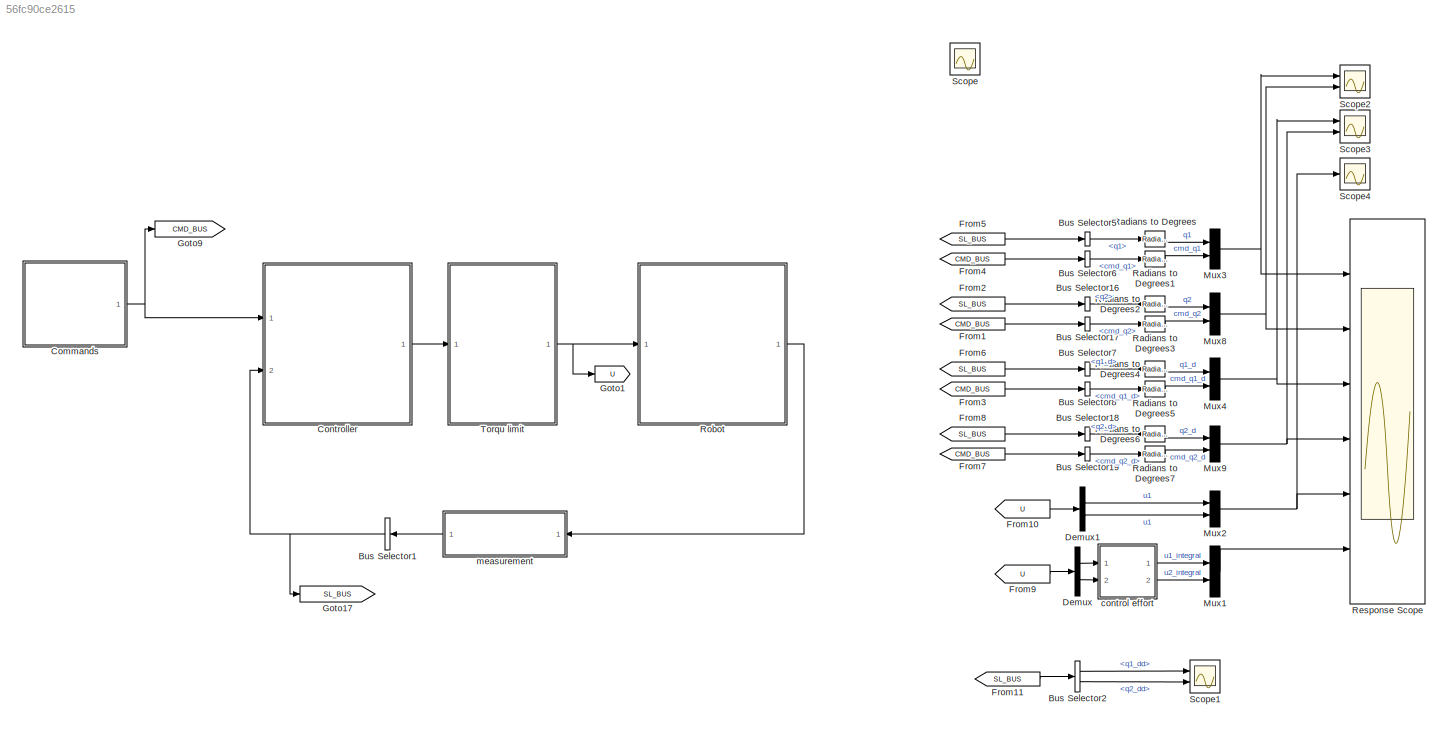
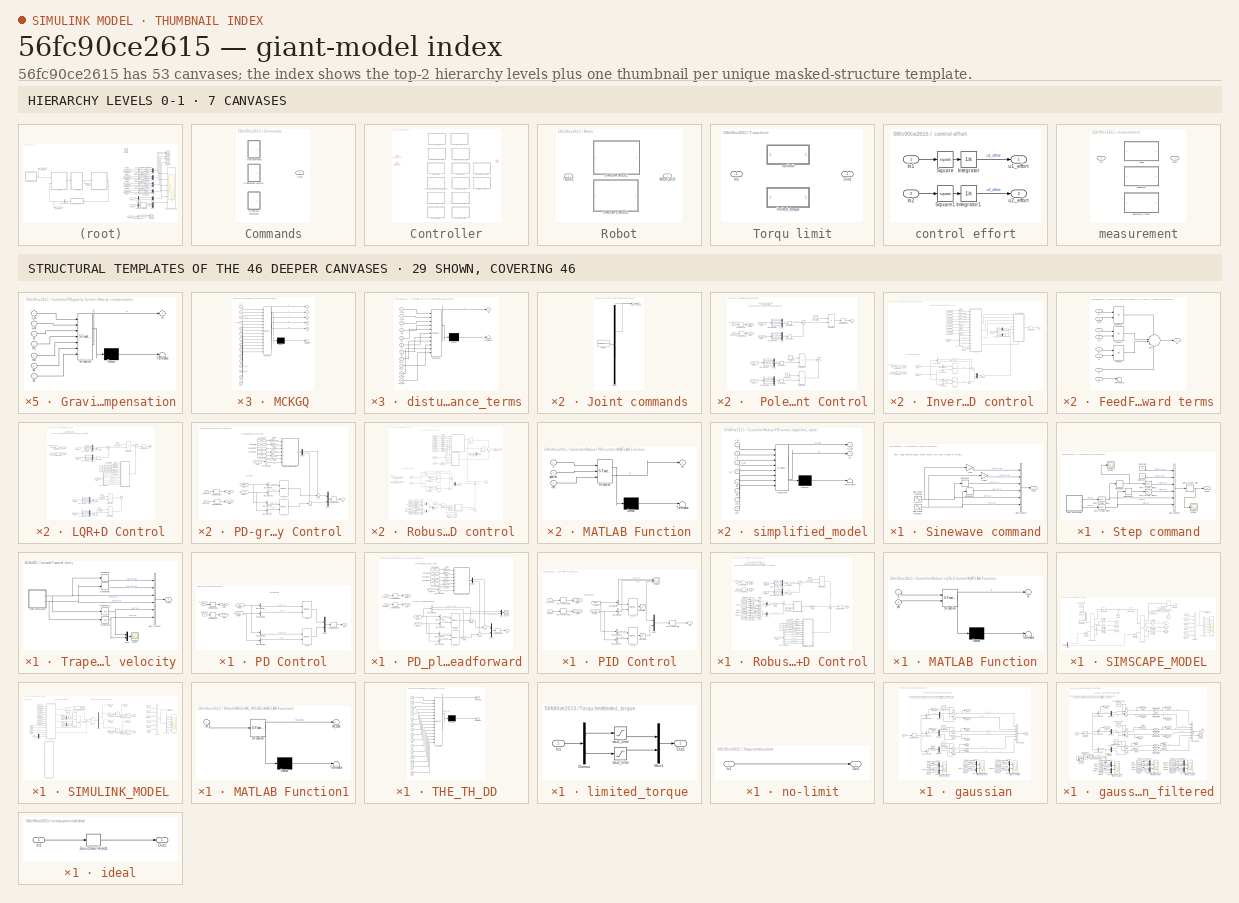
[diagram: thumbnail index - top-2 hierarchy levels (7 canvases) + 29 structural-template representatives of the remaining 46 canvases]
MODEL slx_56fc90ce2615
KIND model
CONFIG AbsTol = auto
CONFIG EnableMultiTasking = on
CONFIG FixedStep = auto
CONFIG MaxStep = 0.01
CONFIG MinStep = auto
CONFIG RelTol = 1e-5
CONFIG SampleTimeConstraint = Unconstrained
CONFIG SolverName = VariableStepAuto
CONFIG StartTime = 0.0
CONFIG StopTime = 20
BLOCK [BusSelector] Bus Selector1
  NameLocation = top
  OutputAsBus = on
  OutputSignals = q1_dd,q2_dd,q1_d,q2_d,q1,q2
  Ports = [1, 1]
BLOCK [BusSelector] Bus Selector16
  OutputSignals = q2
  Ports = [1, 1]
BLOCK [BusSelector] Bus Selector17
  OutputSignals = cmd_q2
  Ports = [1, 1]
BLOCK [BusSelector] Bus Selector18
  OutputSignals = q2_d
  Ports = [1, 1]
BLOCK [BusSelector] Bus Selector19
  OutputSignals = cmd_q2_d
  Ports = [1, 1]
BLOCK [BusSelector] Bus Selector2
  OutputSignals = q1_dd,q2_dd
  Ports = [1, 2]
BLOCK [BusSelector] Bus Selector5
  OutputSignals = q1
  Ports = [1, 1]
BLOCK [BusSelector] Bus Selector6
  OutputSignals = cmd_q1
  Ports = [1, 1]
BLOCK [BusSelector] Bus Selector7
  OutputSignals = q1_d
  Ports = [1, 1]
BLOCK [BusSelector] Bus Selector8
  OutputSignals = cmd_q1_d
  Ports = [1, 1]
BLOCK [SubSystem] Commands
  LabelModeActiveChoice = sinwave
  Ports = [0, 1]
  RequestExecContextInheritance = off
  Variant = on
  VariantControlMode = label
BLOCK [Outport] Commands/CMD
BLOCK [SubSystem] Commands/Sinewave command
  Ports = [0, 1]
  RequestExecContextInheritance = off
  VariantControl = sinwave
BLOCK [BusCreator] Commands/Sinewave command/Bus Creator
  DisplayOption = bar
  InheritFromInputs = on
  Inputs = 6
  Ports = [6, 1]
BLOCK [Outport] Commands/Sinewave command/CMD
BLOCK [Derivative] Commands/Sinewave command/Derivative
BLOCK [Derivative] Commands/Sinewave command/Derivative1
BLOCK [Gain] Commands/Sinewave command/Gain
  Gain = -1
BLOCK [Gain] Commands/Sinewave command/Gain1
  Gain = -1
BLOCK [Sin] Commands/Sinewave command/Sine Wave Function
  Ports = [0, 1]
  SampleTime = 0
BLOCK [Sin] Commands/Sinewave command/Sine Wave Function1
  Amplitude = 0.5
  Ports = [0, 1]
  SampleTime = 0
BLOCK [SubSystem] Commands/Step command
  Ports = [0, 1]
  RequestExecContextInheritance = off
  VariantControl = step
BLOCK [BusCreator] Commands/Step command/Bus Creator
  DisplayOption = bar
  InheritFromInputs = on
  Inputs = 6
  Ports = [6, 1]
BLOCK [Outport] Commands/Step command/CMD
BLOCK [Constant] Commands/Step command/Constant
  Value = 0
BLOCK [Constant] Commands/Step command/Constant1
  Value = 0
BLOCK [Derivative] Commands/Step command/Derivative
BLOCK [Derivative] Commands/Step command/Derivative1
BLOCK [Reference] Commands/Step command/First-Order Filter  REF=spsFirstOrderFilterLib/First-Order
Filter
  Ports = [1, 1]
  SourceBlock = spsFirstOrderFilterLib/First-Order\nFilter
  SourceProductBaseCode = PS
  SourceType = First-Order Filter
BLOCK [Reference] Commands/Step command/First-Order Filter1  REF=spsFirstOrderFilterLib/First-Order
Filter
  Ports = [1, 1]
  SourceBlock = spsFirstOrderFilterLib/First-Order\nFilter
  SourceProductBaseCode = PS
  SourceType = First-Order Filter
BLOCK [Reference] Commands/Step command/First-Order Filter2  REF=spsFirstOrderFilterLib/First-Order
Filter
  Ports = [1, 1]
  SourceBlock = spsFirstOrderFilterLib/First-Order\nFilter
  SourceProductBaseCode = PS
  SourceType = First-Order Filter
BLOCK [Reference] Commands/Step command/First-Order Filter3  REF=spsFirstOrderFilterLib/First-Order
Filter
  Ports = [1, 1]
  SourceBlock = spsFirstOrderFilterLib/First-Order\nFilter
  SourceProductBaseCode = PS
  SourceType = First-Order Filter
BLOCK [SubSystem] Commands/Step command/Joint commands
  ClipboardFcn = sigbuilder_block('clipboard');
  CloseFcn = sigbuilder_block('close');
  ContinueFcn = sigbuilder_block('continue');
  CopyFcn = sigbuilder_block('copy');
  DeleteFcn = sigbuilder_block('delete');
  LoadFcn = sigbuilder_block('load');
  MaskHideContents = on
  ModelCloseFcn = sigbuilder_block('modelClose');
  NameChangeFcn = sigbuilder_block('namechange');
  OpenFcn = sigbuilder_block('open',[0 36 1152 560.4 ]);
  PauseFcn = sigbuilder_block('pause');
  Ports = [0, 2]
  PreSaveFcn = sigbuilder_block('preSave');
  RequestExecContextInheritance = off
  StartFcn = sigbuilder_block('start');
  StopFcn = sigbuilder_block('stop');
  Tag = STV Subsys
BLOCK [Demux] Commands/Step command/Joint commands/Demux
  DisplayOption = none
  Outputs = 2
  Ports = [1, 2]
  Tag = STV Demux
BLOCK [FromWorkspace] Commands/Step command/Joint commands/FromWs
  Tag = STV FromWs
  VariableName = tuvar
BLOCK [Outport] Commands/Step command/Joint commands/cmd_q1
  Tag = STV Outport
BLOCK [Outport] Commands/Step command/Joint commands/cmd_q2
  Port = 2
  Tag = STV Outport
BLOCK [Scope] Commands/Step command/Scope
  Floating = off
  NumInputPorts = 1
  Ports = [1]
  ScopeSpecificationString = Simulink.scopes.TimeScopeBlockCfg('CurrentConfiguration', extmgr.ConfigurationSet(extmgr.Configuration('Core','General UI',true),extmgr.Configuration('Core','Source UI',true),extmgr.Configuration('Sources','WiredSimulink',true,'DataLoggingVariableName','ScopeData4'),extmgr.Configuration('Visuals','Time Domain',true,'SerializedDisplays',{struct('MinYLimReal','-0.19635','MaxYLimReal','1.76715','YLab...<+1367ch>
BLOCK [Scope] Commands/Step command/Scope1
  Floating = off
  NumInputPorts = 1
  Ports = [1]
  ScopeSpecificationString = Simulink.scopes.TimeScopeBlockCfg('CurrentConfiguration', extmgr.ConfigurationSet(extmgr.Configuration('Core','General UI',true),extmgr.Configuration('Core','Source UI',true),extmgr.Configuration('Sources','WiredSimulink',true,'DataLoggingVariableName','ScopeData2'),extmgr.Configuration('Visuals','Time Domain',true,'SerializedDisplays',{struct('MinYLimReal','0.02523','MaxYLimReal','0.16903','YLabe...<+1587ch>
BLOCK [ZeroOrderHold] Commands/Step command/Zero-Order Hold
  SampleTime = 0.001
BLOCK [SubSystem] Commands/Trapezoidal velocity
  Ports = [0, 1]
  RequestExecContextInheritance = off
  VariantControl = Trapezoidal velocity
BLOCK [BusCreator] Commands/Trapezoidal velocity/Bus Creator
  DisplayOption = bar
  InheritFromInputs = on
  Inputs = 6
  Ports = [6, 1]
BLOCK [Outport] Commands/Trapezoidal velocity/CMD
BLOCK [Derivative] Commands/Trapezoidal velocity/Derivative
BLOCK [Derivative] Commands/Trapezoidal velocity/Derivative2
BLOCK [Integrator] Commands/Trapezoidal velocity/Integrator
  Ports = [1, 1]
BLOCK [Integrator] Commands/Trapezoidal velocity/Integrator1
  Ports = [1, 1]
BLOCK [SubSystem] Commands/Trapezoidal velocity/Joint commands
  ClipboardFcn = sigbuilder_block('clipboard');
  CloseFcn = sigbuilder_block('close');
  ContinueFcn = sigbuilder_block('continue');
  CopyFcn = sigbuilder_block('copy');
  DeleteFcn = sigbuilder_block('delete');
  LoadFcn = sigbuilder_block('load');
  MaskHideContents = on
  ModelCloseFcn = sigbuilder_block('modelClose');
  NameChangeFcn = sigbuilder_block('namechange');
  OpenFcn = sigbuilder_block('open',[4.8 36 1142.4 525.6 ]);
  PauseFcn = sigbuilder_block('pause');
  Ports = [0, 2]
  PreSaveFcn = sigbuilder_block('preSave');
  RequestExecContextInheritance = off
  StartFcn = sigbuilder_block('start');
  StopFcn = sigbuilder_block('stop');
  Tag = STV Subsys
BLOCK [Demux] Commands/Trapezoidal velocity/Joint commands/Demux
  DisplayOption = none
  Outputs = 2
  Ports = [1, 2]
  Tag = STV Demux
BLOCK [FromWorkspace] Commands/Trapezoidal velocity/Joint commands/FromWs
  Tag = STV FromWs
  VariableName = tuvar
BLOCK [Outport] Commands/Trapezoidal velocity/Joint commands/cmd_q1_dot
  Tag = STV Outport
BLOCK [Outport] Commands/Trapezoidal velocity/Joint commands/cmd_q2_dot
  Port = 2
  Tag = STV Outport
BLOCK [Mux] Commands/Trapezoidal velocity/Mux
  DisplayOption = bar
  Inputs = 2
  Ports = [2, 1]
BLOCK [Scope] Commands/Trapezoidal velocity/Scope
  Floating = off
  NumInputPorts = 1
  Ports = [1]
  ScopeSpecificationString = Simulink.scopes.TimeScopeBlockCfg('CurrentConfiguration', extmgr.ConfigurationSet(extmgr.Configuration('Core','General UI',true),extmgr.Configuration('Core','Source UI',true),extmgr.Configuration('Sources','WiredSimulink',true,'DataLoggingVariableName','ScopeData10'),extmgr.Configuration('Visuals','Time Domain',true,'SerializedDisplays',{struct('MinYLimReal','-0.2','MaxYLimReal','1.8','YLabelReal'...<+1351ch>
BLOCK [SubSystem] Controller
  LabelModeActiveChoice = robust_PID_control
  Ports = [2, 1]
  PropagateVariantConditions = on
  RequestExecContextInheritance = off
  Variant = on
  VariantControlMode = label
BLOCK [SubSystem] Controller/ Pole Placement Control
  Ports = [2, 1]
  RequestExecContextInheritance = off
  VariantControl = PolePlacement_control
BLOCK [BusSelector] Controller/ Pole Placement Control/Bus Selector1
  Commented = on
  OutputSignals = q1,q2,q1_d,q2_d
  Ports = [1, 4]
BLOCK [BusSelector] Controller/ Pole Placement Control/Bus Selector2
  Commented = on
  OutputSignals = cmd_q1,cmd_q2,cmd_q1_d,cmd_q2_d
  Ports = [1, 4]
BLOCK [BusSelector] Controller/ Pole Placement Control/Bus Selector4
  OutputSignals = q1,q2,q1_d,q2_d
  Ports = [1, 4]
BLOCK [BusSelector] Controller/ Pole Placement Control/Bus Selector5
  OutputSignals = cmd_q1,cmd_q2,cmd_q1_d,cmd_q2_d
  Ports = [1, 4]
BLOCK [Constant] Controller/ Pole Placement Control/Constant1
  Value = Kpp
  VectorParams1D = off
BLOCK [Constant] Controller/ Pole Placement Control/Constant2
  Commented = on
  Value = Kpp
  VectorParams1D = off
BLOCK [Constant] Controller/ Pole Placement Control/Constant3
  Commented = on
  Value = Kr'
  VectorParams1D = off
BLOCK [From] Controller/ Pole Placement Control/From1
  Commented = on
  GotoTag = PLANT
BLOCK [From] Controller/ Pole Placement Control/From2
  Commented = on
  GotoTag = CMD
BLOCK [From] Controller/ Pole Placement Control/From3
  GotoTag = PLANT
BLOCK [From] Controller/ Pole Placement Control/From4
  GotoTag = CMD
BLOCK [Goto] Controller/ Pole Placement Control/Goto
  GotoTag = PLANT
BLOCK [Goto] Controller/ Pole Placement Control/Goto1
  GotoTag = CMD
BLOCK [Product] Controller/ Pole Placement Control/Matrix Multiply
  Multiplication = Matrix(*)
  Ports = [2, 1]
BLOCK [Product] Controller/ Pole Placement Control/Matrix Multiply1
  Commented = on
  Multiplication = Matrix(*)
  Ports = [2, 1]
BLOCK [Product] Controller/ Pole Placement Control/Matrix Multiply2
  Commented = on
  Multiplication = Matrix(*)
  Ports = [2, 1]
BLOCK [Mux] Controller/ Pole Placement Control/Mux
  DisplayOption = bar
  Ports = [4, 1]
BLOCK [Mux] Controller/ Pole Placement Control/Mux1
  DisplayOption = bar
  Ports = [4, 1]
BLOCK [Mux] Controller/ Pole Placement Control/Mux2
  Commented = on
  DisplayOption = bar
  Ports = [4, 1]
BLOCK [Mux] Controller/ Pole Placement Control/Mux3
  Commented = on
  DisplayOption = bar
  Ports = [4, 1]
BLOCK [Reshape] Controller/ Pole Placement Control/Reshape1
  OutputDimensionality = Column vector (2-D)
  Ports = [1, 1]
BLOCK [Reshape] Controller/ Pole Placement Control/Reshape2
  OutputDimensionality = Column vector (2-D)
  Ports = [1, 1]
BLOCK [Reshape] Controller/ Pole Placement Control/Reshape3
  Commented = on
  OutputDimensionality = Column vector (2-D)
  Ports = [1, 1]
BLOCK [Reshape] Controller/ Pole Placement Control/Reshape4
  Commented = on
  OutputDimensionality = Column vector (2-D)
  Ports = [1, 1]
BLOCK [Sum] Controller/ Pole Placement Control/Sum1
  Commented = on
  Inputs = |+-
  Ports = [2, 1]
BLOCK [Sum] Controller/ Pole Placement Control/Sum3
  Inputs = |+-
  Ports = [2, 1]
BLOCK [ZeroOrderHold] Controller/ Pole Placement Control/Zero-Order Hold1
  SampleTime = 0.001
BLOCK [ZeroOrderHold] Controller/ Pole Placement Control/Zero-Order Hold2
  SampleTime = 0.001
BLOCK [ZeroOrderHold] Controller/ Pole Placement Control/Zero-Order Hold3
  SampleTime = 0.001
BLOCK [Inport] Controller/ Pole Placement Control/plant_bus
  Port = 2
BLOCK [Inport] Controller/ Pole Placement Control/q_cmd_bus
BLOCK [Outport] Controller/ Pole Placement Control/tau
BLOCK [SubSystem] Controller/Inverse Dynamics PID control 
  Ports = [2, 1]
  RequestExecContextInheritance = off
  VariantControl = Inverse_dynamics_PID_control
BLOCK [BusSelector] Controller/Inverse Dynamics PID control /Bus Selector
  OutputSignals = cmd_q1
  Ports = [1, 1]
BLOCK [BusSelector] Controller/Inverse Dynamics PID control /Bus Selector1
  OutputSignals = q1
  Ports = [1, 1]
BLOCK [BusSelector] Controller/Inverse Dynamics PID control /Bus Selector2
  OutputSignals = q2
  Ports = [1, 1]
BLOCK [BusSelector] Controller/Inverse Dynamics PID control /Bus Selector3
  OutputSignals = cmd_q2
  Ports = [1, 1]
BLOCK [BusSelector] Controller/Inverse Dynamics PID control /Bus Selector4
  OutputSignals = q1,q2,q1_d,q2_d
  Ports = [1, 4]
BLOCK [BusSelector] Controller/Inverse Dynamics PID control /Bus Selector5
  OutputSignals = q1,q2,q1_d,q2_d
  Ports = [1, 4]
BLOCK [BusSelector] Controller/Inverse Dynamics PID control /Bus Selector7
  OutputSignals = cmd_q1_dd,cmd_q2_dd
  Ports = [1, 2]
BLOCK [Reference] Controller/Inverse Dynamics PID control /C_q1  REF=pid_lib/PID Controller (2DOF)
  Ports = [2, 1]
  SourceBlock = pid_lib/PID Controller (2DOF)
  SourceProductBaseCode = SL
  SourceType = PID 2dof
BLOCK [Reference] Controller/Inverse Dynamics PID control /C_q2  REF=pid_lib/PID Controller (2DOF)
  Ports = [2, 1]
  SourceBlock = pid_lib/PID Controller (2DOF)
  SourceProductBaseCode = SL
  SourceType = PID 2dof
BLOCK [Constant] Controller/Inverse Dynamics PID control /Constant
  Value = 0
BLOCK [Constant] Controller/Inverse Dynamics PID control /Constant15
  Value = b2
BLOCK [Constant] Controller/Inverse Dynamics PID control /Constant16
  Value = m1
BLOCK [Constant] Controller/Inverse Dynamics PID control /Constant17
  Value = g
BLOCK [Constant] Controller/Inverse Dynamics PID control /Constant18
  Value = m2
BLOCK [Constant] Controller/Inverse Dynamics PID control /Constant19
  Value = L1x
BLOCK [Constant] Controller/Inverse Dynamics PID control /Constant2
  Value = L2x
BLOCK [Constant] Controller/Inverse Dynamics PID control /Constant20
  Value = b1
BLOCK [Constant] Controller/Inverse Dynamics PID control /Constant6
  Value = L2y
BLOCK [Constant] Controller/Inverse Dynamics PID control /Constant7
  Value = L1y
BLOCK [SubSystem] Controller/Inverse Dynamics PID control /FeedForward terms
  PortSchema = {"entries":[{"content":{"sides":[{"content":{"connectorIds":["In1","In2","In3","In4","In5","In6"]},"type":"ConnectorPlacement.EquallySpacedRectSide","uuid":"236e7a2f-027c-4887-b3e9-bc0e11a59ec6"},{"content":{"connectorIds":["Out1"],"side":"RIGHT"},"type":"ConnectorPlacement.EquallySpacedRectSide","uuid":"0b727d96-7650-4ea0-95ac-5fb1bad7af10"},{"content":{"connectorIds":["In7"],"side":"TOP"},"type"...<+424ch>
  Ports = [8, 1]
  RequestExecContextInheritance = off
BLOCK [Inport] Controller/Inverse Dynamics PID control /FeedForward terms/C
  NameLocation = top
BLOCK [Inport] Controller/Inverse Dynamics PID control /FeedForward terms/F
  Port = 8
BLOCK [Inport] Controller/Inverse Dynamics PID control /FeedForward terms/G
  Port = 3
BLOCK [Inport] Controller/Inverse Dynamics PID control /FeedForward terms/K
  Port = 2
BLOCK [Inport] Controller/Inverse Dynamics PID control /FeedForward terms/M
  Port = 7
BLOCK [Product] Controller/Inverse Dynamics PID control /FeedForward terms/Product
  Multiplication = Matrix(*)
  Ports = [2, 1]
BLOCK [Product] Controller/Inverse Dynamics PID control /FeedForward terms/Product2
  Multiplication = Matrix(*)
  Ports = [2, 1]
BLOCK [Product] Controller/Inverse Dynamics PID control /FeedForward terms/Product3
  Multiplication = Matrix(*)
  Ports = [2, 1]
BLOCK [Outport] Controller/Inverse Dynamics PID control /FeedForward terms/Q
  NameLocation = top
BLOCK [Sum] Controller/Inverse Dynamics PID control /FeedForward terms/Sum
  Inputs = +|+|+|+
  Ports = [4, 1]
BLOCK [Terminator] Controller/Inverse Dynamics PID control /FeedForward terms/Terminator
BLOCK [Inport] Controller/Inverse Dynamics PID control /FeedForward terms/q
  Port = 4
BLOCK [Inport] Controller/Inverse Dynamics PID control /FeedForward terms/q_d
  Port = 5
BLOCK [Inport] Controller/Inverse Dynamics PID control /FeedForward terms/q_dd
  Port = 6
BLOCK [From] Controller/Inverse Dynamics PID control /From1
  GotoTag = PLANT
BLOCK [From] Controller/Inverse Dynamics PID control /From2
  GotoTag = CMD
BLOCK [From] Controller/Inverse Dynamics PID control /From3
  GotoTag = PLANT
BLOCK [From] Controller/Inverse Dynamics PID control /From5
  GotoTag = PLANT
BLOCK [Gain] Controller/Inverse Dynamics PID control /Gain1
  Gain = length_dev
BLOCK [Gain] Controller/Inverse Dynamics PID control /Gain10
  Gain = vis_dev
BLOCK [Gain] Controller/Inverse Dynamics PID control /Gain11
  Gain = vis_dev
BLOCK [Gain] Controller/Inverse Dynamics PID control /Gain12
  Gain = m_dev
BLOCK [Gain] Controller/Inverse Dynamics PID control /Gain14
  Gain = m_dev
BLOCK [Gain] Controller/Inverse Dynamics PID control /Gain2
  Gain = length_dev
BLOCK [Gain] Controller/Inverse Dynamics PID control /Gain3
  Gain = length_dev
BLOCK [Gain] Controller/Inverse Dynamics PID control /Gain9
  Gain = length_dev
BLOCK [Goto] Controller/Inverse Dynamics PID control /Goto
  GotoTag = PLANT
BLOCK [Goto] Controller/Inverse Dynamics PID control /Goto1
  GotoTag = CMD
BLOCK [SubSystem] Controller/Inverse Dynamics PID control /MCKGQ
  ErrorFcn = Stateflow.Translate.translate
  PermitHierarchicalResolution = ExplicitOnly
  Ports = [15, 5]
  RequestExecContextInheritance = off
  SFBlockType = MATLAB Function
  TreatAsAtomicUnit = on
BLOCK [Demux] Controller/Inverse Dynamics PID control /MCKGQ/ Demux 
  Outputs = 1
  Ports = [1, 1]
BLOCK [S-Function] Controller/Inverse Dynamics PID control /MCKGQ/ SFunction 
  EnableBusSupport = on
  FunctionName = sf_sfun
  PortCounts = [15 6]
  Ports = [15, 6]
  SFcnIsStateOwnerBlock = off
  SFunctionDeploymentMode = off
  Tag = Stateflow S-Function 9
BLOCK [Terminator] Controller/Inverse Dynamics PID control /MCKGQ/ Terminator 
BLOCK [Outport] Controller/Inverse Dynamics PID control /MCKGQ/C
  Port = 2
BLOCK [Outport] Controller/Inverse Dynamics PID control /MCKGQ/G
  Port = 4
BLOCK [Outport] Controller/Inverse Dynamics PID control /MCKGQ/K
  Port = 3
BLOCK [Inport] Controller/Inverse Dynamics PID control /MCKGQ/L_1x
BLOCK [Inport] Controller/Inverse Dynamics PID control /MCKGQ/L_1y
  Port = 2
BLOCK [Inport] Controller/Inverse Dynamics PID control /MCKGQ/L_2x
  Port = 3
BLOCK [Inport] Controller/Inverse Dynamics PID control /MCKGQ/L_2y
  Port = 4
BLOCK [Outport] Controller/Inverse Dynamics PID control /MCKGQ/M
BLOCK [Outport] Controller/Inverse Dynamics PID control /MCKGQ/Q
  Port = 5
BLOCK [Inport] Controller/Inverse Dynamics PID control /MCKGQ/b1
  Port = 5
BLOCK [Inport] Controller/Inverse Dynamics PID control /MCKGQ/b2
  Port = 6
BLOCK [Inport] Controller/Inverse Dynamics PID control /MCKGQ/g
  Port = 7
BLOCK [Inport] Controller/Inverse Dynamics PID control /MCKGQ/m1
  Port = 8
BLOCK [Inport] Controller/Inverse Dynamics PID control /MCKGQ/m2
  Port = 9
BLOCK [Inport] Controller/Inverse Dynamics PID control /MCKGQ/q1
  Port = 10
BLOCK [Inport] Controller/Inverse Dynamics PID control /MCKGQ/q1_D
  Port = 12
BLOCK [Inport] Controller/Inverse Dynamics PID control /MCKGQ/q2
  Port = 11
BLOCK [Inport] Controller/Inverse Dynamics PID control /MCKGQ/q2_D
  Port = 13
BLOCK [Inport] Controller/Inverse Dynamics PID control /MCKGQ/tau1
  Port = 14
BLOCK [Inport] Controller/Inverse Dynamics PID control /MCKGQ/tau2
  Port = 15
BLOCK [Mux] Controller/Inverse Dynamics PID control /Mux2
  DisplayOption = bar
  Inputs = 2
  Ports = [2, 1]
BLOCK [Mux] Controller/Inverse Dynamics PID control /Mux5
  DisplayOption = bar
  Inputs = 2
  Ports = [2, 1]
BLOCK [Mux] Controller/Inverse Dynamics PID control /Mux7
  DisplayOption = bar
  Inputs = 2
  Ports = [2, 1]
BLOCK [Reshape] Controller/Inverse Dynamics PID control /Reshape1
  OutputDimensionality = Column vector (2-D)
  Ports = [1, 1]
BLOCK [Reshape] Controller/Inverse Dynamics PID control /Reshape2
  OutputDimensionality = Column vector (2-D)
  Ports = [1, 1]
BLOCK [Reshape] Controller/Inverse Dynamics PID control /Reshape5
  OutputDimensionality = Column vector (2-D)
  Ports = [1, 1]
BLOCK [Sum] Controller/Inverse Dynamics PID control /Sum
  Inputs = ++|
  Ports = [2, 1]
BLOCK [Sum] Controller/Inverse Dynamics PID control /Sum1
  Inputs = ++|
  Ports = [2, 1]
BLOCK [ZeroOrderHold] Controller/Inverse Dynamics PID control /Zero-Order Hold1
  SampleTime = 0.001
BLOCK [ZeroOrderHold] Controller/Inverse Dynamics PID control /Zero-Order Hold2
  SampleTime = 0.001
BLOCK [ZeroOrderHold] Controller/Inverse Dynamics PID control /Zero-Order Hold3
  SampleTime = 0.001
BLOCK [Inport] Controller/Inverse Dynamics PID control /plant_bus
  Port = 2
BLOCK [Inport] Controller/Inverse Dynamics PID control /q_cmd_bus
BLOCK [Outport] Controller/Inverse Dynamics PID control /tau
BLOCK [SubSystem] Controller/Inverse Dynamics control 
  Ports = [2, 1]
  RequestExecContextInheritance = off
  VariantControl = Inverse_dynamics_control
BLOCK [BusSelector] Controller/Inverse Dynamics control /Bus Selector
  OutputSignals = cmd_q1
  Ports = [1, 1]
BLOCK [BusSelector] Controller/Inverse Dynamics control /Bus Selector1
  OutputSignals = q1
  Ports = [1, 1]
BLOCK [BusSelector] Controller/Inverse Dynamics control /Bus Selector2
  OutputSignals = q2
  Ports = [1, 1]
BLOCK [BusSelector] Controller/Inverse Dynamics control /Bus Selector3
  OutputSignals = cmd_q2
  Ports = [1, 1]
BLOCK [BusSelector] Controller/Inverse Dynamics control /Bus Selector4
  OutputSignals = q1,q2,q1_d,q2_d
  Ports = [1, 4]
BLOCK [BusSelector] Controller/Inverse Dynamics control /Bus Selector5
  OutputSignals = q1,q2,q1_d,q2_d
  Ports = [1, 4]
BLOCK [BusSelector] Controller/Inverse Dynamics control /Bus Selector7
  OutputSignals = cmd_q1_dd,cmd_q2_dd
  Ports = [1, 2]
BLOCK [Reference] Controller/Inverse Dynamics control /C_q1  REF=pid_lib/PID Controller (2DOF)
  Ports = [2, 1]
  SourceBlock = pid_lib/PID Controller (2DOF)
  SourceProductBaseCode = SL
  SourceType = PID 2dof
BLOCK [Reference] Controller/Inverse Dynamics control /C_q2  REF=pid_lib/PID Controller (2DOF)
  Ports = [2, 1]
  SourceBlock = pid_lib/PID Controller (2DOF)
  SourceProductBaseCode = SL
  SourceType = PID 2dof
BLOCK [Constant] Controller/Inverse Dynamics control /Constant
  Value = 0
BLOCK [Constant] Controller/Inverse Dynamics control /Constant15
  Value = b2
BLOCK [Constant] Controller/Inverse Dynamics control /Constant16
  Value = m1
BLOCK [Constant] Controller/Inverse Dynamics control /Constant17
  Value = g
BLOCK [Constant] Controller/Inverse Dynamics control /Constant18
  Value = m2
BLOCK [Constant] Controller/Inverse Dynamics control /Constant19
  Value = L1x
BLOCK [Constant] Controller/Inverse Dynamics control /Constant2
  Value = L2x
BLOCK [Constant] Controller/Inverse Dynamics control /Constant20
  Value = b1
BLOCK [Constant] Controller/Inverse Dynamics control /Constant6
  Value = L2y
BLOCK [Constant] Controller/Inverse Dynamics control /Constant7
  Value = L1y
BLOCK [SubSystem] Controller/Inverse Dynamics control /FeedForward terms
  PortSchema = {"entries":[{"content":{"sides":[{"content":{"connectorIds":["In1","In2","In3","In4","In5","In6"]},"type":"ConnectorPlacement.EquallySpacedRectSide","uuid":"236e7a2f-027c-4887-b3e9-bc0e11a59ec6"},{"content":{"connectorIds":["Out1"],"side":"RIGHT"},"type":"ConnectorPlacement.EquallySpacedRectSide","uuid":"0b727d96-7650-4ea0-95ac-5fb1bad7af10"},{"content":{"connectorIds":["In7"],"side":"TOP"},"type"...<+424ch>
  Ports = [8, 1]
  RequestExecContextInheritance = off
BLOCK [Inport] Controller/Inverse Dynamics control /FeedForward terms/C
  NameLocation = top
BLOCK [Inport] Controller/Inverse Dynamics control /FeedForward terms/F
  Port = 8
BLOCK [Inport] Controller/Inverse Dynamics control /FeedForward terms/G
  Port = 3
BLOCK [Inport] Controller/Inverse Dynamics control /FeedForward terms/K
  Port = 2
BLOCK [Inport] Controller/Inverse Dynamics control /FeedForward terms/M
  Port = 7
BLOCK [Product] Controller/Inverse Dynamics control /FeedForward terms/Product
  Multiplication = Matrix(*)
  Ports = [2, 1]
BLOCK [Product] Controller/Inverse Dynamics control /FeedForward terms/Product2
  Multiplication = Matrix(*)
  Ports = [2, 1]
BLOCK [Product] Controller/Inverse Dynamics control /FeedForward terms/Product3
  Multiplication = Matrix(*)
  Ports = [2, 1]
BLOCK [Outport] Controller/Inverse Dynamics control /FeedForward terms/Q
  NameLocation = top
BLOCK [Sum] Controller/Inverse Dynamics control /FeedForward terms/Sum
  Inputs = +|+|+|+
  Ports = [4, 1]
BLOCK [Terminator] Controller/Inverse Dynamics control /FeedForward terms/Terminator
BLOCK [Inport] Controller/Inverse Dynamics control /FeedForward terms/q
  Port = 4
BLOCK [Inport] Controller/Inverse Dynamics control /FeedForward terms/q_d
  Port = 5
BLOCK [Inport] Controller/Inverse Dynamics control /FeedForward terms/q_dd
  Port = 6
BLOCK [From] Controller/Inverse Dynamics control /From1
  GotoTag = PLANT
BLOCK [From] Controller/Inverse Dynamics control /From2
  GotoTag = CMD
BLOCK [From] Controller/Inverse Dynamics control /From3
  GotoTag = PLANT
BLOCK [From] Controller/Inverse Dynamics control /From5
  GotoTag = PLANT
BLOCK [Gain] Controller/Inverse Dynamics control /Gain1
  Gain = length_dev
BLOCK [Gain] Controller/Inverse Dynamics control /Gain10
  Gain = vis_dev
BLOCK [Gain] Controller/Inverse Dynamics control /Gain11
  Gain = vis_dev
BLOCK [Gain] Controller/Inverse Dynamics control /Gain12
  Gain = m_dev
BLOCK [Gain] Controller/Inverse Dynamics control /Gain14
  Gain = m_dev
BLOCK [Gain] Controller/Inverse Dynamics control /Gain2
  Gain = length_dev
BLOCK [Gain] Controller/Inverse Dynamics control /Gain3
  Gain = length_dev
BLOCK [Gain] Controller/Inverse Dynamics control /Gain9
  Gain = length_dev
BLOCK [Goto] Controller/Inverse Dynamics control /Goto
  GotoTag = PLANT
BLOCK [Goto] Controller/Inverse Dynamics control /Goto1
  GotoTag = CMD
BLOCK [SubSystem] Controller/Inverse Dynamics control /MCKGQ
  ErrorFcn = Stateflow.Translate.translate
  PermitHierarchicalResolution = ExplicitOnly
  Ports = [15, 5]
  RequestExecContextInheritance = off
  SFBlockType = MATLAB Function
  TreatAsAtomicUnit = on
BLOCK [Demux] Controller/Inverse Dynamics control /MCKGQ/ Demux 
  Outputs = 1
  Ports = [1, 1]
BLOCK [S-Function] Controller/Inverse Dynamics control /MCKGQ/ SFunction 
  EnableBusSupport = on
  FunctionName = sf_sfun
  PortCounts = [15 6]
  Ports = [15, 6]
  SFcnIsStateOwnerBlock = off
  SFunctionDeploymentMode = off
  Tag = Stateflow S-Function 5
BLOCK [Terminator] Controller/Inverse Dynamics control /MCKGQ/ Terminator 
BLOCK [Outport] Controller/Inverse Dynamics control /MCKGQ/C
  Port = 2
BLOCK [Outport] Controller/Inverse Dynamics control /MCKGQ/G
  Port = 4
BLOCK [Outport] Controller/Inverse Dynamics control /MCKGQ/K
  Port = 3
BLOCK [Inport] Controller/Inverse Dynamics control /MCKGQ/L_1x
BLOCK [Inport] Controller/Inverse Dynamics control /MCKGQ/L_1y
  Port = 2
BLOCK [Inport] Controller/Inverse Dynamics control /MCKGQ/L_2x
  Port = 3
BLOCK [Inport] Controller/Inverse Dynamics control /MCKGQ/L_2y
  Port = 4
BLOCK [Outport] Controller/Inverse Dynamics control /MCKGQ/M
BLOCK [Outport] Controller/Inverse Dynamics control /MCKGQ/Q
  Port = 5
BLOCK [Inport] Controller/Inverse Dynamics control /MCKGQ/b1
  Port = 5
BLOCK [Inport] Controller/Inverse Dynamics control /MCKGQ/b2
  Port = 6
BLOCK [Inport] Controller/Inverse Dynamics control /MCKGQ/g
  Port = 7
BLOCK [Inport] Controller/Inverse Dynamics control /MCKGQ/m1
  Port = 8
BLOCK [Inport] Controller/Inverse Dynamics control /MCKGQ/m2
  Port = 9
BLOCK [Inport] Controller/Inverse Dynamics control /MCKGQ/q1
  Port = 10
BLOCK [Inport] Controller/Inverse Dynamics control /MCKGQ/q1_D
  Port = 12
BLOCK [Inport] Controller/Inverse Dynamics control /MCKGQ/q2
  Port = 11
BLOCK [Inport] Controller/Inverse Dynamics control /MCKGQ/q2_D
  Port = 13
BLOCK [Inport] Controller/Inverse Dynamics control /MCKGQ/tau1
  Port = 14
BLOCK [Inport] Controller/Inverse Dynamics control /MCKGQ/tau2
  Port = 15
BLOCK [Mux] Controller/Inverse Dynamics control /Mux2
  DisplayOption = bar
  Inputs = 2
  Ports = [2, 1]
BLOCK [Mux] Controller/Inverse Dynamics control /Mux5
  DisplayOption = bar
  Inputs = 2
  Ports = [2, 1]
BLOCK [Mux] Controller/Inverse Dynamics control /Mux7
  DisplayOption = bar
  Inputs = 2
  Ports = [2, 1]
BLOCK [Reshape] Controller/Inverse Dynamics control /Reshape1
  OutputDimensionality = Column vector (2-D)
  Ports = [1, 1]
BLOCK [Reshape] Controller/Inverse Dynamics control /Reshape2
  OutputDimensionality = Column vector (2-D)
  Ports = [1, 1]
BLOCK [Reshape] Controller/Inverse Dynamics control /Reshape5
  OutputDimensionality = Column vector (2-D)
  Ports = [1, 1]
BLOCK [Sum] Controller/Inverse Dynamics control /Sum
  Inputs = ++|
  Ports = [2, 1]
BLOCK [Sum] Controller/Inverse Dynamics control /Sum1
  Inputs = ++|
  Ports = [2, 1]
BLOCK [ZeroOrderHold] Controller/Inverse Dynamics control /Zero-Order Hold1
  SampleTime = 0.001
BLOCK [ZeroOrderHold] Controller/Inverse Dynamics control /Zero-Order Hold2
  SampleTime = 0.001
BLOCK [ZeroOrderHold] Controller/Inverse Dynamics control /Zero-Order Hold3
  SampleTime = 0.001
BLOCK [Inport] Controller/Inverse Dynamics control /plant_bus
  Port = 2
BLOCK [Inport] Controller/Inverse Dynamics control /q_cmd_bus
BLOCK [Outport] Controller/Inverse Dynamics control /tau
BLOCK [SubSystem] Controller/LQR Control
  Ports = [2, 1]
  RequestExecContextInheritance = off
  VariantControl = LQR_control
BLOCK [BusSelector] Controller/LQR Control/Bus Selector1
  Commented = on
  OutputSignals = q1,q2,q1_d,q2_d
  Ports = [1, 4]
BLOCK [BusSelector] Controller/LQR Control/Bus Selector2
  Commented = on
  OutputSignals = cmd_q1,cmd_q2,cmd_q1_d,cmd_q2_d
  Ports = [1, 4]
BLOCK [BusSelector] Controller/LQR Control/Bus Selector4
  OutputSignals = q1,q2,q1_d,q2_d
  Ports = [1, 4]
BLOCK [BusSelector] Controller/LQR Control/Bus Selector5
  OutputSignals = cmd_q1,cmd_q2,cmd_q1_d,cmd_q2_d
  Ports = [1, 4]
BLOCK [Constant] Controller/LQR Control/Constant1
  Value = Klqr
  VectorParams1D = off
BLOCK [Constant] Controller/LQR Control/Constant2
  Commented = on
  Value = Klqr
  VectorParams1D = off
BLOCK [Constant] Controller/LQR Control/Constant3
  Commented = on
  Value = Kr_lqr'
  VectorParams1D = off
BLOCK [From] Controller/LQR Control/From1
  Commented = on
  GotoTag = PLANT
BLOCK [From] Controller/LQR Control/From2
  Commented = on
  GotoTag = CMD
BLOCK [From] Controller/LQR Control/From3
  GotoTag = PLANT
BLOCK [From] Controller/LQR Control/From4
  GotoTag = CMD
BLOCK [Goto] Controller/LQR Control/Goto
  GotoTag = PLANT
BLOCK [Goto] Controller/LQR Control/Goto1
  GotoTag = CMD
BLOCK [Product] Controller/LQR Control/Matrix Multiply
  Multiplication = Matrix(*)
  Ports = [2, 1]
BLOCK [Product] Controller/LQR Control/Matrix Multiply1
  Commented = on
  Multiplication = Matrix(*)
  Ports = [2, 1]
BLOCK [Product] Controller/LQR Control/Matrix Multiply2
  Commented = on
  Multiplication = Matrix(*)
  Ports = [2, 1]
BLOCK [Mux] Controller/LQR Control/Mux
  DisplayOption = bar
  Ports = [4, 1]
BLOCK [Mux] Controller/LQR Control/Mux1
  DisplayOption = bar
  Ports = [4, 1]
BLOCK [Mux] Controller/LQR Control/Mux2
  Commented = on
  DisplayOption = bar
  Ports = [4, 1]
BLOCK [Mux] Controller/LQR Control/Mux3
  Commented = on
  DisplayOption = bar
  Ports = [4, 1]
BLOCK [Reshape] Controller/LQR Control/Reshape1
  OutputDimensionality = Column vector (2-D)
  Ports = [1, 1]
BLOCK [Reshape] Controller/LQR Control/Reshape2
  OutputDimensionality = Column vector (2-D)
  Ports = [1, 1]
BLOCK [Reshape] Controller/LQR Control/Reshape3
  Commented = on
  OutputDimensionality = Column vector (2-D)
  Ports = [1, 1]
BLOCK [Reshape] Controller/LQR Control/Reshape4
  Commented = on
  OutputDimensionality = Column vector (2-D)
  Ports = [1, 1]
BLOCK [Sum] Controller/LQR Control/Sum1
  Commented = on
  Inputs = |+-
  Ports = [2, 1]
BLOCK [Sum] Controller/LQR Control/Sum3
  Inputs = |+-
  Ports = [2, 1]
BLOCK [ZeroOrderHold] Controller/LQR Control/Zero-Order Hold1
  SampleTime = 0.001
BLOCK [ZeroOrderHold] Controller/LQR Control/Zero-Order Hold2
  SampleTime = 0.001
BLOCK [ZeroOrderHold] Controller/LQR Control/Zero-Order Hold3
  SampleTime = 0.001
BLOCK [Inport] Controller/LQR Control/plant_bus
  Port = 2
BLOCK [Inport] Controller/LQR Control/q_cmd_bus
BLOCK [Outport] Controller/LQR Control/tau
BLOCK [SubSystem] Controller/LQR+D Control
  Ports = [2, 1]
  RequestExecContextInheritance = off
  VariantControl = LQR_D_control
BLOCK [BusSelector] Controller/LQR+D Control/Bus Selector1
  Commented = on
  OutputSignals = q1,q2,q1_d,q2_d
  Ports = [1, 4]
BLOCK [BusSelector] Controller/LQR+D Control/Bus Selector2
  Commented = on
  OutputSignals = cmd_q1,cmd_q2,cmd_q1_d,cmd_q2_d
  Ports = [1, 4]
BLOCK [BusSelector] Controller/LQR+D Control/Bus Selector6
  OutputSignals = q1,q2,q1_d,q2_d
  Ports = [1, 4]
BLOCK [BusSelector] Controller/LQR+D Control/Bus Selector7
  OutputSignals = cmd_q1,cmd_q2,cmd_q1_d,cmd_q2_d
  Ports = [1, 4]
BLOCK [BusSelector] Controller/LQR+D Control/Bus Selector8
  OutputSignals = q1,q2,q1_d,q2_d,q1_dd,q2_dd
  Ports = [1, 6]
BLOCK [Constant] Controller/LQR+D Control/Constant13
  Value = Klqr
  VectorParams1D = off
BLOCK [Constant] Controller/LQR+D Control/Constant2
  Commented = on
  Value = Klqr
  VectorParams1D = off
BLOCK [Constant] Controller/LQR+D Control/Constant3
  Commented = on
  Value = Kr_lqr'
  VectorParams1D = off
BLOCK [Constant] Controller/LQR+D Control/Constant4
  Value = m1
BLOCK [Constant] Controller/LQR+D Control/Constant5
  Value = g
BLOCK [Constant] Controller/LQR+D Control/Constant6
  Value = m2
BLOCK [Constant] Controller/LQR+D Control/Constant8
  Value = L1x
BLOCK [Constant] Controller/LQR+D Control/Constant9
  Value = L2x
BLOCK [From] Controller/LQR+D Control/From1
  Commented = on
  GotoTag = PLANT
BLOCK [From] Controller/LQR+D Control/From2
  Commented = on
  GotoTag = CMD
BLOCK [From] Controller/LQR+D Control/From5
  GotoTag = PLANT
BLOCK [From] Controller/LQR+D Control/From6
  GotoTag = CMD
BLOCK [From] Controller/LQR+D Control/From7
  GotoTag = PLANT
BLOCK [Gain] Controller/LQR+D Control/Gain1
  Gain = length_dev
BLOCK [Gain] Controller/LQR+D Control/Gain3
  Gain = m_dev
BLOCK [Gain] Controller/LQR+D Control/Gain4
  Gain = length_dev
BLOCK [Gain] Controller/LQR+D Control/Gain5
  Gain = m_dev
BLOCK [Goto] Controller/LQR+D Control/Goto
  GotoTag = PLANT
BLOCK [Goto] Controller/LQR+D Control/Goto1
  GotoTag = CMD
BLOCK [Product] Controller/LQR+D Control/Matrix Multiply1
  Commented = on
  Multiplication = Matrix(*)
  Ports = [2, 1]
BLOCK [Product] Controller/LQR+D Control/Matrix Multiply2
  Commented = on
  Multiplication = Matrix(*)
  Ports = [2, 1]
BLOCK [Product] Controller/LQR+D Control/Matrix Multiply3
  Multiplication = Matrix(*)
  Ports = [2, 1]
BLOCK [Mux] Controller/LQR+D Control/Mux2
  Commented = on
  DisplayOption = bar
  Ports = [4, 1]
BLOCK [Mux] Controller/LQR+D Control/Mux3
  Commented = on
  DisplayOption = bar
  Ports = [4, 1]
BLOCK [Mux] Controller/LQR+D Control/Mux4
  DisplayOption = bar
  Ports = [4, 1]
BLOCK [Mux] Controller/LQR+D Control/Mux5
  DisplayOption = bar
  Ports = [4, 1]
BLOCK [Reshape] Controller/LQR+D Control/Reshape3
  Commented = on
  OutputDimensionality = Column vector (2-D)
  Ports = [1, 1]
BLOCK [Reshape] Controller/LQR+D Control/Reshape4
  Commented = on
  OutputDimensionality = Column vector (2-D)
  Ports = [1, 1]
BLOCK [Reshape] Controller/LQR+D Control/Reshape5
  OutputDimensionality = Column vector (2-D)
  Ports = [1, 1]
BLOCK [Reshape] Controller/LQR+D Control/Reshape6
  OutputDimensionality = Column vector (2-D)
  Ports = [1, 1]
BLOCK [Sum] Controller/LQR+D Control/Sum1
  Commented = on
  Inputs = |+-
  Ports = [2, 1]
BLOCK [Sum] Controller/LQR+D Control/Sum4
  Inputs = |+-
  Ports = [2, 1]
BLOCK [Sum] Controller/LQR+D Control/Sum5
  Inputs = |++
  Ports = [2, 1]
BLOCK [ZeroOrderHold] Controller/LQR+D Control/Zero-Order Hold1
  SampleTime = 0.001
BLOCK [ZeroOrderHold] Controller/LQR+D Control/Zero-Order Hold2
  SampleTime = 0.001
BLOCK [ZeroOrderHold] Controller/LQR+D Control/Zero-Order Hold3
  SampleTime = 0.001
BLOCK [SubSystem] Controller/LQR+D Control/disturbance_terms
  ErrorFcn = Stateflow.Translate.translate
  PermitHierarchicalResolution = ExplicitOnly
  Ports = [11, 1]
  RequestExecContextInheritance = off
  SFBlockType = MATLAB Function
  TreatAsAtomicUnit = on
BLOCK [Demux] Controller/LQR+D Control/disturbance_terms/ Demux 
  Outputs = 1
  Ports = [1, 1]
BLOCK [S-Function] Controller/LQR+D Control/disturbance_terms/ SFunction 
  EnableBusSupport = on
  FunctionName = sf_sfun
  PortCounts = [11 2]
  Ports = [11, 2]
  SFcnIsStateOwnerBlock = off
  SFunctionDeploymentMode = off
  Tag = Stateflow S-Function 15
BLOCK [Terminator] Controller/LQR+D Control/disturbance_terms/ Terminator 
BLOCK [Inport] Controller/LQR+D Control/disturbance_terms/L_1x
BLOCK [Inport] Controller/LQR+D Control/disturbance_terms/L_2x
  Port = 2
BLOCK [Outport] Controller/LQR+D Control/disturbance_terms/d
BLOCK [Inport] Controller/LQR+D Control/disturbance_terms/g
  Port = 3
BLOCK [Inport] Controller/LQR+D Control/disturbance_terms/m1
  Port = 4
BLOCK [Inport] Controller/LQR+D Control/disturbance_terms/m2
  Port = 5
BLOCK [Inport] Controller/LQR+D Control/disturbance_terms/q1
  Port = 6
BLOCK [Inport] Controller/LQR+D Control/disturbance_terms/q1_D
  Port = 8
BLOCK [Inport] Controller/LQR+D Control/disturbance_terms/q1_DD
  Port = 10
BLOCK [Inport] Controller/LQR+D Control/disturbance_terms/q2
  Port = 7
BLOCK [Inport] Controller/LQR+D Control/disturbance_terms/q2_D
  Port = 9
BLOCK [Inport] Controller/LQR+D Control/disturbance_terms/q2_DD
  Port = 11
BLOCK [Inport] Controller/LQR+D Control/plant_bus
  Port = 2
BLOCK [Inport] Controller/LQR+D Control/q_cmd_bus
BLOCK [Outport] Controller/LQR+D Control/tau
BLOCK [SubSystem] Controller/PD Control
  Ports = [2, 1]
  RequestExecContextInheritance = off
  VariantControl = PD_control
BLOCK [BusSelector] Controller/PD Control/Bus Selector
  OutputSignals = cmd_q1
  Ports = [1, 1]
BLOCK [BusSelector] Controller/PD Control/Bus Selector1
  OutputSignals = q1
  Ports = [1, 1]
BLOCK [BusSelector] Controller/PD Control/Bus Selector2
  OutputSignals = q2
  Ports = [1, 1]
BLOCK [BusSelector] Controller/PD Control/Bus Selector3
  OutputSignals = cmd_q2
  Ports = [1, 1]
BLOCK [Reference] Controller/PD Control/C_q1  REF=pid_lib/PID Controller (2DOF)
  Ports = [2, 1]
  SourceBlock = pid_lib/PID Controller (2DOF)
  SourceProductBaseCode = SL
  SourceType = PID 2dof
BLOCK [Reference] Controller/PD Control/C_q2  REF=pid_lib/PID Controller (2DOF)
  Ports = [2, 1]
  SourceBlock = pid_lib/PID Controller (2DOF)
  SourceProductBaseCode = SL
  SourceType = PID 2dof
BLOCK [From] Controller/PD Control/From1
  GotoTag = PLANT
BLOCK [From] Controller/PD Control/From2
  GotoTag = CMD
BLOCK [Goto] Controller/PD Control/Goto
  GotoTag = PLANT
BLOCK [Goto] Controller/PD Control/Goto1
  GotoTag = CMD
BLOCK [Mux] Controller/PD Control/Mux2
  DisplayOption = bar
  Inputs = 2
  Ports = [2, 1]
BLOCK [ZeroOrderHold] Controller/PD Control/Zero-Order Hold1
  SampleTime = 0.001
BLOCK [ZeroOrderHold] Controller/PD Control/Zero-Order Hold2
  SampleTime = 0.001
BLOCK [ZeroOrderHold] Controller/PD Control/Zero-Order Hold3
  SampleTime = 0.001
BLOCK [Inport] Controller/PD Control/plant_bus
  Port = 2
BLOCK [Inport] Controller/PD Control/q_cmd_bus
BLOCK [Outport] Controller/PD Control/tau
BLOCK [SubSystem] Controller/PD-gravity Control 
  Ports = [2, 1]
  RequestExecContextInheritance = off
  VariantControl = PD_plus_gravity
BLOCK [BusSelector] Controller/PD-gravity Control /Bus Selector
  OutputSignals = cmd_q1
  Ports = [1, 1]
BLOCK [BusSelector] Controller/PD-gravity Control /Bus Selector1
  OutputSignals = q1
  Ports = [1, 1]
BLOCK [BusSelector] Controller/PD-gravity Control /Bus Selector2
  OutputSignals = q2
  Ports = [1, 1]
BLOCK [BusSelector] Controller/PD-gravity Control /Bus Selector3
  OutputSignals = cmd_q2
  Ports = [1, 1]
BLOCK [BusSelector] Controller/PD-gravity Control /Bus Selector5
  OutputSignals = q1,q2
  Ports = [1, 2]
BLOCK [Reference] Controller/PD-gravity Control /C_q1  REF=pid_lib/PID Controller (2DOF)
  Ports = [2, 1]
  SourceBlock = pid_lib/PID Controller (2DOF)
  SourceProductBaseCode = SL
  SourceType = PID 2dof
BLOCK [Reference] Controller/PD-gravity Control /C_q2  REF=pid_lib/PID Controller (2DOF)
  Ports = [2, 1]
  SourceBlock = pid_lib/PID Controller (2DOF)
  SourceProductBaseCode = SL
  SourceType = PID 2dof
BLOCK [Constant] Controller/PD-gravity Control /Constant16
  Value = m1
BLOCK [Constant] Controller/PD-gravity Control /Constant17
  Value = g
BLOCK [Constant] Controller/PD-gravity Control /Constant18
  Value = m2
BLOCK [Constant] Controller/PD-gravity Control /Constant19
  Value = L1x
BLOCK [Constant] Controller/PD-gravity Control /Constant2
  Value = L2x
BLOCK [Demux] Controller/PD-gravity Control /Demux
  Outputs = 2
  Ports = [1, 2]
BLOCK [From] Controller/PD-gravity Control /From1
  GotoTag = PLANT
BLOCK [From] Controller/PD-gravity Control /From2
  GotoTag = CMD
BLOCK [From] Controller/PD-gravity Control /From4
  GotoTag = PLANT
BLOCK [Gain] Controller/PD-gravity Control /Gain1
  Gain = length_dev
BLOCK [Gain] Controller/PD-gravity Control /Gain3
  Gain = length_dev
BLOCK [Gain] Controller/PD-gravity Control /Gain4
  Gain = m_dev
BLOCK [Gain] Controller/PD-gravity Control /Gain5
  Gain = m_dev
BLOCK [Goto] Controller/PD-gravity Control /Goto
  GotoTag = PLANT
BLOCK [Goto] Controller/PD-gravity Control /Goto1
  GotoTag = CMD
BLOCK [SubSystem] Controller/PD-gravity Control /Gravity compensation
  ErrorFcn = Stateflow.Translate.translate
  PermitHierarchicalResolution = ExplicitOnly
  Ports = [7, 1]
  RequestExecContextInheritance = off
  SFBlockType = MATLAB Function
  TreatAsAtomicUnit = on
BLOCK [Demux] Controller/PD-gravity Control /Gravity compensation/ Demux 
  Outputs = 1
  Ports = [1, 1]
BLOCK [S-Function] Controller/PD-gravity Control /Gravity compensation/ SFunction 
  EnableBusSupport = on
  FunctionName = sf_sfun
  PortCounts = [7 2]
  Ports = [7, 2]
  SFcnIsStateOwnerBlock = off
  SFunctionDeploymentMode = off
  Tag = Stateflow S-Function 7
BLOCK [Terminator] Controller/PD-gravity Control /Gravity compensation/ Terminator 
BLOCK [Outport] Controller/PD-gravity Control /Gravity compensation/G
BLOCK [Inport] Controller/PD-gravity Control /Gravity compensation/L_1x
BLOCK [Inport] Controller/PD-gravity Control /Gravity compensation/L_2x
  Port = 2
BLOCK [Inport] Controller/PD-gravity Control /Gravity compensation/g
  Port = 3
BLOCK [Inport] Controller/PD-gravity Control /Gravity compensation/m1
  Port = 4
BLOCK [Inport] Controller/PD-gravity Control /Gravity compensation/m2
  Port = 5
BLOCK [Inport] Controller/PD-gravity Control /Gravity compensation/q1
  Port = 6
BLOCK [Inport] Controller/PD-gravity Control /Gravity compensation/q2
  Port = 7
BLOCK [Mux] Controller/PD-gravity Control /Mux2
  DisplayOption = bar
  Inputs = 2
  Ports = [2, 1]
BLOCK [Sum] Controller/PD-gravity Control /Sum
  Inputs = ++|
  Ports = [2, 1]
BLOCK [Sum] Controller/PD-gravity Control /Sum1
  Inputs = ++|
  Ports = [2, 1]
BLOCK [ZeroOrderHold] Controller/PD-gravity Control /Zero-Order Hold1
  SampleTime = 0.001
BLOCK [ZeroOrderHold] Controller/PD-gravity Control /Zero-Order Hold2
  SampleTime = 0.001
BLOCK [ZeroOrderHold] Controller/PD-gravity Control /Zero-Order Hold3
  SampleTime = 0.001
BLOCK [Inport] Controller/PD-gravity Control /plant_bus
  Port = 2
BLOCK [Inport] Controller/PD-gravity Control /q_cmd_bus
BLOCK [Outport] Controller/PD-gravity Control /tau
BLOCK [SubSystem] Controller/PD_plus_gravity_plus_feadforward
  Ports = [2, 1]
  RequestExecContextInheritance = off
  VariantControl = PD_plus_gravity_plus_feadforward
BLOCK [BusSelector] Controller/PD_plus_gravity_plus_feadforward/Bus Selector
  OutputSignals = cmd_q1
  Ports = [1, 1]
BLOCK [BusSelector] Controller/PD_plus_gravity_plus_feadforward/Bus Selector1
  OutputSignals = q1
  Ports = [1, 1]
BLOCK [BusSelector] Controller/PD_plus_gravity_plus_feadforward/Bus Selector2
  OutputSignals = q2
  Ports = [1, 1]
BLOCK [BusSelector] Controller/PD_plus_gravity_plus_feadforward/Bus Selector3
  OutputSignals = cmd_q2
  Ports = [1, 1]
BLOCK [BusSelector] Controller/PD_plus_gravity_plus_feadforward/Bus Selector5
  OutputSignals = q1,q2
  Ports = [1, 2]
BLOCK [BusSelector] Controller/PD_plus_gravity_plus_feadforward/Bus Selector7
  OutputSignals = cmd_q1_dd,cmd_q2_dd
  Ports = [1, 2]
BLOCK [Reference] Controller/PD_plus_gravity_plus_feadforward/C_q1  REF=pid_lib/PID Controller (2DOF)
  Ports = [2, 1]
  SourceBlock = pid_lib/PID Controller (2DOF)
  SourceProductBaseCode = SL
  SourceType = PID 2dof
BLOCK [Reference] Controller/PD_plus_gravity_plus_feadforward/C_q2  REF=pid_lib/PID Controller (2DOF)
  Ports = [2, 1]
  SourceBlock = pid_lib/PID Controller (2DOF)
  SourceProductBaseCode = SL
  SourceType = PID 2dof
BLOCK [Constant] Controller/PD_plus_gravity_plus_feadforward/Constant16
  Value = m1
BLOCK [Constant] Controller/PD_plus_gravity_plus_feadforward/Constant17
  Value = g
BLOCK [Constant] Controller/PD_plus_gravity_plus_feadforward/Constant18
  Value = m2
BLOCK [Constant] Controller/PD_plus_gravity_plus_feadforward/Constant19
  Value = L1x
BLOCK [Constant] Controller/PD_plus_gravity_plus_feadforward/Constant2
  Value = L2x
BLOCK [Demux] Controller/PD_plus_gravity_plus_feadforward/Demux
  Outputs = 2
  Ports = [1, 2]
BLOCK [From] Controller/PD_plus_gravity_plus_feadforward/From1
  GotoTag = PLANT
BLOCK [From] Controller/PD_plus_gravity_plus_feadforward/From2
  GotoTag = CMD
BLOCK [From] Controller/PD_plus_gravity_plus_feadforward/From4
  GotoTag = PLANT
BLOCK [Gain] Controller/PD_plus_gravity_plus_feadforward/Gain1
  Gain = length_dev
BLOCK [Gain] Controller/PD_plus_gravity_plus_feadforward/Gain3
  Gain = length_dev
BLOCK [Gain] Controller/PD_plus_gravity_plus_feadforward/Gain4
  Gain = m_dev
BLOCK [Gain] Controller/PD_plus_gravity_plus_feadforward/Gain5
  Gain = m_dev
BLOCK [Goto] Controller/PD_plus_gravity_plus_feadforward/Goto
  GotoTag = PLANT
BLOCK [Goto] Controller/PD_plus_gravity_plus_feadforward/Goto1
  GotoTag = CMD
BLOCK [SubSystem] Controller/PD_plus_gravity_plus_feadforward/Gravity compensation
  ErrorFcn = Stateflow.Translate.translate
  PermitHierarchicalResolution = ExplicitOnly
  Ports = [7, 1]
  RequestExecContextInheritance = off
  SFBlockType = MATLAB Function
  TreatAsAtomicUnit = on
BLOCK [Demux] Controller/PD_plus_gravity_plus_feadforward/Gravity compensation/ Demux 
  Outputs = 1
  Ports = [1, 1]
BLOCK [S-Function] Controller/PD_plus_gravity_plus_feadforward/Gravity compensation/ SFunction 
  EnableBusSupport = on
  FunctionName = sf_sfun
  PortCounts = [7 2]
  Ports = [7, 2]
  SFcnIsStateOwnerBlock = off
  SFunctionDeploymentMode = off
  Tag = Stateflow S-Function 4
BLOCK [Terminator] Controller/PD_plus_gravity_plus_feadforward/Gravity compensation/ Terminator 
BLOCK [Outport] Controller/PD_plus_gravity_plus_feadforward/Gravity compensation/G
BLOCK [Inport] Controller/PD_plus_gravity_plus_feadforward/Gravity compensation/L_1x
BLOCK [Inport] Controller/PD_plus_gravity_plus_feadforward/Gravity compensation/L_2x
  Port = 2
BLOCK [Inport] Controller/PD_plus_gravity_plus_feadforward/Gravity compensation/g
  Port = 3
BLOCK [Inport] Controller/PD_plus_gravity_plus_feadforward/Gravity compensation/m1
  Port = 4
BLOCK [Inport] Controller/PD_plus_gravity_plus_feadforward/Gravity compensation/m2
  Port = 5
BLOCK [Inport] Controller/PD_plus_gravity_plus_feadforward/Gravity compensation/q1
  Port = 6
BLOCK [Inport] Controller/PD_plus_gravity_plus_feadforward/Gravity compensation/q2
  Port = 7
BLOCK [Mux] Controller/PD_plus_gravity_plus_feadforward/Mux
  DisplayOption = bar
  Inputs = 2
  Ports = [2, 1]
BLOCK [Mux] Controller/PD_plus_gravity_plus_feadforward/Mux2
  DisplayOption = bar
  Inputs = 2
  Ports = [2, 1]
BLOCK [Scope] Controller/PD_plus_gravity_plus_feadforward/Scope
  Floating = off
  NumInputPorts = 1
  Ports = [1]
  ScopeSpecificationString = Simulink.scopes.TimeScopeBlockCfg('CurrentConfiguration', extmgr.ConfigurationSet(extmgr.Configuration('Core','General UI',true),extmgr.Configuration('Core','Source UI',true),extmgr.Configuration('Sources','WiredSimulink',true,'DataLoggingVariableName','ScopeData11'),extmgr.Configuration('Visuals','Time Domain',true,'SerializedDisplays',{struct('MinYLimReal','-1.00000','MaxYLimReal','1.00000','YLa...<+1414ch>
BLOCK [Sum] Controller/PD_plus_gravity_plus_feadforward/Sum
  Inputs = ++|
  Ports = [2, 1]
BLOCK [Sum] Controller/PD_plus_gravity_plus_feadforward/Sum1
  Inputs = ++|
  Ports = [2, 1]
BLOCK [Sum] Controller/PD_plus_gravity_plus_feadforward/Sum2
  Inputs = ++|
  Ports = [2, 1]
BLOCK [Sum] Controller/PD_plus_gravity_plus_feadforward/Sum3
  Inputs = ++|
  Ports = [2, 1]
BLOCK [ZeroOrderHold] Controller/PD_plus_gravity_plus_feadforward/Zero-Order Hold1
  SampleTime = 0.001
BLOCK [ZeroOrderHold] Controller/PD_plus_gravity_plus_feadforward/Zero-Order Hold2
  SampleTime = 0.001
BLOCK [ZeroOrderHold] Controller/PD_plus_gravity_plus_feadforward/Zero-Order Hold3
  SampleTime = 0.001
BLOCK [Inport] Controller/PD_plus_gravity_plus_feadforward/plant_bus
  Port = 2
BLOCK [Inport] Controller/PD_plus_gravity_plus_feadforward/q_cmd_bus
BLOCK [Outport] Controller/PD_plus_gravity_plus_feadforward/tau
BLOCK [SubSystem] Controller/PID Control
  Ports = [2, 1]
  RequestExecContextInheritance = off
  VariantControl = PID_control
BLOCK [BusSelector] Controller/PID Control/Bus Selector
  OutputSignals = cmd_q1
  Ports = [1, 1]
BLOCK [BusSelector] Controller/PID Control/Bus Selector1
  OutputSignals = q1
  Ports = [1, 1]
BLOCK [BusSelector] Controller/PID Control/Bus Selector2
  OutputSignals = q2
  Ports = [1, 1]
BLOCK [BusSelector] Controller/PID Control/Bus Selector3
  OutputSignals = cmd_q2
  Ports = [1, 1]
BLOCK [Reference] Controller/PID Control/C_q1  REF=pid_lib/PID Controller (2DOF)
  Ports = [2, 1]
  SourceBlock = pid_lib/PID Controller (2DOF)
  SourceProductBaseCode = SL
  SourceType = PID 2dof
BLOCK [Reference] Controller/PID Control/C_q2  REF=pid_lib/PID Controller (2DOF)
  Ports = [2, 1]
  SourceBlock = pid_lib/PID Controller (2DOF)
  SourceProductBaseCode = SL
  SourceType = PID 2dof
BLOCK [From] Controller/PID Control/From1
  GotoTag = PLANT
BLOCK [From] Controller/PID Control/From2
  GotoTag = CMD
BLOCK [Goto] Controller/PID Control/Goto
  GotoTag = PLANT
BLOCK [Goto] Controller/PID Control/Goto1
  GotoTag = CMD
BLOCK [Mux] Controller/PID Control/Mux1
  DisplayOption = bar
  Inputs = 2
  Ports = [2, 1]
BLOCK [Saturate] Controller/PID Control/Saturation
  LowerLimit = -max_joint_torque1
  UpperLimit = max_joint_torque1
BLOCK [Saturate] Controller/PID Control/Saturation1
  LowerLimit = -max_joint_torque2
  UpperLimit = max_joint_torque2
BLOCK [Scope] Controller/PID Control/Scope
  Floating = off
  NumInputPorts = 3
  Ports = [3]
  ScopeSpecificationString = Simulink.scopes.TimeScopeBlockCfg('CurrentConfiguration', extmgr.ConfigurationSet(extmgr.Configuration('Core','General UI',true),extmgr.Configuration('Core','Source UI',true),extmgr.Configuration('Sources','WiredSimulink',true,'DataLoggingVariableName','ScopeData1'),extmgr.Configuration('Visuals','Time Domain',true,'SerializedDisplays',{struct('MinYLimReal','-0.19635','MaxYLimReal','1.76715','YLab...<+2795ch>
BLOCK [ZeroOrderHold] Controller/PID Control/Zero-Order Hold
  SampleTime = 0.001
BLOCK [ZeroOrderHold] Controller/PID Control/Zero-Order Hold1
  SampleTime = 0.001
BLOCK [ZeroOrderHold] Controller/PID Control/Zero-Order Hold2
  SampleTime = 0.001
BLOCK [Inport] Controller/PID Control/plant_bus
  Port = 2
BLOCK [Inport] Controller/PID Control/q_cmd_bus
BLOCK [Outport] Controller/PID Control/tau
BLOCK [SubSystem] Controller/PID-gravity Control
  Ports = [2, 1]
  RequestExecContextInheritance = off
  VariantControl = PID_plus_gravity
BLOCK [BusSelector] Controller/PID-gravity Control/Bus Selector
  OutputSignals = cmd_q1
  Ports = [1, 1]
BLOCK [BusSelector] Controller/PID-gravity Control/Bus Selector1
  OutputSignals = q1
  Ports = [1, 1]
BLOCK [BusSelector] Controller/PID-gravity Control/Bus Selector2
  OutputSignals = q2
  Ports = [1, 1]
BLOCK [BusSelector] Controller/PID-gravity Control/Bus Selector3
  OutputSignals = cmd_q2
  Ports = [1, 1]
BLOCK [BusSelector] Controller/PID-gravity Control/Bus Selector5
  OutputSignals = q1,q2
  Ports = [1, 2]
BLOCK [Reference] Controller/PID-gravity Control/C_q1  REF=pid_lib/PID Controller (2DOF)
  Ports = [2, 1]
  SourceBlock = pid_lib/PID Controller (2DOF)
  SourceProductBaseCode = SL
  SourceType = PID 2dof
BLOCK [Reference] Controller/PID-gravity Control/C_q2  REF=pid_lib/PID Controller (2DOF)
  Ports = [2, 1]
  SourceBlock = pid_lib/PID Controller (2DOF)
  SourceProductBaseCode = SL
  SourceType = PID 2dof
BLOCK [Constant] Controller/PID-gravity Control/Constant16
  Value = m1
BLOCK [Constant] Controller/PID-gravity Control/Constant17
  Value = g
BLOCK [Constant] Controller/PID-gravity Control/Constant18
  Value = m2
BLOCK [Constant] Controller/PID-gravity Control/Constant19
  Value = L1x
BLOCK [Constant] Controller/PID-gravity Control/Constant2
  Value = L2x
BLOCK [Demux] Controller/PID-gravity Control/Demux
  Outputs = 2
  Ports = [1, 2]
BLOCK [From] Controller/PID-gravity Control/From1
  GotoTag = PLANT
BLOCK [From] Controller/PID-gravity Control/From2
  GotoTag = CMD
BLOCK [From] Controller/PID-gravity Control/From4
  GotoTag = PLANT
BLOCK [Gain] Controller/PID-gravity Control/Gain1
  Gain = length_dev
BLOCK [Gain] Controller/PID-gravity Control/Gain3
  Gain = length_dev
BLOCK [Gain] Controller/PID-gravity Control/Gain4
  Gain = m_dev
BLOCK [Gain] Controller/PID-gravity Control/Gain5
  Gain = m_dev
BLOCK [Goto] Controller/PID-gravity Control/Goto
  GotoTag = PLANT
BLOCK [Goto] Controller/PID-gravity Control/Goto1
  GotoTag = CMD
BLOCK [SubSystem] Controller/PID-gravity Control/Gravity compensation
  ErrorFcn = Stateflow.Translate.translate
  PermitHierarchicalResolution = ExplicitOnly
  Ports = [7, 1]
  RequestExecContextInheritance = off
  SFBlockType = MATLAB Function
  TreatAsAtomicUnit = on
BLOCK [Demux] Controller/PID-gravity Control/Gravity compensation/ Demux 
  Outputs = 1
  Ports = [1, 1]
BLOCK [S-Function] Controller/PID-gravity Control/Gravity compensation/ SFunction 
  EnableBusSupport = on
  FunctionName = sf_sfun
  PortCounts = [7 2]
  Ports = [7, 2]
  SFcnIsStateOwnerBlock = off
  SFunctionDeploymentMode = off
  Tag = Stateflow S-Function 14
BLOCK [Terminator] Controller/PID-gravity Control/Gravity compensation/ Terminator 
BLOCK [Outport] Controller/PID-gravity Control/Gravity compensation/G
BLOCK [Inport] Controller/PID-gravity Control/Gravity compensation/L_1x
BLOCK [Inport] Controller/PID-gravity Control/Gravity compensation/L_2x
  Port = 2
BLOCK [Inport] Controller/PID-gravity Control/Gravity compensation/g
  Port = 3
BLOCK [Inport] Controller/PID-gravity Control/Gravity compensation/m1
  Port = 4
BLOCK [Inport] Controller/PID-gravity Control/Gravity compensation/m2
  Port = 5
BLOCK [Inport] Controller/PID-gravity Control/Gravity compensation/q1
  Port = 6
BLOCK [Inport] Controller/PID-gravity Control/Gravity compensation/q2
  Port = 7
BLOCK [Mux] Controller/PID-gravity Control/Mux2
  DisplayOption = bar
  Inputs = 2
  Ports = [2, 1]
BLOCK [Sum] Controller/PID-gravity Control/Sum
  Inputs = ++|
  Ports = [2, 1]
BLOCK [Sum] Controller/PID-gravity Control/Sum1
  Inputs = ++|
  Ports = [2, 1]
BLOCK [ZeroOrderHold] Controller/PID-gravity Control/Zero-Order Hold1
  SampleTime = 0.001
BLOCK [ZeroOrderHold] Controller/PID-gravity Control/Zero-Order Hold2
  SampleTime = 0.001
BLOCK [ZeroOrderHold] Controller/PID-gravity Control/Zero-Order Hold3
  SampleTime = 0.001
BLOCK [Inport] Controller/PID-gravity Control/plant_bus
  Port = 2
BLOCK [Inport] Controller/PID-gravity Control/q_cmd_bus
BLOCK [Outport] Controller/PID-gravity Control/tau
BLOCK [SubSystem] Controller/Pole Placement+D Control
  Ports = [2, 1]
  RequestExecContextInheritance = off
  VariantControl = PolePlacement_D_control
BLOCK [BusSelector] Controller/Pole Placement+D Control/Bus Selector1
  Commented = on
  OutputSignals = q1,q2,q1_d,q2_d
  Ports = [1, 4]
BLOCK [BusSelector] Controller/Pole Placement+D Control/Bus Selector2
  Commented = on
  OutputSignals = cmd_q1,cmd_q2,cmd_q1_d,cmd_q2_d
  Ports = [1, 4]
BLOCK [BusSelector] Controller/Pole Placement+D Control/Bus Selector6
  OutputSignals = q1,q2,q1_d,q2_d
  Ports = [1, 4]
BLOCK [BusSelector] Controller/Pole Placement+D Control/Bus Selector7
  OutputSignals = cmd_q1,cmd_q2,cmd_q1_d,cmd_q2_d
  Ports = [1, 4]
BLOCK [BusSelector] Controller/Pole Placement+D Control/Bus Selector8
  OutputSignals = q1,q2,q1_d,q2_d,q1_dd,q2_dd
  Ports = [1, 6]
BLOCK [Constant] Controller/Pole Placement+D Control/Constant1
  Commented = on
  Value = Kr'
  VectorParams1D = off
BLOCK [Constant] Controller/Pole Placement+D Control/Constant13
  Value = Kpp
  VectorParams1D = off
BLOCK [Constant] Controller/Pole Placement+D Control/Constant2
  Commented = on
  Value = Kpp
  VectorParams1D = off
BLOCK [Constant] Controller/Pole Placement+D Control/Constant3
  Value = m1
BLOCK [Constant] Controller/Pole Placement+D Control/Constant4
  Value = g
BLOCK [Constant] Controller/Pole Placement+D Control/Constant5
  Value = m2
BLOCK [Constant] Controller/Pole Placement+D Control/Constant8
  Value = L1x
BLOCK [Constant] Controller/Pole Placement+D Control/Constant9
  Value = L2x
BLOCK [From] Controller/Pole Placement+D Control/From1
  Commented = on
  GotoTag = PLANT
BLOCK [From] Controller/Pole Placement+D Control/From2
  Commented = on
  GotoTag = CMD
BLOCK [From] Controller/Pole Placement+D Control/From5
  GotoTag = PLANT
BLOCK [From] Controller/Pole Placement+D Control/From6
  GotoTag = CMD
BLOCK [From] Controller/Pole Placement+D Control/From7
  GotoTag = PLANT
BLOCK [Gain] Controller/Pole Placement+D Control/Gain1
  Gain = length_dev
BLOCK [Gain] Controller/Pole Placement+D Control/Gain3
  Gain = m_dev
BLOCK [Gain] Controller/Pole Placement+D Control/Gain4
  Gain = length_dev
BLOCK [Gain] Controller/Pole Placement+D Control/Gain5
  Gain = m_dev
BLOCK [Goto] Controller/Pole Placement+D Control/Goto2
  GotoTag = PLANT
BLOCK [Goto] Controller/Pole Placement+D Control/Goto3
  GotoTag = CMD
BLOCK [Product] Controller/Pole Placement+D Control/Matrix Multiply1
  Multiplication = Matrix(*)
  Ports = [2, 1]
BLOCK [Product] Controller/Pole Placement+D Control/Matrix Multiply2
  Commented = on
  Multiplication = Matrix(*)
  Ports = [2, 1]
BLOCK [Product] Controller/Pole Placement+D Control/Matrix Multiply3
  Commented = on
  Multiplication = Matrix(*)
  Ports = [2, 1]
BLOCK [Mux] Controller/Pole Placement+D Control/Mux2
  Commented = on
  DisplayOption = bar
  Ports = [4, 1]
BLOCK [Mux] Controller/Pole Placement+D Control/Mux3
  Commented = on
  DisplayOption = bar
  Ports = [4, 1]
BLOCK [Mux] Controller/Pole Placement+D Control/Mux4
  DisplayOption = bar
  Ports = [4, 1]
BLOCK [Mux] Controller/Pole Placement+D Control/Mux5
  DisplayOption = bar
  Ports = [4, 1]
BLOCK [Reshape] Controller/Pole Placement+D Control/Reshape1
  Commented = on
  OutputDimensionality = Column vector (2-D)
  Ports = [1, 1]
BLOCK [Reshape] Controller/Pole Placement+D Control/Reshape2
  Commented = on
  OutputDimensionality = Column vector (2-D)
  Ports = [1, 1]
BLOCK [Reshape] Controller/Pole Placement+D Control/Reshape3
  OutputDimensionality = Column vector (2-D)
  Ports = [1, 1]
BLOCK [Reshape] Controller/Pole Placement+D Control/Reshape4
  OutputDimensionality = Column vector (2-D)
  Ports = [1, 1]
BLOCK [Sum] Controller/Pole Placement+D Control/Sum1
  Commented = on
  Inputs = |+-
  Ports = [2, 1]
BLOCK [Sum] Controller/Pole Placement+D Control/Sum4
  Inputs = |+-
  Ports = [2, 1]
BLOCK [Sum] Controller/Pole Placement+D Control/Sum5
  Inputs = |++
  Ports = [2, 1]
BLOCK [ZeroOrderHold] Controller/Pole Placement+D Control/Zero-Order Hold1
  SampleTime = 0.001
BLOCK [ZeroOrderHold] Controller/Pole Placement+D Control/Zero-Order Hold2
  SampleTime = 0.001
BLOCK [ZeroOrderHold] Controller/Pole Placement+D Control/Zero-Order Hold3
  SampleTime = 0.001
BLOCK [SubSystem] Controller/Pole Placement+D Control/disturbance_terms
  ErrorFcn = Stateflow.Translate.translate
  PermitHierarchicalResolution = ExplicitOnly
  Ports = [11, 1]
  RequestExecContextInheritance = off
  SFBlockType = MATLAB Function
  TreatAsAtomicUnit = on
BLOCK [Demux] Controller/Pole Placement+D Control/disturbance_terms/ Demux 
  Outputs = 1
  Ports = [1, 1]
BLOCK [S-Function] Controller/Pole Placement+D Control/disturbance_terms/ SFunction 
  EnableBusSupport = on
  FunctionName = sf_sfun
  PortCounts = [11 2]
  Ports = [11, 2]
  SFcnIsStateOwnerBlock = off
  SFunctionDeploymentMode = off
  Tag = Stateflow S-Function 19
BLOCK [Terminator] Controller/Pole Placement+D Control/disturbance_terms/ Terminator 
BLOCK [Inport] Controller/Pole Placement+D Control/disturbance_terms/L_1x
BLOCK [Inport] Controller/Pole Placement+D Control/disturbance_terms/L_2x
  Port = 2
BLOCK [Outport] Controller/Pole Placement+D Control/disturbance_terms/d
BLOCK [Inport] Controller/Pole Placement+D Control/disturbance_terms/g
  Port = 3
BLOCK [Inport] Controller/Pole Placement+D Control/disturbance_terms/m1
  Port = 4
BLOCK [Inport] Controller/Pole Placement+D Control/disturbance_terms/m2
  Port = 5
BLOCK [Inport] Controller/Pole Placement+D Control/disturbance_terms/q1
  Port = 6
BLOCK [Inport] Controller/Pole Placement+D Control/disturbance_terms/q1_D
  Port = 8
BLOCK [Inport] Controller/Pole Placement+D Control/disturbance_terms/q1_DD
  Port = 10
BLOCK [Inport] Controller/Pole Placement+D Control/disturbance_terms/q2
  Port = 7
BLOCK [Inport] Controller/Pole Placement+D Control/disturbance_terms/q2_D
  Port = 9
BLOCK [Inport] Controller/Pole Placement+D Control/disturbance_terms/q2_DD
  Port = 11
BLOCK [Inport] Controller/Pole Placement+D Control/plant_bus
  Port = 2
BLOCK [Inport] Controller/Pole Placement+D Control/q_cmd_bus
BLOCK [Outport] Controller/Pole Placement+D Control/tau
BLOCK [SubSystem] Controller/Robust LQR+D Control
  Ports = [2, 1]
  RequestExecContextInheritance = off
  VariantControl = Robust_LQR_D_control
BLOCK [BusSelector] Controller/Robust LQR+D Control/Bus Selector1
  OutputSignals = cmd_q1
  Ports = [1, 1]
BLOCK [BusSelector] Controller/Robust LQR+D Control/Bus Selector10
  OutputSignals = q2
  Ports = [1, 1]
BLOCK [BusSelector] Controller/Robust LQR+D Control/Bus Selector11
  OutputSignals = q2_d
  Ports = [1, 1]
BLOCK [BusSelector] Controller/Robust LQR+D Control/Bus Selector12
  OutputSignals = cmd_q1_d
  Ports = [1, 1]
BLOCK [BusSelector] Controller/Robust LQR+D Control/Bus Selector13
  OutputSignals = q1_d
  Ports = [1, 1]
BLOCK [BusSelector] Controller/Robust LQR+D Control/Bus Selector14
  OutputSignals = cmd_q2_d
  Ports = [1, 1]
BLOCK [BusSelector] Controller/Robust LQR+D Control/Bus Selector2
  OutputSignals = q1
  Ports = [1, 1]
BLOCK [BusSelector] Controller/Robust LQR+D Control/Bus Selector6
  OutputSignals = q1,q2,q1_d,q2_d
  Ports = [1, 4]
BLOCK [BusSelector] Controller/Robust LQR+D Control/Bus Selector7
  OutputSignals = cmd_q1,cmd_q2,cmd_q1_d,cmd_q2_d
  Ports = [1, 4]
BLOCK [BusSelector] Controller/Robust LQR+D Control/Bus Selector8
  OutputSignals = q1,q2,q1_d,q2_d,q1_dd,q2_dd
  Ports = [1, 6]
BLOCK [BusSelector] Controller/Robust LQR+D Control/Bus Selector9
  OutputSignals = cmd_q2
  Ports = [1, 1]
BLOCK [Constant] Controller/Robust LQR+D Control/Constant13
  Value = Klqr
  VectorParams1D = off
BLOCK [Constant] Controller/Robust LQR+D Control/Constant2
  Value = phi_sm
BLOCK [Constant] Controller/Robust LQR+D Control/Constant4
  Value = m1
BLOCK [Constant] Controller/Robust LQR+D Control/Constant5
  Value = g
BLOCK [Constant] Controller/Robust LQR+D Control/Constant6
  Value = m2
BLOCK [Constant] Controller/Robust LQR+D Control/Constant8
  Value = L1x
BLOCK [Constant] Controller/Robust LQR+D Control/Constant9
  Value = L2x
BLOCK [From] Controller/Robust LQR+D Control/From1
  GotoTag = PLANT
BLOCK [From] Controller/Robust LQR+D Control/From10
  GotoTag = PLANT
BLOCK [From] Controller/Robust LQR+D Control/From11
  GotoTag = CMD
BLOCK [From] Controller/Robust LQR+D Control/From12
  GotoTag = PLANT
BLOCK [From] Controller/Robust LQR+D Control/From2
  GotoTag = CMD
BLOCK [From] Controller/Robust LQR+D Control/From4
  GotoTag = CMD
BLOCK [From] Controller/Robust LQR+D Control/From5
  GotoTag = PLANT
BLOCK [From] Controller/Robust LQR+D Control/From6
  GotoTag = CMD
BLOCK [From] Controller/Robust LQR+D Control/From7
  GotoTag = PLANT
BLOCK [From] Controller/Robust LQR+D Control/From8
  GotoTag = PLANT
BLOCK [From] Controller/Robust LQR+D Control/From9
  GotoTag = CMD
BLOCK [Gain] Controller/Robust LQR+D Control/Gain
  Gain = Ksm
BLOCK [Gain] Controller/Robust LQR+D Control/Gain1
  Gain = length_dev
BLOCK [Gain] Controller/Robust LQR+D Control/Gain3
  Gain = m_dev
BLOCK [Gain] Controller/Robust LQR+D Control/Gain4
  Gain = length_dev
BLOCK [Gain] Controller/Robust LQR+D Control/Gain5
  Gain = m_dev
BLOCK [Gain] Controller/Robust LQR+D Control/Gain6
  Gain = gs
BLOCK [Goto] Controller/Robust LQR+D Control/Goto
  GotoTag = PLANT
BLOCK [Goto] Controller/Robust LQR+D Control/Goto1
  GotoTag = CMD
BLOCK [SubSystem] Controller/Robust LQR+D Control/MATLAB Function
  ErrorFcn = Stateflow.Translate.translate
  PermitHierarchicalResolution = ExplicitOnly
  Ports = [2, 1]
  RequestExecContextInheritance = off
  SFBlockType = MATLAB Function
  TreatAsAtomicUnit = on
BLOCK [Demux] Controller/Robust LQR+D Control/MATLAB Function/ Demux 
  Outputs = 1
  Ports = [1, 1]
BLOCK [S-Function] Controller/Robust LQR+D Control/MATLAB Function/ SFunction 
  EnableBusSupport = on
  FunctionName = sf_sfun
  PortCounts = [2 2]
  Ports = [2, 2]
  SFcnIsStateOwnerBlock = off
  SFunctionDeploymentMode = off
  Tag = Stateflow S-Function 17
BLOCK [Terminator] Controller/Robust LQR+D Control/MATLAB Function/ Terminator 
BLOCK [Inport] Controller/Robust LQR+D Control/MATLAB Function/S
BLOCK [Inport] Controller/Robust LQR+D Control/MATLAB Function/phi
  Port = 2
BLOCK [Outport] Controller/Robust LQR+D Control/MATLAB Function/w
BLOCK [Product] Controller/Robust LQR+D Control/Matrix Multiply3
  Multiplication = Matrix(*)
  Ports = [2, 1]
BLOCK [Sum] Controller/Robust LQR+D Control/Minus
  IconShape = rectangular
  Inputs = +-
  Ports = [2, 1]
BLOCK [Sum] Controller/Robust LQR+D Control/Minus1
  IconShape = rectangular
  Inputs = +-
  Ports = [2, 1]
BLOCK [Sum] Controller/Robust LQR+D Control/Minus2
  IconShape = rectangular
  Inputs = +-
  Ports = [2, 1]
BLOCK [Sum] Controller/Robust LQR+D Control/Minus3
  IconShape = rectangular
  Inputs = +-
  Ports = [2, 1]
BLOCK [Mux] Controller/Robust LQR+D Control/Mux2
  DisplayOption = bar
  Inputs = 2
  Ports = [2, 1]
BLOCK [Mux] Controller/Robust LQR+D Control/Mux3
  DisplayOption = bar
  Inputs = 2
  Ports = [2, 1]
BLOCK [Mux] Controller/Robust LQR+D Control/Mux4
  DisplayOption = bar
  Ports = [4, 1]
BLOCK [Mux] Controller/Robust LQR+D Control/Mux5
  DisplayOption = bar
  Ports = [4, 1]
BLOCK [Reshape] Controller/Robust LQR+D Control/Reshape5
  OutputDimensionality = Column vector (2-D)
  Ports = [1, 1]
BLOCK [Reshape] Controller/Robust LQR+D Control/Reshape6
  OutputDimensionality = Column vector (2-D)
  Ports = [1, 1]
BLOCK [Sum] Controller/Robust LQR+D Control/Sum
  Inputs = |++
  Ports = [2, 1]
BLOCK [Sum] Controller/Robust LQR+D Control/Sum4
  Inputs = |+-
  Ports = [2, 1]
BLOCK [Sum] Controller/Robust LQR+D Control/Sum5
  Inputs = +++
  Ports = [3, 1]
BLOCK [ZeroOrderHold] Controller/Robust LQR+D Control/Zero-Order Hold1
  SampleTime = 0.001
BLOCK [ZeroOrderHold] Controller/Robust LQR+D Control/Zero-Order Hold2
  SampleTime = 0.001
BLOCK [ZeroOrderHold] Controller/Robust LQR+D Control/Zero-Order Hold3
  SampleTime = 0.001
BLOCK [SubSystem] Controller/Robust LQR+D Control/disturbance_terms
  ErrorFcn = Stateflow.Translate.translate
  PermitHierarchicalResolution = ExplicitOnly
  Ports = [11, 1]
  RequestExecContextInheritance = off
  SFBlockType = MATLAB Function
  TreatAsAtomicUnit = on
BLOCK [Demux] Controller/Robust LQR+D Control/disturbance_terms/ Demux 
  Outputs = 1
  Ports = [1, 1]
BLOCK [S-Function] Controller/Robust LQR+D Control/disturbance_terms/ SFunction 
  EnableBusSupport = on
  FunctionName = sf_sfun
  PortCounts = [11 2]
  Ports = [11, 2]
  SFcnIsStateOwnerBlock = off
  SFunctionDeploymentMode = off
  Tag = Stateflow S-Function 16
BLOCK [Terminator] Controller/Robust LQR+D Control/disturbance_terms/ Terminator 
BLOCK [Inport] Controller/Robust LQR+D Control/disturbance_terms/L_1x
BLOCK [Inport] Controller/Robust LQR+D Control/disturbance_terms/L_2x
  Port = 2
BLOCK [Outport] Controller/Robust LQR+D Control/disturbance_terms/d
BLOCK [Inport] Controller/Robust LQR+D Control/disturbance_terms/g
  Port = 3
BLOCK [Inport] Controller/Robust LQR+D Control/disturbance_terms/m1
  Port = 4
BLOCK [Inport] Controller/Robust LQR+D Control/disturbance_terms/m2
  Port = 5
BLOCK [Inport] Controller/Robust LQR+D Control/disturbance_terms/q1
  Port = 6
BLOCK [Inport] Controller/Robust LQR+D Control/disturbance_terms/q1_D
  Port = 8
BLOCK [Inport] Controller/Robust LQR+D Control/disturbance_terms/q1_DD
  Port = 10
BLOCK [Inport] Controller/Robust LQR+D Control/disturbance_terms/q2
  Port = 7
BLOCK [Inport] Controller/Robust LQR+D Control/disturbance_terms/q2_D
  Port = 9
BLOCK [Inport] Controller/Robust LQR+D Control/disturbance_terms/q2_DD
  Port = 11
BLOCK [Inport] Controller/Robust LQR+D Control/plant_bus
  Port = 2
BLOCK [Inport] Controller/Robust LQR+D Control/q_cmd_bus
BLOCK [Outport] Controller/Robust LQR+D Control/tau
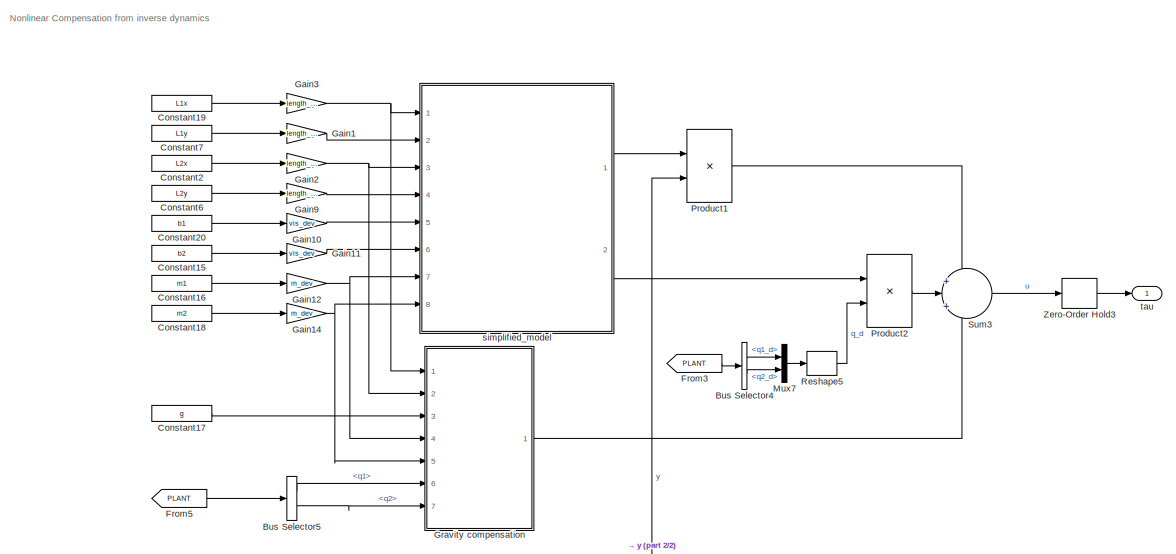
[diagram: Controller/Robust PID control  - part 1/2, top center region]
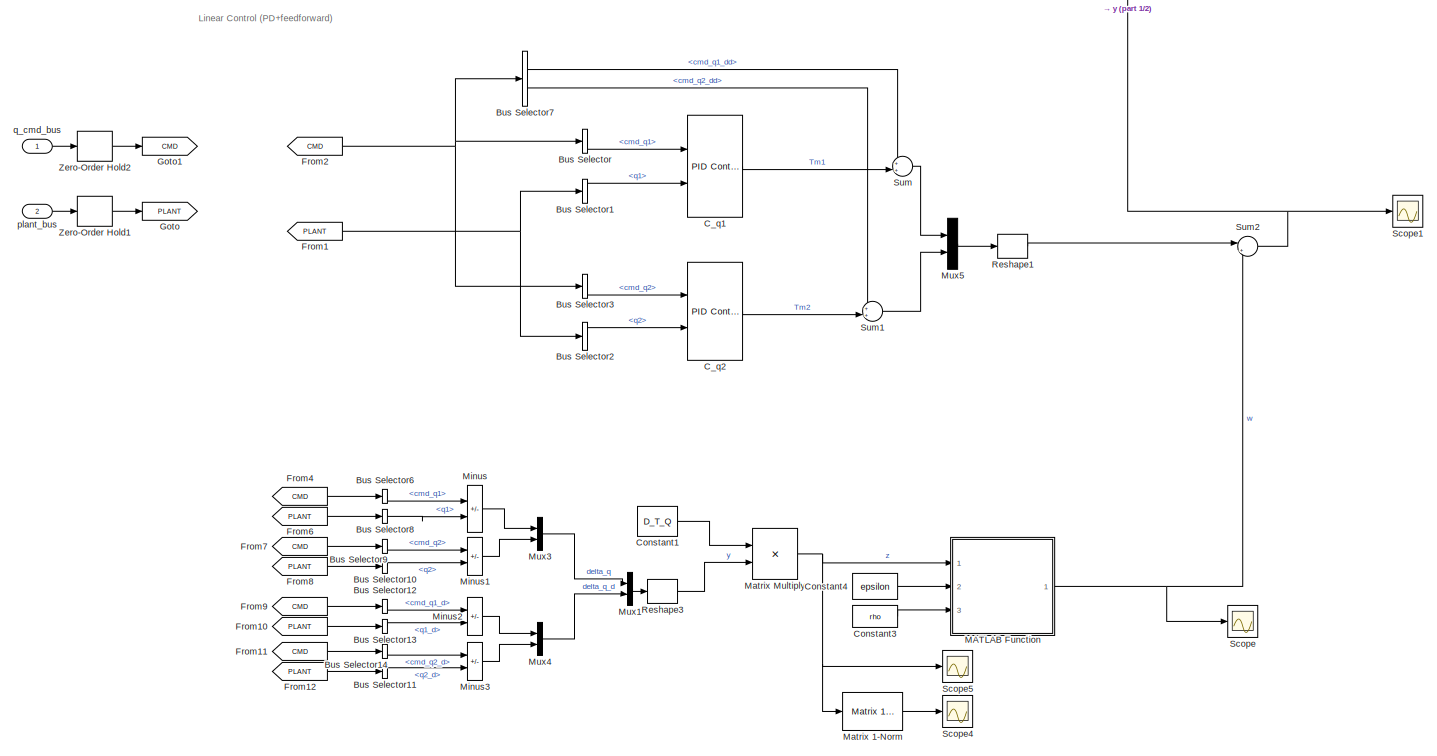
[diagram: Controller/Robust PID control  - part 2/2, full width, bottom band]
BLOCK [SubSystem] Controller/Robust PID control 
  Ports = [2, 1]
  RequestExecContextInheritance = off
  VariantControl = robust_PID_control
BLOCK [BusSelector] Controller/Robust PID control /Bus Selector
  OutputSignals = cmd_q1
  Ports = [1, 1]
BLOCK [BusSelector] Controller/Robust PID control /Bus Selector1
  OutputSignals = q1
  Ports = [1, 1]
BLOCK [BusSelector] Controller/Robust PID control /Bus Selector10
  OutputSignals = q2
  Ports = [1, 1]
BLOCK [BusSelector] Controller/Robust PID control /Bus Selector11
  OutputSignals = q2_d
  Ports = [1, 1]
BLOCK [BusSelector] Controller/Robust PID control /Bus Selector12
  OutputSignals = cmd_q1_d
  Ports = [1, 1]
BLOCK [BusSelector] Controller/Robust PID control /Bus Selector13
  OutputSignals = q1_d
  Ports = [1, 1]
BLOCK [BusSelector] Controller/Robust PID control /Bus Selector14
  OutputSignals = cmd_q2_d
  Ports = [1, 1]
BLOCK [BusSelector] Controller/Robust PID control /Bus Selector2
  OutputSignals = q2
  Ports = [1, 1]
BLOCK [BusSelector] Controller/Robust PID control /Bus Selector3
  OutputSignals = cmd_q2
  Ports = [1, 1]
BLOCK [BusSelector] Controller/Robust PID control /Bus Selector4
  OutputSignals = q1_d,q2_d
  Ports = [1, 2]
BLOCK [BusSelector] Controller/Robust PID control /Bus Selector5
  OutputSignals = q1,q2
  Ports = [1, 2]
BLOCK [BusSelector] Controller/Robust PID control /Bus Selector6
  OutputSignals = cmd_q1
  Ports = [1, 1]
BLOCK [BusSelector] Controller/Robust PID control /Bus Selector7
  OutputSignals = cmd_q1_dd,cmd_q2_dd
  Ports = [1, 2]
BLOCK [BusSelector] Controller/Robust PID control /Bus Selector8
  OutputSignals = q1
  Ports = [1, 1]
BLOCK [BusSelector] Controller/Robust PID control /Bus Selector9
  OutputSignals = cmd_q2
  Ports = [1, 1]
BLOCK [Reference] Controller/Robust PID control /C_q1  REF=pid_lib/PID Controller (2DOF)
  Ports = [2, 1]
  SourceBlock = pid_lib/PID Controller (2DOF)
  SourceProductBaseCode = SL
  SourceType = PID 2dof
BLOCK [Reference] Controller/Robust PID control /C_q2  REF=pid_lib/PID Controller (2DOF)
  Ports = [2, 1]
  SourceBlock = pid_lib/PID Controller (2DOF)
  SourceProductBaseCode = SL
  SourceType = PID 2dof
BLOCK [Constant] Controller/Robust PID control /Constant1
  Value = D_T_Q
BLOCK [Constant] Controller/Robust PID control /Constant15
  Value = b2
BLOCK [Constant] Controller/Robust PID control /Constant16
  Value = m1
BLOCK [Constant] Controller/Robust PID control /Constant17
  Value = g
BLOCK [Constant] Controller/Robust PID control /Constant18
  Value = m2
BLOCK [Constant] Controller/Robust PID control /Constant19
  Value = L1x
BLOCK [Constant] Controller/Robust PID control /Constant2
  Value = L2x
BLOCK [Constant] Controller/Robust PID control /Constant20
  Value = b1
BLOCK [Constant] Controller/Robust PID control /Constant3
  Value = rho
BLOCK [Constant] Controller/Robust PID control /Constant4
  Value = epsilon
BLOCK [Constant] Controller/Robust PID control /Constant6
  Value = L2y
BLOCK [Constant] Controller/Robust PID control /Constant7
  Value = L1y
BLOCK [From] Controller/Robust PID control /From1
  GotoTag = PLANT
BLOCK [From] Controller/Robust PID control /From10
  GotoTag = PLANT
BLOCK [From] Controller/Robust PID control /From11
  GotoTag = CMD
BLOCK [From] Controller/Robust PID control /From12
  GotoTag = PLANT
BLOCK [From] Controller/Robust PID control /From2
  GotoTag = CMD
BLOCK [From] Controller/Robust PID control /From3
  GotoTag = PLANT
BLOCK [From] Controller/Robust PID control /From4
  GotoTag = CMD
BLOCK [From] Controller/Robust PID control /From5
  GotoTag = PLANT
BLOCK [From] Controller/Robust PID control /From6
  GotoTag = PLANT
BLOCK [From] Controller/Robust PID control /From7
  GotoTag = CMD
BLOCK [From] Controller/Robust PID control /From8
  GotoTag = PLANT
BLOCK [From] Controller/Robust PID control /From9
  GotoTag = CMD
BLOCK [Gain] Controller/Robust PID control /Gain1
  Gain = length_dev
BLOCK [Gain] Controller/Robust PID control /Gain10
  Gain = vis_dev
BLOCK [Gain] Controller/Robust PID control /Gain11
  Gain = vis_dev
BLOCK [Gain] Controller/Robust PID control /Gain12
  Gain = m_dev
BLOCK [Gain] Controller/Robust PID control /Gain14
  Gain = m_dev
BLOCK [Gain] Controller/Robust PID control /Gain2
  Gain = length_dev
BLOCK [Gain] Controller/Robust PID control /Gain3
  Gain = length_dev
BLOCK [Gain] Controller/Robust PID control /Gain9
  Gain = length_dev
BLOCK [Goto] Controller/Robust PID control /Goto
  GotoTag = PLANT
BLOCK [Goto] Controller/Robust PID control /Goto1
  GotoTag = CMD
BLOCK [SubSystem] Controller/Robust PID control /Gravity compensation
  ErrorFcn = Stateflow.Translate.translate
  PermitHierarchicalResolution = ExplicitOnly
  Ports = [7, 1]
  RequestExecContextInheritance = off
  SFBlockType = MATLAB Function
  TreatAsAtomicUnit = on
BLOCK [Demux] Controller/Robust PID control /Gravity compensation/ Demux 
  Outputs = 1
  Ports = [1, 1]
BLOCK [S-Function] Controller/Robust PID control /Gravity compensation/ SFunction 
  EnableBusSupport = on
  FunctionName = sf_sfun
  PortCounts = [7 2]
  Ports = [7, 2]
  SFcnIsStateOwnerBlock = off
  SFunctionDeploymentMode = off
  Tag = Stateflow S-Function 11
BLOCK [Terminator] Controller/Robust PID control /Gravity compensation/ Terminator 
BLOCK [Outport] Controller/Robust PID control /Gravity compensation/G
BLOCK [Inport] Controller/Robust PID control /Gravity compensation/L_1x
BLOCK [Inport] Controller/Robust PID control /Gravity compensation/L_2x
  Port = 2
BLOCK [Inport] Controller/Robust PID control /Gravity compensation/g
  Port = 3
BLOCK [Inport] Controller/Robust PID control /Gravity compensation/m1
  Port = 4
BLOCK [Inport] Controller/Robust PID control /Gravity compensation/m2
  Port = 5
BLOCK [Inport] Controller/Robust PID control /Gravity compensation/q1
  Port = 6
BLOCK [Inport] Controller/Robust PID control /Gravity compensation/q2
  Port = 7
BLOCK [SubSystem] Controller/Robust PID control /MATLAB Function
  ErrorFcn = Stateflow.Translate.translate
  PermitHierarchicalResolution = ExplicitOnly
  Ports = [3, 1]
  RequestExecContextInheritance = off
  SFBlockType = MATLAB Function
  TreatAsAtomicUnit = on
BLOCK [Demux] Controller/Robust PID control /MATLAB Function/ Demux 
  Outputs = 1
  Ports = [1, 1]
BLOCK [S-Function] Controller/Robust PID control /MATLAB Function/ SFunction 
  EnableBusSupport = on
  FunctionName = sf_sfun
  PortCounts = [3 2]
  Ports = [3, 2]
  SFcnIsStateOwnerBlock = off
  SFunctionDeploymentMode = off
  Tag = Stateflow S-Function 12
BLOCK [Terminator] Controller/Robust PID control /MATLAB Function/ Terminator 
BLOCK [Inport] Controller/Robust PID control /MATLAB Function/epsilon
  Port = 2
BLOCK [Inport] Controller/Robust PID control /MATLAB Function/rho
  Port = 3
BLOCK [Outport] Controller/Robust PID control /MATLAB Function/w
BLOCK [Inport] Controller/Robust PID control /MATLAB Function/z
BLOCK [Reference] Controller/Robust PID control /Matrix 1-Norm  REF=dspmtrx3/Matrix 
1-Norm
  Ports = [1, 1]
  SourceBlock = dspmtrx3/Matrix \n1-Norm
  SourceProductBaseCode = DS
  SourceType = Matrix 1-Norm
BLOCK [Product] Controller/Robust PID control /Matrix Multiply
  Multiplication = Matrix(*)
  Ports = [2, 1]
BLOCK [Sum] Controller/Robust PID control /Minus
  IconShape = rectangular
  Inputs = +-
  Ports = [2, 1]
BLOCK [Sum] Controller/Robust PID control /Minus1
  IconShape = rectangular
  Inputs = +-
  Ports = [2, 1]
BLOCK [Sum] Controller/Robust PID control /Minus2
  IconShape = rectangular
  Inputs = +-
  Ports = [2, 1]
BLOCK [Sum] Controller/Robust PID control /Minus3
  IconShape = rectangular
  Inputs = +-
  Ports = [2, 1]
BLOCK [Mux] Controller/Robust PID control /Mux1
  DisplayOption = bar
  Inputs = 2
  Ports = [2, 1]
BLOCK [Mux] Controller/Robust PID control /Mux3
  DisplayOption = bar
  Inputs = 2
  Ports = [2, 1]
BLOCK [Mux] Controller/Robust PID control /Mux4
  DisplayOption = bar
  Inputs = 2
  Ports = [2, 1]
BLOCK [Mux] Controller/Robust PID control /Mux5
  DisplayOption = bar
  Inputs = 2
  Ports = [2, 1]
BLOCK [Mux] Controller/Robust PID control /Mux7
  DisplayOption = bar
  Inputs = 2
  Ports = [2, 1]
BLOCK [Product] Controller/Robust PID control /Product1
  Multiplication = Matrix(*)
  Ports = [2, 1]
BLOCK [Product] Controller/Robust PID control /Product2
  Multiplication = Matrix(*)
  Ports = [2, 1]
BLOCK [Reshape] Controller/Robust PID control /Reshape1
  OutputDimensionality = Column vector (2-D)
  Ports = [1, 1]
BLOCK [Reshape] Controller/Robust PID control /Reshape3
  OutputDimensionality = Column vector (2-D)
  Ports = [1, 1]
BLOCK [Reshape] Controller/Robust PID control /Reshape5
  OutputDimensionality = Column vector (2-D)
  Ports = [1, 1]
BLOCK [Scope] Controller/Robust PID control /Scope
  Floating = off
  NumInputPorts = 1
  Ports = [1]
  ScopeSpecificationString = Simulink.scopes.TimeScopeBlockCfg('CurrentConfiguration', extmgr.ConfigurationSet(extmgr.Configuration('Core','General UI',true),extmgr.Configuration('Core','Source UI',true),extmgr.Configuration('Sources','WiredSimulink',true,'DataLoggingVariableName','ScopeData1'),extmgr.Configuration('Visuals','Time Domain',true,'SerializedDisplays',{struct('MinYLimReal','-0.88388','MaxYLimReal','0.88388','YLab...<+1439ch>
BLOCK [Scope] Controller/Robust PID control /Scope1
  Floating = off
  NumInputPorts = 1
  Ports = [1]
  ScopeSpecificationString = Simulink.scopes.TimeScopeBlockCfg('CurrentConfiguration', extmgr.ConfigurationSet(extmgr.Configuration('Core','General UI',true),extmgr.Configuration('Core','Source UI',true),extmgr.Configuration('Sources','WiredSimulink',true,'DataLoggingVariableName','ScopeData2'),extmgr.Configuration('Visuals','Time Domain',true,'SerializedDisplays',{struct('MinYLimReal','-123.0717','MaxYLimReal','146.9743','YL...<+1447ch>
BLOCK [Scope] Controller/Robust PID control /Scope4
  Floating = off
  NumInputPorts = 1
  Ports = [1]
  ScopeSpecificationString = Simulink.scopes.TimeScopeBlockCfg('CurrentConfiguration', extmgr.ConfigurationSet(extmgr.Configuration('Core','General UI',true),extmgr.Configuration('Core','Source UI',true),extmgr.Configuration('Sources','WiredSimulink',true,'DataLoggingVariableName','ScopeData6'),extmgr.Configuration('Visuals','Time Domain',true,'SerializedDisplays',{struct('MinYLimReal','-760.48835','MaxYLimReal','6845.36407',...<+1462ch>
BLOCK [Scope] Controller/Robust PID control /Scope5
  Floating = off
  NumInputPorts = 1
  Ports = [1]
  ScopeSpecificationString = Simulink.scopes.TimeScopeBlockCfg('CurrentConfiguration', extmgr.ConfigurationSet(extmgr.Configuration('Core','General UI',true),extmgr.Configuration('Core','Source UI',true),extmgr.Configuration('Sources','WiredSimulink',true,'DataLoggingVariableName','ScopeData3'),extmgr.Configuration('Visuals','Time Domain',true,'SerializedDisplays',{struct('MinYLimReal','-3802.98677','MaxYLimReal','3802.98677'...<+1461ch>
BLOCK [Sum] Controller/Robust PID control /Sum
  Inputs = ++|
  Ports = [2, 1]
BLOCK [Sum] Controller/Robust PID control /Sum1
  Inputs = ++|
  Ports = [2, 1]
BLOCK [Sum] Controller/Robust PID control /Sum2
  Inputs = |++
  Ports = [2, 1]
BLOCK [Sum] Controller/Robust PID control /Sum3
  Inputs = +|+|+
  Ports = [3, 1]
BLOCK [ZeroOrderHold] Controller/Robust PID control /Zero-Order Hold1
  SampleTime = 0.001
BLOCK [ZeroOrderHold] Controller/Robust PID control /Zero-Order Hold2
  SampleTime = 0.001
BLOCK [ZeroOrderHold] Controller/Robust PID control /Zero-Order Hold3
  SampleTime = 0.001
BLOCK [Inport] Controller/Robust PID control /plant_bus
  Port = 2
BLOCK [Inport] Controller/Robust PID control /q_cmd_bus
BLOCK [SubSystem] Controller/Robust PID control /simplified_model
  ErrorFcn = Stateflow.Translate.translate
  PermitHierarchicalResolution = ExplicitOnly
  Ports = [8, 2]
  RequestExecContextInheritance = off
  SFBlockType = MATLAB Function
  TreatAsAtomicUnit = on
BLOCK [Demux] Controller/Robust PID control /simplified_model/ Demux 
  Outputs = 1
  Ports = [1, 1]
BLOCK [S-Function] Controller/Robust PID control /simplified_model/ SFunction 
  EnableBusSupport = on
  FunctionName = sf_sfun
  PortCounts = [8 3]
  Ports = [8, 3]
  SFcnIsStateOwnerBlock = off
  SFunctionDeploymentMode = off
  Tag = Stateflow S-Function 13
BLOCK [Terminator] Controller/Robust PID control /simplified_model/ Terminator 
BLOCK [Outport] Controller/Robust PID control /simplified_model/Fv
  Port = 2
BLOCK [Inport] Controller/Robust PID control /simplified_model/L_1x
BLOCK [Inport] Controller/Robust PID control /simplified_model/L_1y
  Port = 2
BLOCK [Inport] Controller/Robust PID control /simplified_model/L_2x
  Port = 3
BLOCK [Inport] Controller/Robust PID control /simplified_model/L_2y
  Port = 4
BLOCK [Outport] Controller/Robust PID control /simplified_model/M_bar
BLOCK [Inport] Controller/Robust PID control /simplified_model/b1
  Port = 5
BLOCK [Inport] Controller/Robust PID control /simplified_model/b2
  Port = 6
BLOCK [Inport] Controller/Robust PID control /simplified_model/m1
  Port = 7
BLOCK [Inport] Controller/Robust PID control /simplified_model/m2
  Port = 8
BLOCK [Outport] Controller/Robust PID control /tau
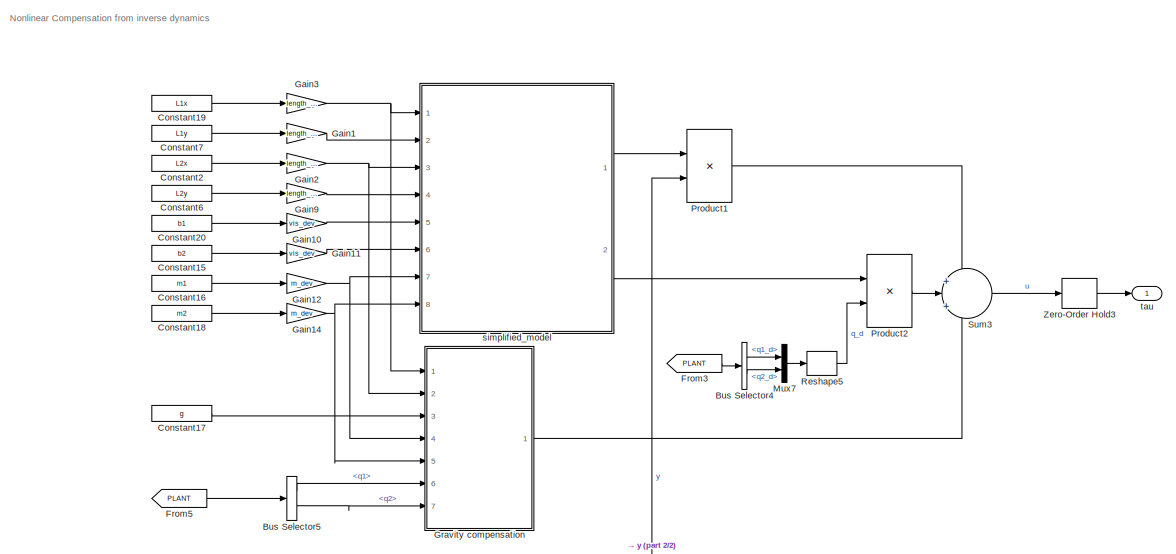
[diagram: Controller/Robust control  - part 1/2, top center region]
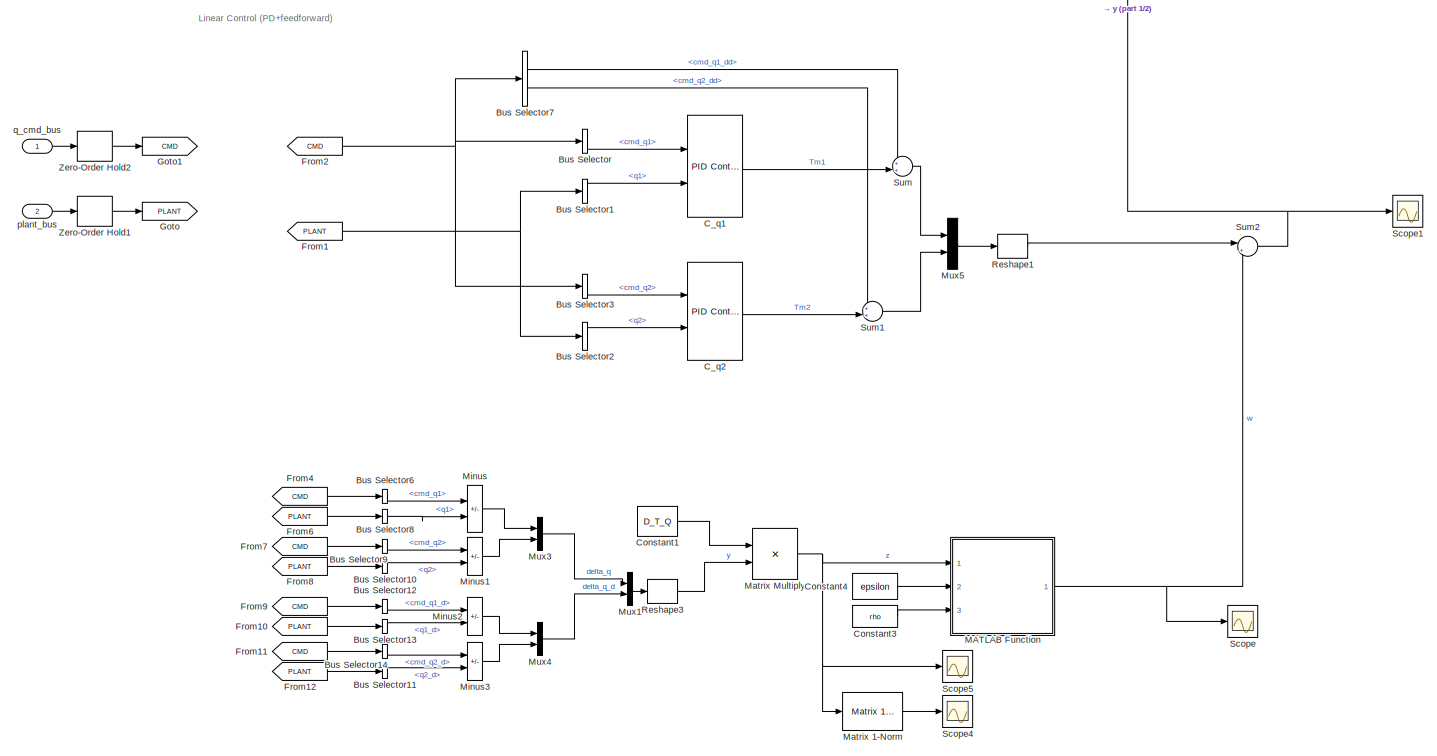
[diagram: Controller/Robust control  - part 2/2, full width, bottom band]
BLOCK [SubSystem] Controller/Robust control 
  Ports = [2, 1]
  RequestExecContextInheritance = off
  VariantControl = robust_control
BLOCK [BusSelector] Controller/Robust control /Bus Selector
  OutputSignals = cmd_q1
  Ports = [1, 1]
BLOCK [BusSelector] Controller/Robust control /Bus Selector1
  OutputSignals = q1
  Ports = [1, 1]
BLOCK [BusSelector] Controller/Robust control /Bus Selector10
  OutputSignals = q2
  Ports = [1, 1]
BLOCK [BusSelector] Controller/Robust control /Bus Selector11
  OutputSignals = q2_d
  Ports = [1, 1]
BLOCK [BusSelector] Controller/Robust control /Bus Selector12
  OutputSignals = cmd_q1_d
  Ports = [1, 1]
BLOCK [BusSelector] Controller/Robust control /Bus Selector13
  OutputSignals = q1_d
  Ports = [1, 1]
BLOCK [BusSelector] Controller/Robust control /Bus Selector14
  OutputSignals = cmd_q2_d
  Ports = [1, 1]
BLOCK [BusSelector] Controller/Robust control /Bus Selector2
  OutputSignals = q2
  Ports = [1, 1]
BLOCK [BusSelector] Controller/Robust control /Bus Selector3
  OutputSignals = cmd_q2
  Ports = [1, 1]
BLOCK [BusSelector] Controller/Robust control /Bus Selector4
  OutputSignals = q1_d,q2_d
  Ports = [1, 2]
BLOCK [BusSelector] Controller/Robust control /Bus Selector5
  OutputSignals = q1,q2
  Ports = [1, 2]
BLOCK [BusSelector] Controller/Robust control /Bus Selector6
  OutputSignals = cmd_q1
  Ports = [1, 1]
BLOCK [BusSelector] Controller/Robust control /Bus Selector7
  OutputSignals = cmd_q1_dd,cmd_q2_dd
  Ports = [1, 2]
BLOCK [BusSelector] Controller/Robust control /Bus Selector8
  OutputSignals = q1
  Ports = [1, 1]
BLOCK [BusSelector] Controller/Robust control /Bus Selector9
  OutputSignals = cmd_q2
  Ports = [1, 1]
BLOCK [Reference] Controller/Robust control /C_q1  REF=pid_lib/PID Controller (2DOF)
  Ports = [2, 1]
  SourceBlock = pid_lib/PID Controller (2DOF)
  SourceProductBaseCode = SL
  SourceType = PID 2dof
BLOCK [Reference] Controller/Robust control /C_q2  REF=pid_lib/PID Controller (2DOF)
  Ports = [2, 1]
  SourceBlock = pid_lib/PID Controller (2DOF)
  SourceProductBaseCode = SL
  SourceType = PID 2dof
BLOCK [Constant] Controller/Robust control /Constant1
  Value = D_T_Q
BLOCK [Constant] Controller/Robust control /Constant15
  Value = b2
BLOCK [Constant] Controller/Robust control /Constant16
  Value = m1
BLOCK [Constant] Controller/Robust control /Constant17
  Value = g
BLOCK [Constant] Controller/Robust control /Constant18
  Value = m2
BLOCK [Constant] Controller/Robust control /Constant19
  Value = L1x
BLOCK [Constant] Controller/Robust control /Constant2
  Value = L2x
BLOCK [Constant] Controller/Robust control /Constant20
  Value = b1
BLOCK [Constant] Controller/Robust control /Constant3
  Value = rho
BLOCK [Constant] Controller/Robust control /Constant4
  Value = epsilon
BLOCK [Constant] Controller/Robust control /Constant6
  Value = L2y
BLOCK [Constant] Controller/Robust control /Constant7
  Value = L1y
BLOCK [From] Controller/Robust control /From1
  GotoTag = PLANT
BLOCK [From] Controller/Robust control /From10
  GotoTag = PLANT
BLOCK [From] Controller/Robust control /From11
  GotoTag = CMD
BLOCK [From] Controller/Robust control /From12
  GotoTag = PLANT
BLOCK [From] Controller/Robust control /From2
  GotoTag = CMD
BLOCK [From] Controller/Robust control /From3
  GotoTag = PLANT
BLOCK [From] Controller/Robust control /From4
  GotoTag = CMD
BLOCK [From] Controller/Robust control /From5
  GotoTag = PLANT
BLOCK [From] Controller/Robust control /From6
  GotoTag = PLANT
BLOCK [From] Controller/Robust control /From7
  GotoTag = CMD
BLOCK [From] Controller/Robust control /From8
  GotoTag = PLANT
BLOCK [From] Controller/Robust control /From9
  GotoTag = CMD
BLOCK [Gain] Controller/Robust control /Gain1
  Gain = length_dev
BLOCK [Gain] Controller/Robust control /Gain10
  Gain = vis_dev
BLOCK [Gain] Controller/Robust control /Gain11
  Gain = vis_dev
BLOCK [Gain] Controller/Robust control /Gain12
  Gain = m_dev
BLOCK [Gain] Controller/Robust control /Gain14
  Gain = m_dev
BLOCK [Gain] Controller/Robust control /Gain2
  Gain = length_dev
BLOCK [Gain] Controller/Robust control /Gain3
  Gain = length_dev
BLOCK [Gain] Controller/Robust control /Gain9
  Gain = length_dev
BLOCK [Goto] Controller/Robust control /Goto
  GotoTag = PLANT
BLOCK [Goto] Controller/Robust control /Goto1
  GotoTag = CMD
BLOCK [SubSystem] Controller/Robust control /Gravity compensation
  ErrorFcn = Stateflow.Translate.translate
  PermitHierarchicalResolution = ExplicitOnly
  Ports = [7, 1]
  RequestExecContextInheritance = off
  SFBlockType = MATLAB Function
  TreatAsAtomicUnit = on
BLOCK [Demux] Controller/Robust control /Gravity compensation/ Demux 
  Outputs = 1
  Ports = [1, 1]
BLOCK [S-Function] Controller/Robust control /Gravity compensation/ SFunction 
  EnableBusSupport = on
  FunctionName = sf_sfun
  PortCounts = [7 2]
  Ports = [7, 2]
  SFcnIsStateOwnerBlock = off
  SFunctionDeploymentMode = off
  Tag = Stateflow S-Function 6
BLOCK [Terminator] Controller/Robust control /Gravity compensation/ Terminator 
BLOCK [Outport] Controller/Robust control /Gravity compensation/G
BLOCK [Inport] Controller/Robust control /Gravity compensation/L_1x
BLOCK [Inport] Controller/Robust control /Gravity compensation/L_2x
  Port = 2
BLOCK [Inport] Controller/Robust control /Gravity compensation/g
  Port = 3
BLOCK [Inport] Controller/Robust control /Gravity compensation/m1
  Port = 4
BLOCK [Inport] Controller/Robust control /Gravity compensation/m2
  Port = 5
BLOCK [Inport] Controller/Robust control /Gravity compensation/q1
  Port = 6
BLOCK [Inport] Controller/Robust control /Gravity compensation/q2
  Port = 7
BLOCK [SubSystem] Controller/Robust control /MATLAB Function
  ErrorFcn = Stateflow.Translate.translate
  PermitHierarchicalResolution = ExplicitOnly
  Ports = [3, 1]
  RequestExecContextInheritance = off
  SFBlockType = MATLAB Function
  TreatAsAtomicUnit = on
BLOCK [Demux] Controller/Robust control /MATLAB Function/ Demux 
  Outputs = 1
  Ports = [1, 1]
BLOCK [S-Function] Controller/Robust control /MATLAB Function/ SFunction 
  EnableBusSupport = on
  FunctionName = sf_sfun
  PortCounts = [3 2]
  Ports = [3, 2]
  SFcnIsStateOwnerBlock = off
  SFunctionDeploymentMode = off
  Tag = Stateflow S-Function 8
BLOCK [Terminator] Controller/Robust control /MATLAB Function/ Terminator 
BLOCK [Inport] Controller/Robust control /MATLAB Function/epsilon
  Port = 2
BLOCK [Inport] Controller/Robust control /MATLAB Function/rho
  Port = 3
BLOCK [Outport] Controller/Robust control /MATLAB Function/w
BLOCK [Inport] Controller/Robust control /MATLAB Function/z
BLOCK [Reference] Controller/Robust control /Matrix 1-Norm  REF=dspmtrx3/Matrix 
1-Norm
  Ports = [1, 1]
  SourceBlock = dspmtrx3/Matrix \n1-Norm
  SourceProductBaseCode = DS
  SourceType = Matrix 1-Norm
BLOCK [Product] Controller/Robust control /Matrix Multiply
  Multiplication = Matrix(*)
  Ports = [2, 1]
BLOCK [Sum] Controller/Robust control /Minus
  IconShape = rectangular
  Inputs = +-
  Ports = [2, 1]
BLOCK [Sum] Controller/Robust control /Minus1
  IconShape = rectangular
  Inputs = +-
  Ports = [2, 1]
BLOCK [Sum] Controller/Robust control /Minus2
  IconShape = rectangular
  Inputs = +-
  Ports = [2, 1]
BLOCK [Sum] Controller/Robust control /Minus3
  IconShape = rectangular
  Inputs = +-
  Ports = [2, 1]
BLOCK [Mux] Controller/Robust control /Mux1
  DisplayOption = bar
  Inputs = 2
  Ports = [2, 1]
BLOCK [Mux] Controller/Robust control /Mux3
  DisplayOption = bar
  Inputs = 2
  Ports = [2, 1]
BLOCK [Mux] Controller/Robust control /Mux4
  DisplayOption = bar
  Inputs = 2
  Ports = [2, 1]
BLOCK [Mux] Controller/Robust control /Mux5
  DisplayOption = bar
  Inputs = 2
  Ports = [2, 1]
BLOCK [Mux] Controller/Robust control /Mux7
  DisplayOption = bar
  Inputs = 2
  Ports = [2, 1]
BLOCK [Product] Controller/Robust control /Product1
  Multiplication = Matrix(*)
  Ports = [2, 1]
BLOCK [Product] Controller/Robust control /Product2
  Multiplication = Matrix(*)
  Ports = [2, 1]
BLOCK [Reshape] Controller/Robust control /Reshape1
  OutputDimensionality = Column vector (2-D)
  Ports = [1, 1]
BLOCK [Reshape] Controller/Robust control /Reshape3
  OutputDimensionality = Column vector (2-D)
  Ports = [1, 1]
BLOCK [Reshape] Controller/Robust control /Reshape5
  OutputDimensionality = Column vector (2-D)
  Ports = [1, 1]
BLOCK [Scope] Controller/Robust control /Scope
  Floating = off
  NumInputPorts = 1
  Ports = [1]
  ScopeSpecificationString = Simulink.scopes.TimeScopeBlockCfg('CurrentConfiguration', extmgr.ConfigurationSet(extmgr.Configuration('Core','General UI',true),extmgr.Configuration('Core','Source UI',true),extmgr.Configuration('Sources','WiredSimulink',true,'DataLoggingVariableName','ScopeData1'),extmgr.Configuration('Visuals','Time Domain',true,'SerializedDisplays',{struct('MinYLimReal','-0.88388','MaxYLimReal','0.88388','YLab...<+1439ch>
BLOCK [Scope] Controller/Robust control /Scope1
  Floating = off
  NumInputPorts = 1
  Ports = [1]
  ScopeSpecificationString = Simulink.scopes.TimeScopeBlockCfg('CurrentConfiguration', extmgr.ConfigurationSet(extmgr.Configuration('Core','General UI',true),extmgr.Configuration('Core','Source UI',true),extmgr.Configuration('Sources','WiredSimulink',true,'DataLoggingVariableName','ScopeData2'),extmgr.Configuration('Visuals','Time Domain',true,'SerializedDisplays',{struct('MinYLimReal','-123.0717','MaxYLimReal','146.9743','YL...<+1447ch>
BLOCK [Scope] Controller/Robust control /Scope4
  Floating = off
  NumInputPorts = 1
  Ports = [1]
  ScopeSpecificationString = Simulink.scopes.TimeScopeBlockCfg('CurrentConfiguration', extmgr.ConfigurationSet(extmgr.Configuration('Core','General UI',true),extmgr.Configuration('Core','Source UI',true),extmgr.Configuration('Sources','WiredSimulink',true,'DataLoggingVariableName','ScopeData6'),extmgr.Configuration('Visuals','Time Domain',true,'SerializedDisplays',{struct('MinYLimReal','-760.48835','MaxYLimReal','6845.36407',...<+1462ch>
BLOCK [Scope] Controller/Robust control /Scope5
  Floating = off
  NumInputPorts = 1
  Ports = [1]
  ScopeSpecificationString = Simulink.scopes.TimeScopeBlockCfg('CurrentConfiguration', extmgr.ConfigurationSet(extmgr.Configuration('Core','General UI',true),extmgr.Configuration('Core','Source UI',true),extmgr.Configuration('Sources','WiredSimulink',true,'DataLoggingVariableName','ScopeData3'),extmgr.Configuration('Visuals','Time Domain',true,'SerializedDisplays',{struct('MinYLimReal','-3802.98677','MaxYLimReal','3802.98677'...<+1461ch>
BLOCK [Sum] Controller/Robust control /Sum
  Inputs = ++|
  Ports = [2, 1]
BLOCK [Sum] Controller/Robust control /Sum1
  Inputs = ++|
  Ports = [2, 1]
BLOCK [Sum] Controller/Robust control /Sum2
  Inputs = |++
  Ports = [2, 1]
BLOCK [Sum] Controller/Robust control /Sum3
  Inputs = +|+|+
  Ports = [3, 1]
BLOCK [ZeroOrderHold] Controller/Robust control /Zero-Order Hold1
  SampleTime = 0.001
BLOCK [ZeroOrderHold] Controller/Robust control /Zero-Order Hold2
  SampleTime = 0.001
BLOCK [ZeroOrderHold] Controller/Robust control /Zero-Order Hold3
  SampleTime = 0.001
BLOCK [Inport] Controller/Robust control /plant_bus
  Port = 2
BLOCK [Inport] Controller/Robust control /q_cmd_bus
BLOCK [SubSystem] Controller/Robust control /simplified_model
  ErrorFcn = Stateflow.Translate.translate
  PermitHierarchicalResolution = ExplicitOnly
  Ports = [8, 2]
  RequestExecContextInheritance = off
  SFBlockType = MATLAB Function
  TreatAsAtomicUnit = on
BLOCK [Demux] Controller/Robust control /simplified_model/ Demux 
  Outputs = 1
  Ports = [1, 1]
BLOCK [S-Function] Controller/Robust control /simplified_model/ SFunction 
  EnableBusSupport = on
  FunctionName = sf_sfun
  PortCounts = [8 3]
  Ports = [8, 3]
  SFcnIsStateOwnerBlock = off
  SFunctionDeploymentMode = off
  Tag = Stateflow S-Function 10
BLOCK [Terminator] Controller/Robust control /simplified_model/ Terminator 
BLOCK [Outport] Controller/Robust control /simplified_model/Fv
  Port = 2
BLOCK [Inport] Controller/Robust control /simplified_model/L_1x
BLOCK [Inport] Controller/Robust control /simplified_model/L_1y
  Port = 2
BLOCK [Inport] Controller/Robust control /simplified_model/L_2x
  Port = 3
BLOCK [Inport] Controller/Robust control /simplified_model/L_2y
  Port = 4
BLOCK [Outport] Controller/Robust control /simplified_model/M_bar
BLOCK [Inport] Controller/Robust control /simplified_model/b1
  Port = 5
BLOCK [Inport] Controller/Robust control /simplified_model/b2
  Port = 6
BLOCK [Inport] Controller/Robust control /simplified_model/m1
  Port = 7
BLOCK [Inport] Controller/Robust control /simplified_model/m2
  Port = 8
BLOCK [Outport] Controller/Robust control /tau
BLOCK [Inport] Controller/plant_bus
  Port = 2
BLOCK [Inport] Controller/q_cmd_bus
BLOCK [Outport] Controller/tau
BLOCK [Demux] Demux
  Outputs = 2
  Ports = [1, 2]
BLOCK [Demux] Demux1
  Outputs = 2
  Ports = [1, 2]
BLOCK [From] From1
  GotoTag = CMD_BUS
BLOCK [From] From10
  GotoTag = U
BLOCK [From] From11
  GotoTag = SL_BUS
BLOCK [From] From2
  GotoTag = SL_BUS
BLOCK [From] From3
  GotoTag = CMD_BUS
BLOCK [From] From4
  GotoTag = CMD_BUS
BLOCK [From] From5
  GotoTag = SL_BUS
BLOCK [From] From6
  GotoTag = SL_BUS
BLOCK [From] From7
  GotoTag = CMD_BUS
BLOCK [From] From8
  GotoTag = SL_BUS
BLOCK [From] From9
  GotoTag = U
BLOCK [Goto] Goto1
  GotoTag = U
BLOCK [Goto] Goto17
  GotoTag = SL_BUS
BLOCK [Goto] Goto9
  GotoTag = CMD_BUS
BLOCK [Mux] Mux1
  DisplayOption = bar
  Inputs = 2
  Ports = [2, 1]
BLOCK [Mux] Mux2
  DisplayOption = bar
  Inputs = 2
  Ports = [2, 1]
BLOCK [Mux] Mux3
  DisplayOption = bar
  Inputs = 2
  Ports = [2, 1]
BLOCK [Mux] Mux4
  DisplayOption = bar
  Inputs = 2
  Ports = [2, 1]
BLOCK [Mux] Mux8
  DisplayOption = bar
  Inputs = 2
  Ports = [2, 1]
BLOCK [Mux] Mux9
  DisplayOption = bar
  Inputs = 2
  Ports = [2, 1]
BLOCK [Reference] Radians to Degrees  REF=simulink_extras/Transformations/Radians
to Degrees
  Ports = [1, 1]
  SourceBlock = simulink_extras/Transformations/Radians\nto Degrees
  SourceProductBaseCode = SL
  SourceType = RadiansToDegrees
BLOCK [Reference] Radians to Degrees1  REF=simulink_extras/Transformations/Radians
to Degrees
  Ports = [1, 1]
  SourceBlock = simulink_extras/Transformations/Radians\nto Degrees
  SourceProductBaseCode = SL
  SourceType = RadiansToDegrees
BLOCK [Reference] Radians to Degrees2  REF=simulink_extras/Transformations/Radians
to Degrees
  Ports = [1, 1]
  SourceBlock = simulink_extras/Transformations/Radians\nto Degrees
  SourceProductBaseCode = SL
  SourceType = RadiansToDegrees
BLOCK [Reference] Radians to Degrees3  REF=simulink_extras/Transformations/Radians
to Degrees
  Ports = [1, 1]
  SourceBlock = simulink_extras/Transformations/Radians\nto Degrees
  SourceProductBaseCode = SL
  SourceType = RadiansToDegrees
BLOCK [Reference] Radians to Degrees4  REF=simulink_extras/Transformations/Radians
to Degrees
  Ports = [1, 1]
  SourceBlock = simulink_extras/Transformations/Radians\nto Degrees
  SourceProductBaseCode = SL
  SourceType = RadiansToDegrees
BLOCK [Reference] Radians to Degrees5  REF=simulink_extras/Transformations/Radians
to Degrees
  Ports = [1, 1]
  SourceBlock = simulink_extras/Transformations/Radians\nto Degrees
  SourceProductBaseCode = SL
  SourceType = RadiansToDegrees
BLOCK [Reference] Radians to Degrees6  REF=simulink_extras/Transformations/Radians
to Degrees
  Ports = [1, 1]
  SourceBlock = simulink_extras/Transformations/Radians\nto Degrees
  SourceProductBaseCode = SL
  SourceType = RadiansToDegrees
BLOCK [Reference] Radians to Degrees7  REF=simulink_extras/Transformations/Radians
to Degrees
  Ports = [1, 1]
  SourceBlock = simulink_extras/Transformations/Radians\nto Degrees
  SourceProductBaseCode = SL
  SourceType = RadiansToDegrees
BLOCK [Scope] Response Scope
  Floating = off
  NumInputPorts = 6
  Ports = [6]
  ScopeSpecificationString = Simulink.scopes.TimeScopeBlockCfg('CurrentConfiguration', extmgr.ConfigurationSet(extmgr.Configuration('Core','General UI',true),extmgr.Configuration('Core','Source UI',true),extmgr.Configuration('Sources','WiredSimulink',true,'DataLoggingVariableName','response','DataLogging',true,'DataLoggingDecimateData',true,'DataLoggingDecimation','3'),extmgr.Configuration('Visuals','Time Domain',true,'Serial...<+5202ch>
BLOCK [SubSystem] Robot
  LabelModeActiveChoice = Choice
  Ports = [1, 1]
  RequestExecContextInheritance = off
  Variant = on
  VariantControlMode = label
BLOCK [Outport] Robot/MODEL_BUS
BLOCK [SubSystem] Robot/SIMSCAPE_MODEL
  Ports = [1, 1]
  RequestExecContextInheritance = off
  VariantControl = Choice_1
BLOCK [BusCreator] Robot/SIMSCAPE_MODEL/Bus Creator
  DisplayOption = bar
  InheritFromInputs = on
  Inputs = 6
  Ports = [6, 1]
BLOCK [BusSelector] Robot/SIMSCAPE_MODEL/Bus Selector1
  OutputSignals = q1,q1_d,q1_dd,q2,q2_d,q2_dd
  Ports = [1, 6]
BLOCK [Demux] Robot/SIMSCAPE_MODEL/Demux2
  Outputs = 2
  Ports = [1, 2]
BLOCK [From] Robot/SIMSCAPE_MODEL/From10
  GotoTag = q1_dd
BLOCK [From] Robot/SIMSCAPE_MODEL/From11
  GotoTag = q2_d
BLOCK [From] Robot/SIMSCAPE_MODEL/From14
  GotoTag = q2_dd
BLOCK [From] Robot/SIMSCAPE_MODEL/From7
  GotoTag = q2
BLOCK [From] Robot/SIMSCAPE_MODEL/From8
  GotoTag = q1_d
BLOCK [From] Robot/SIMSCAPE_MODEL/From9
  GotoTag = q1
BLOCK [Goto] Robot/SIMSCAPE_MODEL/Goto1
  GotoTag = q2_dd
BLOCK [Goto] Robot/SIMSCAPE_MODEL/Goto2
  GotoTag = q2_d
BLOCK [Goto] Robot/SIMSCAPE_MODEL/Goto4
  GotoTag = q1_dd
BLOCK [Goto] Robot/SIMSCAPE_MODEL/Goto5
  GotoTag = q1_d
BLOCK [Goto] Robot/SIMSCAPE_MODEL/Goto6
  GotoTag = q1
BLOCK [Goto] Robot/SIMSCAPE_MODEL/Goto7
  GotoTag = q2
BLOCK [Reference] Robot/SIMSCAPE_MODEL/Link1  REF=sm_lib/Body Elements/Brick Solid
  NameLocation = right
  Ports = [0, 0, 0, 0, 0, 0, 1]
  SourceBlock = sm_lib/Body Elements/Brick Solid
  SourceProductBaseCode = MS
  SourceType = Brick Solid
BLOCK [Reference] Robot/SIMSCAPE_MODEL/Link2  REF=sm_lib/Body Elements/Brick Solid
  NameLocation = right
  Ports = [0, 0, 0, 0, 0, 0, 1]
  SourceBlock = sm_lib/Body Elements/Brick Solid
  SourceProductBaseCode = MS
  SourceType = Brick Solid
BLOCK [Outport] Robot/SIMSCAPE_MODEL/MODEL_BUS
BLOCK [Reference] Robot/SIMSCAPE_MODEL/Mechanism Configuration  REF=sm_lib/Utilities/Mechanism
Configuration
  Ports = [0, 0, 0, 0, 0, 0, 1]
  SourceBlock = sm_lib/Utilities/Mechanism\nConfiguration
  SourceProductBaseCode = MS
  SourceType = Mechanism\nConfiguration
BLOCK [Reference] Robot/SIMSCAPE_MODEL/PS-Simulink Converter  REF=nesl_utility/PS-Simulink
Converter
  Ports = [0, 1, 0, 0, 0, 1]
  SourceBlock = nesl_utility/PS-Simulink\nConverter
  SourceProductBaseCode = PW,SS
  SourceType = PS-Simulink\nConverter
BLOCK [Reference] Robot/SIMSCAPE_MODEL/PS-Simulink Converter1  REF=nesl_utility/PS-Simulink
Converter
  Ports = [0, 1, 0, 0, 0, 1]
  SourceBlock = nesl_utility/PS-Simulink\nConverter
  SourceProductBaseCode = PW,SS
  SourceType = PS-Simulink\nConverter
BLOCK [Reference] Robot/SIMSCAPE_MODEL/PS-Simulink Converter2  REF=nesl_utility/PS-Simulink
Converter
  Ports = [0, 1, 0, 0, 0, 1]
  SourceBlock = nesl_utility/PS-Simulink\nConverter
  SourceProductBaseCode = PW,SS
  SourceType = PS-Simulink\nConverter
BLOCK [Reference] Robot/SIMSCAPE_MODEL/PS-Simulink Converter4  REF=nesl_utility/PS-Simulink
Converter
  Ports = [0, 1, 0, 0, 0, 1]
  SourceBlock = nesl_utility/PS-Simulink\nConverter
  SourceProductBaseCode = PW,SS
  SourceType = PS-Simulink\nConverter
BLOCK [Reference] Robot/SIMSCAPE_MODEL/PS-Simulink Converter5  REF=nesl_utility/PS-Simulink
Converter
  Ports = [0, 1, 0, 0, 0, 1]
  SourceBlock = nesl_utility/PS-Simulink\nConverter
  SourceProductBaseCode = PW,SS
  SourceType = PS-Simulink\nConverter
BLOCK [Reference] Robot/SIMSCAPE_MODEL/PS-Simulink Converter6  REF=nesl_utility/PS-Simulink
Converter
  Ports = [0, 1, 0, 0, 0, 1]
  SourceBlock = nesl_utility/PS-Simulink\nConverter
  SourceProductBaseCode = PW,SS
  SourceType = PS-Simulink\nConverter
BLOCK [Reference] Robot/SIMSCAPE_MODEL/PS-Simulink Converter8  REF=nesl_utility/PS-Simulink
Converter
  NameLocation = top
  Ports = [0, 1, 0, 0, 0, 1]
  SourceBlock = nesl_utility/PS-Simulink\nConverter
  SourceProductBaseCode = PW,SS
  SourceType = PS-Simulink\nConverter
BLOCK [Reference] Robot/SIMSCAPE_MODEL/Revolute Joint  REF=sm_lib/Joints/Revolute Joint
  AttributesFormatString = %<DampingCoefficient>\n%<PositionTargetValue>\n%<VelocityTargetValue>
  Ports = [0, 0, 0, 0, 0, 2, 4]
  SourceBlock = sm_lib/Joints/Revolute Joint
  SourceProductBaseCode = MS
  SourceType = Revolute Joint
BLOCK [Reference] Robot/SIMSCAPE_MODEL/Revolute Joint1  REF=sm_lib/Joints/Revolute Joint
  AttributesFormatString = %<DampingCoefficient>\n%<PositionTargetValue>\n%<VelocityTargetValue>
  Ports = [0, 0, 0, 0, 0, 2, 4]
  SourceBlock = sm_lib/Joints/Revolute Joint
  SourceProductBaseCode = MS
  SourceType = Revolute Joint
BLOCK [Reference] Robot/SIMSCAPE_MODEL/Rigid Transform  REF=sm_lib/Frames and
Transforms/Rigid
Transform
  Ports = [0, 0, 0, 0, 0, 1, 1]
  SourceBlock = sm_lib/Frames and\nTransforms/Rigid\nTransform
  SourceProductBaseCode = MS
  SourceType = Rigid\nTransform
BLOCK [Reference] Robot/SIMSCAPE_MODEL/Rigid Transform1  REF=sm_lib/Frames and
Transforms/Rigid
Transform
  Ports = [0, 0, 0, 0, 0, 1, 1]
  SourceBlock = sm_lib/Frames and\nTransforms/Rigid\nTransform
  SourceProductBaseCode = MS
  SourceType = Rigid\nTransform
BLOCK [Reference] Robot/SIMSCAPE_MODEL/Rigid Transform2  REF=sm_lib/Frames and
Transforms/Rigid
Transform
  Ports = [0, 0, 0, 0, 0, 1, 1]
  SourceBlock = sm_lib/Frames and\nTransforms/Rigid\nTransform
  SourceProductBaseCode = MS
  SourceType = Rigid\nTransform
BLOCK [Scope] Robot/SIMSCAPE_MODEL/SL_ANGS
  Floating = off
  NumInputPorts = 6
  Ports = [6]
  ScopeSpecificationString = Simulink.scopes.TimeScopeBlockCfg('CurrentConfiguration', extmgr.ConfigurationSet(extmgr.Configuration('Core','General UI',true),extmgr.Configuration('Core','Source UI',true),extmgr.Configuration('Sources','WiredSimulink',true,'DataLoggingVariableName','ScopeData1'),extmgr.Configuration('Visuals','Time Domain',true,'SerializedDisplays',{struct('MinYLimReal','-55.14001','MaxYLimReal','327.33011','Y...<+4859ch>
BLOCK [Reference] Robot/SIMSCAPE_MODEL/Simulink-PS Converter  REF=nesl_utility/Simulink-PS
Converter
  Ports = [1, 0, 0, 0, 0, 0, 1]
  SourceBlock = nesl_utility/Simulink-PS\nConverter
  SourceProductBaseCode = PW,SS
  SourceType = Simulink-PS\nConverter
BLOCK [Reference] Robot/SIMSCAPE_MODEL/Simulink-PS Converter1  REF=nesl_utility/Simulink-PS
Converter
  Ports = [1, 0, 0, 0, 0, 0, 1]
  SourceBlock = nesl_utility/Simulink-PS\nConverter
  SourceProductBaseCode = PW,SS
  SourceType = Simulink-PS\nConverter
BLOCK [Reference] Robot/SIMSCAPE_MODEL/Solver Configuration  REF=nesl_utility/Solver
Configuration
  Ports = [0, 0, 0, 0, 0, 0, 1]
  SourceBlock = nesl_utility/Solver\nConfiguration
  SourceProductBaseCode = PW,SS
  SourceType = Solver\nConfiguration
BLOCK [Inport] Robot/SIMSCAPE_MODEL/Tau_VEC
BLOCK [Terminator] Robot/SIMSCAPE_MODEL/Terminator1
BLOCK [Reference] Robot/SIMSCAPE_MODEL/Transform Sensor  REF=sm_lib/Frames and
Transforms/Transform
Sensor
  NameLocation = top
  Ports = [0, 0, 0, 0, 0, 1, 2]
  SourceBlock = sm_lib/Frames and\nTransforms/Transform\nSensor
  SourceProductBaseCode = MS
  SourceType = Transform\nSensor
BLOCK [Reference] Robot/SIMSCAPE_MODEL/World Frame  REF=sm_lib/Frames and
Transforms/World Frame
  Ports = [0, 0, 0, 0, 0, 0, 1]
  SourceBlock = sm_lib/Frames and\nTransforms/World Frame
  SourceProductBaseCode = MS
  SourceType = World Frame
BLOCK [Reference] Robot/SIMSCAPE_MODEL/World Frame1  REF=sm_lib/Frames and
Transforms/World Frame
  NameLocation = top
  Ports = [0, 0, 0, 0, 0, 0, 1]
  SourceBlock = sm_lib/Frames and\nTransforms/World Frame
  SourceProductBaseCode = MS
  SourceType = World Frame
BLOCK [SubSystem] Robot/SIMULINK_MODEL
  NameLocation = top
  Ports = [1, 1]
  RequestExecContextInheritance = off
  VariantControl = Choice
BLOCK [BusCreator] Robot/SIMULINK_MODEL/Bus Creator
  DisplayOption = bar
  InheritFromInputs = on
  Inputs = 6
  Ports = [6, 1]
BLOCK [BusSelector] Robot/SIMULINK_MODEL/Bus Selector
  OutputSignals = q1,q1_d,q1_dd,q2,q2_d,q2_dd
  Ports = [1, 6]
BLOCK [Constant] Robot/SIMULINK_MODEL/Constant1
  Value = theta1_0
BLOCK [Constant] Robot/SIMULINK_MODEL/Constant15
  Value = b2
BLOCK [Constant] Robot/SIMULINK_MODEL/Constant16
  Value = m1
BLOCK [Constant] Robot/SIMULINK_MODEL/Constant17
  Value = g
BLOCK [Constant] Robot/SIMULINK_MODEL/Constant18
  Value = m2
BLOCK [Constant] Robot/SIMULINK_MODEL/Constant19
  Value = L1x
BLOCK [Constant] Robot/SIMULINK_MODEL/Constant2
  Value = L2x
BLOCK [Constant] Robot/SIMULINK_MODEL/Constant20
  Value = b1
BLOCK [Constant] Robot/SIMULINK_MODEL/Constant3
  Value = theta1_dot_0
BLOCK [Constant] Robot/SIMULINK_MODEL/Constant4
  Value = theta2_0
BLOCK [Constant] Robot/SIMULINK_MODEL/Constant5
  Value = theta2_dot_0
BLOCK [Constant] Robot/SIMULINK_MODEL/Constant6
  Value = L2y
BLOCK [Constant] Robot/SIMULINK_MODEL/Constant7
  Value = L1y
BLOCK [Demux] Robot/SIMULINK_MODEL/Demux
  Outputs = 2
  Ports = [1, 2]
BLOCK [Demux] Robot/SIMULINK_MODEL/Demux1
  Outputs = 2
  Ports = [1, 2]
BLOCK [From] Robot/SIMULINK_MODEL/From1
  GotoTag = q2
BLOCK [From] Robot/SIMULINK_MODEL/From13
  GotoTag = q1
BLOCK [From] Robot/SIMULINK_MODEL/From16
  GotoTag = q2_d
BLOCK [From] Robot/SIMULINK_MODEL/From19
  GotoTag = q1_d
BLOCK [From] Robot/SIMULINK_MODEL/From2
  GotoTag = q1_d
BLOCK [From] Robot/SIMULINK_MODEL/From20
  GotoTag = q1
BLOCK [From] Robot/SIMULINK_MODEL/From21
  GotoTag = q2
BLOCK [From] Robot/SIMULINK_MODEL/From22
  GotoTag = q2_d
BLOCK [From] Robot/SIMULINK_MODEL/From23
  GotoTag = q1_d
BLOCK [From] Robot/SIMULINK_MODEL/From24
  GotoTag = q2
BLOCK [From] Robot/SIMULINK_MODEL/From3
  GotoTag = q1
BLOCK [From] Robot/SIMULINK_MODEL/From4
  GotoTag = q1_dd
BLOCK [From] Robot/SIMULINK_MODEL/From5
  GotoTag = q2_d
BLOCK [From] Robot/SIMULINK_MODEL/From8
  GotoTag = q2_dd
BLOCK [Goto] Robot/SIMULINK_MODEL/Goto
  GotoTag = q2_dd
BLOCK [Goto] Robot/SIMULINK_MODEL/Goto1
  GotoTag = q2_d
BLOCK [Goto] Robot/SIMULINK_MODEL/Goto16
  GotoTag = q1_d
BLOCK [Goto] Robot/SIMULINK_MODEL/Goto17
  GotoTag = q1
BLOCK [Goto] Robot/SIMULINK_MODEL/Goto2
  GotoTag = q2
BLOCK [Goto] Robot/SIMULINK_MODEL/Goto4
  GotoTag = q1_dd
BLOCK [Integrator] Robot/SIMULINK_MODEL/Integrator1
  InitialConditionSource = external
  Ports = [2, 1]
BLOCK [Integrator] Robot/SIMULINK_MODEL/Integrator2
  InitialConditionSource = external
  Ports = [2, 1]
BLOCK [Integrator] Robot/SIMULINK_MODEL/Integrator3
  InitialConditionSource = external
  Ports = [2, 1]
BLOCK [Integrator] Robot/SIMULINK_MODEL/Integrator4
  InitialConditionSource = external
  Ports = [2, 1]
BLOCK [SubSystem] Robot/SIMULINK_MODEL/MATLAB Function1
  ErrorFcn = Stateflow.Translate.translate
  PermitHierarchicalResolution = ExplicitOnly
  Ports = [1, 1]
  RequestExecContextInheritance = off
  SFBlockType = MATLAB Function
  TreatAsAtomicUnit = on
BLOCK [Demux] Robot/SIMULINK_MODEL/MATLAB Function1/ Demux 
  Outputs = 1
  Ports = [1, 1]
BLOCK [S-Function] Robot/SIMULINK_MODEL/MATLAB Function1/ SFunction 
  EnableBusSupport = on
  FunctionName = sf_sfun
  PortCounts = [1 2]
  Ports = [1, 2]
  SFcnIsStateOwnerBlock = off
  SFunctionDeploymentMode = off
  Tag = Stateflow S-Function 3
BLOCK [Terminator] Robot/SIMULINK_MODEL/MATLAB Function1/ Terminator 
BLOCK [Inport] Robot/SIMULINK_MODEL/MATLAB Function1/M
BLOCK [Outport] Robot/SIMULINK_MODEL/MATLAB Function1/the_cond
BLOCK [SubSystem] Robot/SIMULINK_MODEL/MCKGQ
  ErrorFcn = Stateflow.Translate.translate
  PermitHierarchicalResolution = ExplicitOnly
  Ports = [15, 5]
  RequestExecContextInheritance = off
  SFBlockType = MATLAB Function
  TreatAsAtomicUnit = on
BLOCK [Demux] Robot/SIMULINK_MODEL/MCKGQ/ Demux 
  Outputs = 1
  Ports = [1, 1]
BLOCK [S-Function] Robot/SIMULINK_MODEL/MCKGQ/ SFunction 
  EnableBusSupport = on
  FunctionName = sf_sfun
  PortCounts = [15 6]
  Ports = [15, 6]
  SFcnIsStateOwnerBlock = off
  SFunctionDeploymentMode = off
  Tag = Stateflow S-Function 2
BLOCK [Terminator] Robot/SIMULINK_MODEL/MCKGQ/ Terminator 
BLOCK [Outport] Robot/SIMULINK_MODEL/MCKGQ/C
  Port = 2
BLOCK [Outport] Robot/SIMULINK_MODEL/MCKGQ/G
  Port = 4
BLOCK [Outport] Robot/SIMULINK_MODEL/MCKGQ/K
  Port = 3
BLOCK [Inport] Robot/SIMULINK_MODEL/MCKGQ/L_1x
BLOCK [Inport] Robot/SIMULINK_MODEL/MCKGQ/L_1y
  Port = 2
BLOCK [Inport] Robot/SIMULINK_MODEL/MCKGQ/L_2x
  Port = 3
BLOCK [Inport] Robot/SIMULINK_MODEL/MCKGQ/L_2y
  Port = 4
BLOCK [Outport] Robot/SIMULINK_MODEL/MCKGQ/M
BLOCK [Outport] Robot/SIMULINK_MODEL/MCKGQ/Q
  Port = 5
BLOCK [Inport] Robot/SIMULINK_MODEL/MCKGQ/b1
  Port = 5
BLOCK [Inport] Robot/SIMULINK_MODEL/MCKGQ/b2
  Port = 6
BLOCK [Inport] Robot/SIMULINK_MODEL/MCKGQ/g
  Port = 7
BLOCK [Inport] Robot/SIMULINK_MODEL/MCKGQ/m1
  Port = 8
BLOCK [Inport] Robot/SIMULINK_MODEL/MCKGQ/m2
  Port = 9
BLOCK [Inport] Robot/SIMULINK_MODEL/MCKGQ/q1
  Port = 10
BLOCK [Inport] Robot/SIMULINK_MODEL/MCKGQ/q1_D
  Port = 12
BLOCK [Inport] Robot/SIMULINK_MODEL/MCKGQ/q2
  Port = 11
BLOCK [Inport] Robot/SIMULINK_MODEL/MCKGQ/q2_D
  Port = 13
BLOCK [Inport] Robot/SIMULINK_MODEL/MCKGQ/tau1
  Port = 14
BLOCK [Inport] Robot/SIMULINK_MODEL/MCKGQ/tau2
  Port = 15
BLOCK [Outport] Robot/SIMULINK_MODEL/MODEL_BUS
BLOCK [Mux] Robot/SIMULINK_MODEL/Mux3
  DisplayOption = bar
  Inputs = 2
  Ports = [2, 1]
BLOCK [Mux] Robot/SIMULINK_MODEL/Mux4
  DisplayOption = bar
  Inputs = 2
  Ports = [2, 1]
BLOCK [Product] Robot/SIMULINK_MODEL/Product4
  Multiplication = Matrix(*)
  Ports = [2, 1]
BLOCK [Product] Robot/SIMULINK_MODEL/Product5
  Multiplication = Matrix(*)
  Ports = [2, 1]
BLOCK [Product] Robot/SIMULINK_MODEL/Product6
  Inputs = /
  Multiplication = Matrix(*)
  Ports = [1, 1]
BLOCK [Product] Robot/SIMULINK_MODEL/Product7
  Multiplication = Matrix(*)
  Ports = [2, 1]
BLOCK [Reshape] Robot/SIMULINK_MODEL/Reshape3
  OutputDimensionality = Column vector (2-D)
  Ports = [1, 1]
BLOCK [Reshape] Robot/SIMULINK_MODEL/Reshape4
  OutputDimensionality = Column vector (2-D)
  Ports = [1, 1]
BLOCK [Scope] Robot/SIMULINK_MODEL/SC_cond1
  Floating = off
  NumInputPorts = 1
  Ports = [1]
  ScopeSpecificationString = Simulink.scopes.TimeScopeBlockCfg('CurrentConfiguration', extmgr.ConfigurationSet(extmgr.Configuration('Core','General UI',true),extmgr.Configuration('Core','Source UI',true),extmgr.Configuration('Sources','WiredSimulink',true,'DataLoggingVariableName','ScopeData1'),extmgr.Configuration('Visuals','Time Domain',true,'SerializedDisplays',{struct('MinYLimReal','43.00725','MaxYLimReal','44.76554','YLa...<+1399ch>
BLOCK [Scope] Robot/SIMULINK_MODEL/SL_ANGS
  Floating = off
  NumInputPorts = 6
  Ports = [6]
  ScopeSpecificationString = Simulink.scopes.TimeScopeBlockCfg('CurrentConfiguration', extmgr.ConfigurationSet(extmgr.Configuration('Core','General UI',true),extmgr.Configuration('Core','Source UI',true),extmgr.Configuration('Sources','WiredSimulink',true,'DataLoggingVariableName','ScopeData1'),extmgr.Configuration('Visuals','Time Domain',true,'SerializedDisplays',{struct('MinYLimReal','-0.36376','MaxYLimReal','0.04042','YLab...<+4813ch>
BLOCK [Sum] Robot/SIMULINK_MODEL/Sum5
  Inputs = +|+|+
  Ports = [3, 1]
BLOCK [Sum] Robot/SIMULINK_MODEL/Sum6
  Inputs = |-+
  Ports = [2, 1]
BLOCK [SubSystem] Robot/SIMULINK_MODEL/THE_TH_DD
  Commented = on
  ErrorFcn = Stateflow.Translate.translate
  PermitHierarchicalResolution = ExplicitOnly
  Ports = [15, 1]
  RequestExecContextInheritance = off
  SFBlockType = MATLAB Function
  TreatAsAtomicUnit = on
BLOCK [Demux] Robot/SIMULINK_MODEL/THE_TH_DD/ Demux 
  Outputs = 1
  Ports = [1, 1]
BLOCK [S-Function] Robot/SIMULINK_MODEL/THE_TH_DD/ SFunction 
  EnableBusSupport = on
  FunctionName = sf_sfun
  PortCounts = [15 2]
  Ports = [15, 2]
  SFcnIsStateOwnerBlock = off
  SFunctionDeploymentMode = off
  Tag = Stateflow S-Function 1
BLOCK [Terminator] Robot/SIMULINK_MODEL/THE_TH_DD/ Terminator 
BLOCK [Inport] Robot/SIMULINK_MODEL/THE_TH_DD/L_1x
BLOCK [Inport] Robot/SIMULINK_MODEL/THE_TH_DD/L_1y
  Port = 2
BLOCK [Inport] Robot/SIMULINK_MODEL/THE_TH_DD/L_2x
  Port = 3
BLOCK [Inport] Robot/SIMULINK_MODEL/THE_TH_DD/L_2y
  Port = 4
BLOCK [Inport] Robot/SIMULINK_MODEL/THE_TH_DD/b1
  Port = 5
BLOCK [Inport] Robot/SIMULINK_MODEL/THE_TH_DD/b2
  Port = 6
BLOCK [Inport] Robot/SIMULINK_MODEL/THE_TH_DD/g
  Port = 7
BLOCK [Inport] Robot/SIMULINK_MODEL/THE_TH_DD/m1
  Port = 8
BLOCK [Inport] Robot/SIMULINK_MODEL/THE_TH_DD/m2
  Port = 9
BLOCK [Inport] Robot/SIMULINK_MODEL/THE_TH_DD/q1
  Port = 10
BLOCK [Inport] Robot/SIMULINK_MODEL/THE_TH_DD/q1_D
  Port = 12
BLOCK [Inport] Robot/SIMULINK_MODEL/THE_TH_DD/q2
  Port = 11
BLOCK [Inport] Robot/SIMULINK_MODEL/THE_TH_DD/q2_D
  Port = 13
BLOCK [Inport] Robot/SIMULINK_MODEL/THE_TH_DD/tau1
  Port = 14
BLOCK [Inport] Robot/SIMULINK_MODEL/THE_TH_DD/tau2
  Port = 15
BLOCK [Outport] Robot/SIMULINK_MODEL/THE_TH_DD/theta_DD
BLOCK [Inport] Robot/SIMULINK_MODEL/Tau_VEC
BLOCK [Inport] Robot/Tau_VEC
BLOCK [Scope] Scope
  Floating = off
  IOType = viewer
  NumInputPorts = 1
  Ports = []
  ScopeSpecificationString = Simulink.scopes.TimeScopeBlockCfg('CurrentConfiguration', extmgr.ConfigurationSet(extmgr.Configuration('Core','General UI',true),extmgr.Configuration('Core','Source UI',true),extmgr.Configuration('Sources','WiredSimulink',true,'DataLoggingVariableName','ScopeData1'),extmgr.Configuration('Visuals','Time Domain',true,'SerializedDisplays',{struct('MinYLimReal','-3.23725','MaxYLimReal','5.3541','YLabe...<+1399ch>
BLOCK [Scope] Scope1
  Floating = off
  NumInputPorts = 2
  Ports = [2]
  ScopeSpecificationString = Simulink.scopes.TimeScopeBlockCfg('CurrentConfiguration', extmgr.ConfigurationSet(extmgr.Configuration('Core','General UI',true),extmgr.Configuration('Core','Source UI',true),extmgr.Configuration('Sources','WiredSimulink',true,'DataLoggingVariableName','ScopeData7'),extmgr.Configuration('Visuals','Time Domain',true,'SerializedDisplays',{struct('MinYLimReal','-3.43754','MaxYLimReal','6.56333','YLab...<+2027ch>
BLOCK [Scope] Scope2
  Floating = off
  NumInputPorts = 2
  Ports = [2]
  ScopeSpecificationString = Simulink.scopes.TimeScopeBlockCfg('CurrentConfiguration', extmgr.ConfigurationSet(extmgr.Configuration('Core','General UI',true),extmgr.Configuration('Core','Source UI',true),extmgr.Configuration('Sources','WiredSimulink',true,'DataLoggingVariableName','ScopeData2'),extmgr.Configuration('Visuals','Time Domain',true,'SerializedDisplays',{struct('MinYLimReal','-36.95112','MaxYLimReal','102.44189','Y...<+2079ch>
BLOCK [Scope] Scope3
  Floating = off
  NumInputPorts = 2
  Ports = [2]
  ScopeSpecificationString = Simulink.scopes.TimeScopeBlockCfg('CurrentConfiguration', extmgr.ConfigurationSet(extmgr.Configuration('Core','General UI',true),extmgr.Configuration('Core','Source UI',true),extmgr.Configuration('Sources','WiredSimulink',true,'DataLoggingVariableName','ScopeData1'),extmgr.Configuration('Visuals','Time Domain',true,'SerializedDisplays',{struct('MinYLimReal','-77.80058','MaxYLimReal','107.46015','Y...<+2070ch>
BLOCK [Scope] Scope4
  Floating = off
  NumInputPorts = 1
  Ports = [1]
  ScopeSpecificationString = Simulink.scopes.TimeScopeBlockCfg('CurrentConfiguration', extmgr.ConfigurationSet(extmgr.Configuration('Core','General UI',true),extmgr.Configuration('Core','Source UI',true),extmgr.Configuration('Sources','WiredSimulink',true,'DataLoggingVariableName','ScopeData3'),extmgr.Configuration('Visuals','Time Domain',true,'SerializedDisplays',{struct('MinYLimReal','-3.18275','MaxYLimReal','22.57586','YLa...<+1763ch>
BLOCK [SubSystem] Torqu limit
  LabelModeActiveChoice = limited_torque
  Ports = [1, 1]
  RequestExecContextInheritance = off
  Variant = on
  VariantControlMode = label
BLOCK [Inport] Torqu limit/In1
BLOCK [Outport] Torqu limit/Out1
BLOCK [SubSystem] Torqu limit/limited_torque
  Ports = [1, 1]
  RequestExecContextInheritance = off
  VariantControl = limited_torque
BLOCK [Demux] Torqu limit/limited_torque/Demux
  Outputs = 2
  Ports = [1, 2]
BLOCK [Inport] Torqu limit/limited_torque/In1
BLOCK [Mux] Torqu limit/limited_torque/Mux1
  DisplayOption = bar
  Inputs = 2
  Ports = [2, 1]
BLOCK [Outport] Torqu limit/limited_torque/Out1
BLOCK [Saturate] Torqu limit/limited_torque/tau1_limit
  LowerLimit = -max_joint_torque1
  UpperLimit = max_joint_torque1
BLOCK [Saturate] Torqu limit/limited_torque/tau2_limit
  LowerLimit = -max_joint_torque2
  UpperLimit = max_joint_torque2
BLOCK [SubSystem] Torqu limit/no-limit
  Ports = [1, 1]
  RequestExecContextInheritance = off
  VariantControl = no_limit
BLOCK [Inport] Torqu limit/no-limit/In1
BLOCK [Outport] Torqu limit/no-limit/Out1
BLOCK [SubSystem] control effort
  Ports = [2, 2]
  RequestExecContextInheritance = off
BLOCK [Inport] control effort/In1
BLOCK [Inport] control effort/In2
  Port = 2
BLOCK [Integrator] control effort/Integrator
  Ports = [1, 1]
BLOCK [Integrator] control effort/Integrator1
  Ports = [1, 1]
BLOCK [Math] control effort/Square
  Operator = square
  Ports = [1, 1]
BLOCK [Math] control effort/Square1
  Operator = square
  Ports = [1, 1]
BLOCK [Outport] control effort/u1_effort
BLOCK [Outport] control effort/u2_effort
  Port = 2
BLOCK [SubSystem] measurement
  LabelModeActiveChoice = gaussian_filtered
  Ports = [1, 1]
  RequestExecContextInheritance = off
  Variant = on
  VariantControlMode = label
BLOCK [Inport] measurement/In1
BLOCK [Outport] measurement/Out1
BLOCK [SubSystem] measurement/gaussian
  Ports = [1, 1]
  RequestExecContextInheritance = off
  VariantControl = gaussian
BLOCK [BusCreator] measurement/gaussian/Bus Creator2
  DisplayOption = bar
  InheritFromInputs = on
  Inputs = 6
  Ports = [6, 1]
BLOCK [BusSelector] measurement/gaussian/Bus Selector1
  OutputAsBus = on
  OutputSignals = q1_d,q2_d
  Ports = [1, 1]
BLOCK [BusSelector] measurement/gaussian/Bus Selector2
  OutputAsBus = on
  OutputSignals = q1,q2
  Ports = [1, 1]
BLOCK [BusSelector] measurement/gaussian/Bus Selector3
  OutputAsBus = on
  OutputSignals = q1_d
  Ports = [1, 1]
BLOCK [BusSelector] measurement/gaussian/Bus Selector4
  OutputAsBus = on
  OutputSignals = q1_dd,q2_dd
  Ports = [1, 1]
BLOCK [BusSelector] measurement/gaussian/Bus Selector5
  OutputAsBus = on
  OutputSignals = q2_d
  Ports = [1, 1]
BLOCK [BusSelector] measurement/gaussian/Bus Selector6
  OutputAsBus = on
  OutputSignals = q1
  Ports = [1, 1]
BLOCK [BusSelector] measurement/gaussian/Bus Selector7
  OutputAsBus = on
  OutputSignals = q2
  Ports = [1, 1]
BLOCK [BusSelector] measurement/gaussian/Bus Selector8
  OutputAsBus = on
  OutputSignals = q1_dd
  Ports = [1, 1]
BLOCK [BusSelector] measurement/gaussian/Bus Selector9
  OutputAsBus = on
  OutputSignals = q2_dd
  Ports = [1, 1]
BLOCK [Demux] measurement/gaussian/Demux1
  Outputs = 2
  Ports = [1, 2]
BLOCK [Demux] measurement/gaussian/Demux3
  Outputs = 2
  Ports = [1, 2]
BLOCK [Demux] measurement/gaussian/Demux5
  Outputs = 2
  Ports = [1, 2]
BLOCK [From] measurement/gaussian/From
  GotoTag = q_d
BLOCK [From] measurement/gaussian/From1
  GotoTag = q1m_d
BLOCK [From] measurement/gaussian/From10
  GotoTag = q2m
BLOCK [From] measurement/gaussian/From12
  GotoTag = q_dd
BLOCK [From] measurement/gaussian/From13
  GotoTag = q1m_dd
BLOCK [From] measurement/gaussian/From15
  GotoTag = q_dd
BLOCK [From] measurement/gaussian/From16
  GotoTag = q2m_dd
BLOCK [From] measurement/gaussian/From3
  GotoTag = q_d
BLOCK [From] measurement/gaussian/From4
  GotoTag = q2m_d
BLOCK [From] measurement/gaussian/From6
  GotoTag = q
BLOCK [From] measurement/gaussian/From7
  GotoTag = q1m
BLOCK [From] measurement/gaussian/From9
  GotoTag = q
BLOCK [Goto] measurement/gaussian/Goto1
  GotoTag = q1m
BLOCK [Goto] measurement/gaussian/Goto11
  GotoTag = q_dd
BLOCK [Goto] measurement/gaussian/Goto13
  GotoTag = q_d
BLOCK [Goto] measurement/gaussian/Goto17
  GotoTag = q
BLOCK [Goto] measurement/gaussian/Goto4
  GotoTag = q2m
BLOCK [Goto] measurement/gaussian/Goto5
  GotoTag = q1m_d
BLOCK [Goto] measurement/gaussian/Goto6
  GotoTag = q2m_d
BLOCK [Goto] measurement/gaussian/Goto7
  GotoTag = q1m_dd
BLOCK [Goto] measurement/gaussian/Goto8
  GotoTag = q2m_dd
BLOCK [Inport] measurement/gaussian/In1
BLOCK [Mux] measurement/gaussian/Mux1
  DisplayOption = bar
  Inputs = 2
  Ports = [2, 1]
BLOCK [Mux] measurement/gaussian/Mux2
  DisplayOption = bar
  Inputs = 2
  Ports = [2, 1]
BLOCK [Mux] measurement/gaussian/Mux3
  DisplayOption = bar
  Inputs = 2
  Ports = [2, 1]
BLOCK [Mux] measurement/gaussian/Mux4
  DisplayOption = bar
  Inputs = 2
  Ports = [2, 1]
BLOCK [Mux] measurement/gaussian/Mux5
  DisplayOption = bar
  Inputs = 2
  Ports = [2, 1]
BLOCK [Mux] measurement/gaussian/Mux6
  DisplayOption = bar
  Inputs = 2
  Ports = [2, 1]
BLOCK [Scope] measurement/gaussian/Original-measured-filtered joint Acceleration
  Floating = off
  NumInputPorts = 2
  Ports = [2]
  ScopeSpecificationString = Simulink.scopes.TimeScopeBlockCfg('CurrentConfiguration', extmgr.ConfigurationSet(extmgr.Configuration('Core','General UI',true),extmgr.Configuration('Core','Source UI',true),extmgr.Configuration('Sources','WiredSimulink',true,'DataLoggingVariableName','ScopeData3'),extmgr.Configuration('Visuals','Time Domain',true,'SerializedDisplays',{struct('MinYLimReal','-284.61052','MaxYLimReal','305.71934','...<+2132ch>
BLOCK [Scope] measurement/gaussian/Original-measured-filtered joint positions
  Floating = off
  NumInputPorts = 2
  Ports = [2]
  ScopeSpecificationString = Simulink.scopes.TimeScopeBlockCfg('CurrentConfiguration', extmgr.ConfigurationSet(extmgr.Configuration('Core','General UI',true),extmgr.Configuration('Core','Source UI',true),extmgr.Configuration('Sources','WiredSimulink',true,'DataLoggingVariableName','ScopeData8'),extmgr.Configuration('Visuals','Time Domain',true,'SerializedDisplays',{struct('MinYLimReal','-0.44865','MaxYLimReal','1.8393','YLabe...<+2116ch>
BLOCK [Scope] measurement/gaussian/Original-measured-filtered joint velocity
  Floating = off
  NumInputPorts = 2
  Ports = [2]
  ScopeSpecificationString = Simulink.scopes.TimeScopeBlockCfg('CurrentConfiguration', extmgr.ConfigurationSet(extmgr.Configuration('Core','General UI',true),extmgr.Configuration('Core','Source UI',true),extmgr.Configuration('Sources','WiredSimulink',true,'DataLoggingVariableName','ScopeData9'),extmgr.Configuration('Visuals','Time Domain',true,'SerializedDisplays',{struct('MinYLimReal','-2.85872','MaxYLimReal','4.49722','YLab...<+2119ch>
BLOCK [Outport] measurement/gaussian/Out1
  NameLocation = top
BLOCK [Sum] measurement/gaussian/Sum
  Inputs = ++|
  Ports = [2, 1]
BLOCK [Sum] measurement/gaussian/Sum1
  Inputs = ++|
  Ports = [2, 1]
BLOCK [Sum] measurement/gaussian/Sum2
  Inputs = ++|
  Ports = [2, 1]
BLOCK [Sum] measurement/gaussian/Sum3
  Inputs = |++
  Ports = [2, 1]
BLOCK [Sum] measurement/gaussian/Sum4
  Inputs = |++
  Ports = [2, 1]
BLOCK [Sum] measurement/gaussian/Sum5
  Inputs = |++
  Ports = [2, 1]
BLOCK [ZeroOrderHold] measurement/gaussian/Zero-Order Hold1
  SampleTime = Tsample
BLOCK [RandomNumber] measurement/gaussian/acceleration noise
  SampleTime = Tsample
  Variance = joint_acc_variance
BLOCK [RandomNumber] measurement/gaussian/position noise
  SampleTime = Tsample
  Variance = joint_pos_variance
BLOCK [RandomNumber] measurement/gaussian/velocity noise
  SampleTime = Tsample
  Variance = joint_vel_variance
BLOCK [SubSystem] measurement/gaussian_filtered
  Ports = [1, 1]
  RequestExecContextInheritance = off
  VariantControl = gaussian_filtered
BLOCK [BusCreator] measurement/gaussian_filtered/Bus Creator2
  DisplayOption = bar
  InheritFromInputs = on
  Inputs = 6
  Ports = [6, 1]
BLOCK [BusSelector] measurement/gaussian_filtered/Bus Selector1
  OutputAsBus = on
  OutputSignals = q1_d,q2_d
  Ports = [1, 1]
BLOCK [BusSelector] measurement/gaussian_filtered/Bus Selector2
  OutputAsBus = on
  OutputSignals = q1,q2
  Ports = [1, 1]
BLOCK [BusSelector] measurement/gaussian_filtered/Bus Selector3
  OutputAsBus = on
  OutputSignals = q1_d
  Ports = [1, 1]
BLOCK [BusSelector] measurement/gaussian_filtered/Bus Selector4
  OutputAsBus = on
  OutputSignals = q1_dd,q2_dd
  Ports = [1, 1]
BLOCK [BusSelector] measurement/gaussian_filtered/Bus Selector5
  OutputAsBus = on
  OutputSignals = q2_d
  Ports = [1, 1]
BLOCK [BusSelector] measurement/gaussian_filtered/Bus Selector6
  OutputAsBus = on
  OutputSignals = q1
  Ports = [1, 1]
BLOCK [BusSelector] measurement/gaussian_filtered/Bus Selector7
  OutputAsBus = on
  OutputSignals = q2
  Ports = [1, 1]
BLOCK [BusSelector] measurement/gaussian_filtered/Bus Selector8
  OutputAsBus = on
  OutputSignals = q1_dd
  Ports = [1, 1]
BLOCK [BusSelector] measurement/gaussian_filtered/Bus Selector9
  OutputAsBus = on
  OutputSignals = q2_dd
  Ports = [1, 1]
BLOCK [Demux] measurement/gaussian_filtered/Demux1
  Outputs = 2
  Ports = [1, 2]
BLOCK [Demux] measurement/gaussian_filtered/Demux3
  Outputs = 2
  Ports = [1, 2]
BLOCK [Demux] measurement/gaussian_filtered/Demux5
  Outputs = 2
  Ports = [1, 2]
BLOCK [Reference] measurement/gaussian_filtered/First-Order Filter1  REF=spsFirstOrderFilterLib/First-Order
Filter
  Ports = [1, 1]
  SourceBlock = spsFirstOrderFilterLib/First-Order\nFilter
  SourceProductBaseCode = PS
  SourceType = First-Order Filter
BLOCK [Reference] measurement/gaussian_filtered/First-Order Filter2  REF=spsFirstOrderFilterLib/First-Order
Filter
  Ports = [1, 1]
  SourceBlock = spsFirstOrderFilterLib/First-Order\nFilter
  SourceProductBaseCode = PS
  SourceType = First-Order Filter
BLOCK [Reference] measurement/gaussian_filtered/First-Order Filter3  REF=spsFirstOrderFilterLib/First-Order
Filter
  Ports = [1, 1]
  SourceBlock = spsFirstOrderFilterLib/First-Order\nFilter
  SourceProductBaseCode = PS
  SourceType = First-Order Filter
BLOCK [Reference] measurement/gaussian_filtered/First-Order Filter4  REF=spsFirstOrderFilterLib/First-Order
Filter
  Ports = [1, 1]
  SourceBlock = spsFirstOrderFilterLib/First-Order\nFilter
  SourceProductBaseCode = PS
  SourceType = First-Order Filter
BLOCK [Reference] measurement/gaussian_filtered/First-Order Filter5  REF=spsFirstOrderFilterLib/First-Order
Filter
  Ports = [1, 1]
  SourceBlock = spsFirstOrderFilterLib/First-Order\nFilter
  SourceProductBaseCode = PS
  SourceType = First-Order Filter
BLOCK [Reference] measurement/gaussian_filtered/First-Order Filter6  REF=spsFirstOrderFilterLib/First-Order
Filter
  Ports = [1, 1]
  SourceBlock = spsFirstOrderFilterLib/First-Order\nFilter
  SourceProductBaseCode = PS
  SourceType = First-Order Filter
BLOCK [From] measurement/gaussian_filtered/From
  GotoTag = q_d
BLOCK [From] measurement/gaussian_filtered/From1
  GotoTag = q1m_d
BLOCK [From] measurement/gaussian_filtered/From10
  GotoTag = q2m
BLOCK [From] measurement/gaussian_filtered/From11
  GotoTag = q2f
BLOCK [From] measurement/gaussian_filtered/From12
  GotoTag = q_dd
BLOCK [From] measurement/gaussian_filtered/From13
  GotoTag = q1m_dd
BLOCK [From] measurement/gaussian_filtered/From14
  GotoTag = q1f_dd
BLOCK [From] measurement/gaussian_filtered/From15
  GotoTag = q_dd
BLOCK [From] measurement/gaussian_filtered/From16
  GotoTag = q2m_dd
BLOCK [From] measurement/gaussian_filtered/From17
  GotoTag = q2f_dd
BLOCK [From] measurement/gaussian_filtered/From2
  GotoTag = q1f_d
BLOCK [From] measurement/gaussian_filtered/From3
  GotoTag = q_d
BLOCK [From] measurement/gaussian_filtered/From4
  GotoTag = q2m_d
BLOCK [From] measurement/gaussian_filtered/From5
  GotoTag = q2f_d
BLOCK [From] measurement/gaussian_filtered/From6
  GotoTag = q
BLOCK [From] measurement/gaussian_filtered/From7
  GotoTag = q1m
BLOCK [From] measurement/gaussian_filtered/From8
  GotoTag = q1f
BLOCK [From] measurement/gaussian_filtered/From9
  GotoTag = q
BLOCK [Goto] measurement/gaussian_filtered/Goto1
  GotoTag = q1m
BLOCK [Goto] measurement/gaussian_filtered/Goto10
  GotoTag = q2f_dd
BLOCK [Goto] measurement/gaussian_filtered/Goto11
  GotoTag = q_dd
BLOCK [Goto] measurement/gaussian_filtered/Goto12
  GotoTag = q1f_d
BLOCK [Goto] measurement/gaussian_filtered/Goto13
  GotoTag = q_d
BLOCK [Goto] measurement/gaussian_filtered/Goto14
  GotoTag = q2f_d
BLOCK [Goto] measurement/gaussian_filtered/Goto17
  GotoTag = q
BLOCK [Goto] measurement/gaussian_filtered/Goto2
  GotoTag = q1f
BLOCK [Goto] measurement/gaussian_filtered/Goto3
  GotoTag = q2f
BLOCK [Goto] measurement/gaussian_filtered/Goto4
  GotoTag = q2m
BLOCK [Goto] measurement/gaussian_filtered/Goto5
  GotoTag = q1m_d
BLOCK [Goto] measurement/gaussian_filtered/Goto6
  GotoTag = q2m_d
BLOCK [Goto] measurement/gaussian_filtered/Goto7
  GotoTag = q1m_dd
BLOCK [Goto] measurement/gaussian_filtered/Goto8
  GotoTag = q2m_dd
BLOCK [Goto] measurement/gaussian_filtered/Goto9
  GotoTag = q1f_dd
BLOCK [Inport] measurement/gaussian_filtered/In1
BLOCK [Mux] measurement/gaussian_filtered/Mux1
  DisplayOption = bar
  Inputs = 3
  Ports = [3, 1]
BLOCK [Mux] measurement/gaussian_filtered/Mux2
  DisplayOption = bar
  Inputs = 3
  Ports = [3, 1]
BLOCK [Mux] measurement/gaussian_filtered/Mux3
  DisplayOption = bar
  Inputs = 3
  Ports = [3, 1]
BLOCK [Mux] measurement/gaussian_filtered/Mux4
  DisplayOption = bar
  Inputs = 3
  Ports = [3, 1]
BLOCK [Mux] measurement/gaussian_filtered/Mux5
  DisplayOption = bar
  Inputs = 3
  Ports = [3, 1]
BLOCK [Mux] measurement/gaussian_filtered/Mux6
  DisplayOption = bar
  Inputs = 3
  Ports = [3, 1]
BLOCK [Scope] measurement/gaussian_filtered/Original-measured-filtered joint Acceleration
  Floating = off
  NumInputPorts = 2
  Ports = [2]
  ScopeSpecificationString = Simulink.scopes.TimeScopeBlockCfg('CurrentConfiguration', extmgr.ConfigurationSet(extmgr.Configuration('Core','General UI',true),extmgr.Configuration('Core','Source UI',true),extmgr.Configuration('Sources','WiredSimulink',true,'DataLoggingVariableName','ScopeData6'),extmgr.Configuration('Visuals','Time Domain',true,'SerializedDisplays',{struct('MinYLimReal','-8.78248','MaxYLimReal','13.28308','YLa...<+2123ch>
BLOCK [Scope] measurement/gaussian_filtered/Original-measured-filtered joint positions
  Floating = off
  NumInputPorts = 2
  Ports = [2]
  ScopeSpecificationString = Simulink.scopes.TimeScopeBlockCfg('CurrentConfiguration', extmgr.ConfigurationSet(extmgr.Configuration('Core','General UI',true),extmgr.Configuration('Core','Source UI',true),extmgr.Configuration('Sources','WiredSimulink',true,'DataLoggingVariableName','ScopeData4'),extmgr.Configuration('Visuals','Time Domain',true,'SerializedDisplays',{struct('MinYLimReal','0.97988','MaxYLimReal','1.10653','YLabe...<+2117ch>
BLOCK [Scope] measurement/gaussian_filtered/Original-measured-filtered joint velocity
  Floating = off
  NumInputPorts = 2
  Ports = [2]
  ScopeSpecificationString = Simulink.scopes.TimeScopeBlockCfg('CurrentConfiguration', extmgr.ConfigurationSet(extmgr.Configuration('Core','General UI',true),extmgr.Configuration('Core','Source UI',true),extmgr.Configuration('Sources','WiredSimulink',true,'DataLoggingVariableName','ScopeData5'),extmgr.Configuration('Visuals','Time Domain',true,'SerializedDisplays',{struct('MinYLimReal','0.77699','MaxYLimReal','1.19547','YLabe...<+2118ch>
BLOCK [Outport] measurement/gaussian_filtered/Out1
  NameLocation = top
BLOCK [Reference] measurement/gaussian_filtered/Radians to Degrees  REF=simulink_extras/Transformations/Radians
to Degrees
  NameLocation = top
  Ports = [1, 1]
  SourceBlock = simulink_extras/Transformations/Radians\nto Degrees
  SourceProductBaseCode = SL
  SourceType = RadiansToDegrees
BLOCK [Reference] measurement/gaussian_filtered/Radians to Degrees1  REF=simulink_extras/Transformations/Radians
to Degrees
  NameLocation = top
  Ports = [1, 1]
  SourceBlock = simulink_extras/Transformations/Radians\nto Degrees
  SourceProductBaseCode = SL
  SourceType = RadiansToDegrees
BLOCK [Scope] measurement/gaussian_filtered/Scope
  Floating = off
  NumInputPorts = 1
  Ports = [1]
  ScopeSpecificationString = Simulink.scopes.TimeScopeBlockCfg('CurrentConfiguration', extmgr.ConfigurationSet(extmgr.Configuration('Core','General UI',true),extmgr.Configuration('Core','Source UI',true),extmgr.Configuration('Sources','WiredSimulink',true,'DataLoggingVariableName','ScopeData1'),extmgr.Configuration('Visuals','Time Domain',true,'SerializedDisplays',{struct('MinYLimReal','-17.10846','MaxYLimReal','29.12291','YL...<+1400ch>
BLOCK [Scope] measurement/gaussian_filtered/Scope1
  Floating = off
  NumInputPorts = 2
  Ports = [2]
  ScopeSpecificationString = Simulink.scopes.TimeScopeBlockCfg('CurrentConfiguration', extmgr.ConfigurationSet(extmgr.Configuration('Core','General UI',true),extmgr.Configuration('Core','Source UI',true),extmgr.Configuration('Sources','WiredSimulink',true,'DataLoggingVariableName','ScopeData1'),extmgr.Configuration('Visuals','Time Domain',true,'SerializedDisplays',{struct('MinYLimReal','92.23134','MaxYLimReal','98.06946','YLa...<+1490ch>
BLOCK [Sum] measurement/gaussian_filtered/Sum
  Inputs = ++|
  Ports = [2, 1]
BLOCK [Sum] measurement/gaussian_filtered/Sum1
  Inputs = ++|
  Ports = [2, 1]
BLOCK [Sum] measurement/gaussian_filtered/Sum2
  Inputs = ++|
  Ports = [2, 1]
BLOCK [Sum] measurement/gaussian_filtered/Sum3
  Inputs = |++
  Ports = [2, 1]
BLOCK [Sum] measurement/gaussian_filtered/Sum4
  Inputs = |++
  Ports = [2, 1]
BLOCK [Sum] measurement/gaussian_filtered/Sum5
  Inputs = |++
  Ports = [2, 1]
BLOCK [UnitDelay] measurement/gaussian_filtered/Unit Delay
  HasFrameUpgradeWarning = on
  SampleTime = Tsample
BLOCK [RandomNumber] measurement/gaussian_filtered/acceleration noise
  SampleTime = Tsample
  Variance = joint_acc_variance
BLOCK [RandomNumber] measurement/gaussian_filtered/position noise
  SampleTime = Tsample
  Variance = joint_pos_variance
BLOCK [RandomNumber] measurement/gaussian_filtered/velocity noise
  SampleTime = Tsample
  Variance = joint_vel_variance
BLOCK [SubSystem] measurement/ideal
  Ports = [1, 1]
  RequestExecContextInheritance = off
  VariantControl = ideal
BLOCK [Inport] measurement/ideal/In1
BLOCK [Outport] measurement/ideal/Out1
  NameLocation = top
BLOCK [ZeroOrderHold] measurement/ideal/Zero-Order Hold1
  SampleTime = Tsample
ANNOTATION Commands/Sinewave command: Note: Using derivative blocks without limiters can result in spikes in the signal. Better to manually create the derivative of the signal
ANNOTATION Controller/ Pole Placement Control: Pole Placement Control $u=K(q_d-q)$ K is created by place(A,B,p) where p are the desired poles
ANNOTATION Controller/Inverse Dynamics PID control : Linear Control (PD+feedforward)
ANNOTATION Controller/Inverse Dynamics PID control : Nonlinear Compensation from inverse dynamics
ANNOTATION Controller/Inverse Dynamics control : Linear Control (PD+feedforward)
ANNOTATION Controller/Inverse Dynamics control : Nonlinear Compensation from inverse dynamics
ANNOTATION Controller/LQR Control: LQR Control $u=K(q_d-q)$ K is created by lqr(A,B,R,Q) where R,Q are the LQR performance and effort matrices
ANNOTATION Controller/LQR+D Control: LQR+D Control $u=K(q_d-q)+d$ K is created by lqr(A,B,R,Q) where R,Q are the LQR performance and effort matrices
ANNOTATION Controller/PD Control: PD Joint Control
ANNOTATION Controller/PD-gravity Control : Feedforward Gravity Compensation
ANNOTATION Controller/PD-gravity Control : PD control
ANNOTATION Controller/PD_plus_gravity_plus_feadforward: Feedforward Gravity Compensation
ANNOTATION Controller/PD_plus_gravity_plus_feadforward: PD control+Acceleration feedforward
ANNOTATION Controller/PID Control: PID Joint Control
ANNOTATION Controller/PID-gravity Control: Feedforward Gravity Compensation
ANNOTATION Controller/PID-gravity Control: PD control
ANNOTATION Controller/Pole Placement+D Control: Pole Placement Control with disturbance term $u=K(q_d-q)+d$ K is created by place(A,B,p) where p are the desired poles
ANNOTATION Controller/Robust LQR+D Control: Robust LQR+D Control $u=K(q_d-q)+d+K_ssat(S,\phi) \\ sat(S,\phi) = sign(S) if |S|>\phi \ else \ \frac{S}{phi}$ K is created by lqr(A,B,R,Q) where R,Q are the LQR performance and effort matrices
ANNOTATION Controller/Robust PID control : Linear Control (PD+feedforward)
ANNOTATION Controller/Robust PID control : Nonlinear Compensation from inverse dynamics
ANNOTATION Controller/Robust control : Linear Control (PD+feedforward)
ANNOTATION Controller/Robust control : Nonlinear Compensation from inverse dynamics
ANNOTATION Robot/SIMULINK_MODEL: Compute acceleration from EOM terms
ANNOTATION Robot/SIMULINK_MODEL: Equations of motion
ANNOTATION Robot/SIMULINK_MODEL: Integrate joint acceleration to get velocity and position
ANNOTATION measurement/gaussian: Apply Gaussian noise to each measurement.
ANNOTATION measurement/gaussian: - The noise level is specified by the variance parameter for acceleration,velocity and position. - Specifying joint position variance is enough since it will porbably propgate to velocity and acceleration in the intergal terms
ANNOTATION measurement/gaussian_filtered: Apply Gaussian noise then low-pass filter
ANNOTATION measurement/gaussian_filtered: - The noise level is specified by the variance parameter for acceleration,velocity and position. - The low-pass filter smooths the signal, however it introduces delay
LINE Bus Selector16:1 -> Radians to Degrees2:1
LINE Bus Selector17:1 -> Radians to Degrees3:1
LINE Bus Selector18:1 -> Radians to Degrees6:1
LINE Bus Selector19:1 -> Radians to Degrees7:1
NET Bus Selector1:1 -> Controller:2, Goto17:1
LINE Bus Selector2:1 -> Scope1:1
LINE Bus Selector2:2 -> Scope1:2
LINE Bus Selector5:1 -> Radians to Degrees:1
LINE Bus Selector6:1 -> Radians to Degrees1:1
LINE Bus Selector7:1 -> Radians to Degrees4:1
LINE Bus Selector8:1 -> Radians to Degrees5:1
LINE Commands/Sinewave command/Bus Creator:1 -> Commands/Sinewave command/CMD:1
LINE Commands/Sinewave command/Derivative1:1 -> Commands/Sinewave command/Bus Creator:4
LINE Commands/Sinewave command/Derivative:1 -> Commands/Sinewave command/Bus Creator:3
LINE Commands/Sinewave command/Gain1:1 -> Commands/Sinewave command/Bus Creator:2
LINE Commands/Sinewave command/Gain:1 -> Commands/Sinewave command/Bus Creator:1
NET Commands/Sinewave command/Sine Wave Function1:1 -> Commands/Sinewave command/Bus Creator:6, Commands/Sinewave command/Derivative1:1, Commands/Sinewave command/Gain1:1
NET Commands/Sinewave command/Sine Wave Function:1 -> Commands/Sinewave command/Bus Creator:5, Commands/Sinewave command/Derivative:1, Commands/Sinewave command/Gain:1
LINE Commands/Step command/Bus Creator:1 -> Commands/Step command/Zero-Order Hold:1
LINE Commands/Step command/Constant1:1 -> Commands/Step command/Bus Creator:2
LINE Commands/Step command/Constant:1 -> Commands/Step command/Bus Creator:1
LINE Commands/Step command/Derivative1:1 -> Commands/Step command/First-Order Filter2:1
NET Commands/Step command/Derivative:1 -> Commands/Step command/First-Order Filter3:1, Commands/Step command/Scope:1
NET Commands/Step command/First-Order Filter1:1 -> Commands/Step command/Bus Creator:5, Commands/Step command/Derivative:1
LINE Commands/Step command/First-Order Filter2:1 -> Commands/Step command/Bus Creator:4
LINE Commands/Step command/First-Order Filter3:1 -> Commands/Step command/Bus Creator:3
NET Commands/Step command/First-Order Filter:1 -> Commands/Step command/Bus Creator:6, Commands/Step command/Derivative1:1
LINE Commands/Step command/Joint commands:1 -> Commands/Step command/First-Order Filter1:1
LINE Commands/Step command/Joint commands:2 -> Commands/Step command/First-Order Filter:1
NET Commands/Step command/Zero-Order Hold:1 -> Commands/Step command/CMD:1, Commands/Step command/Scope1:1
LINE Commands/Trapezoidal velocity/Bus Creator:1 -> Commands/Trapezoidal velocity/CMD:1
LINE Commands/Trapezoidal velocity/Derivative2:1 -> Commands/Trapezoidal velocity/Bus Creator:2
LINE Commands/Trapezoidal velocity/Derivative:1 -> Commands/Trapezoidal velocity/Bus Creator:1
NET Commands/Trapezoidal velocity/Integrator1:1 -> Commands/Trapezoidal velocity/Bus Creator:5, Commands/Trapezoidal velocity/Mux:1
NET Commands/Trapezoidal velocity/Integrator:1 -> Commands/Trapezoidal velocity/Bus Creator:6, Commands/Trapezoidal velocity/Mux:2
NET Commands/Trapezoidal velocity/Joint commands:1 -> Commands/Trapezoidal velocity/Bus Creator:3, Commands/Trapezoidal velocity/Derivative:1, Commands/Trapezoidal velocity/Integrator1:1
NET Commands/Trapezoidal velocity/Joint commands:2 -> Commands/Trapezoidal velocity/Bus Creator:4, Commands/Trapezoidal velocity/Derivative2:1, Commands/Trapezoidal velocity/Integrator:1
LINE Commands/Trapezoidal velocity/Mux:1 -> Commands/Trapezoidal velocity/Scope:1
NET Commands:1 -> Controller:1, Goto9:1
LINE Controller/ Pole Placement Control/Bus Selector1:1 -> Controller/ Pole Placement Control/Mux2:1
LINE Controller/ Pole Placement Control/Bus Selector1:2 -> Controller/ Pole Placement Control/Mux2:2
LINE Controller/ Pole Placement Control/Bus Selector1:3 -> Controller/ Pole Placement Control/Mux2:3
LINE Controller/ Pole Placement Control/Bus Selector1:4 -> Controller/ Pole Placement Control/Mux2:4
LINE Controller/ Pole Placement Control/Bus Selector2:1 -> Controller/ Pole Placement Control/Mux3:1
LINE Controller/ Pole Placement Control/Bus Selector2:2 -> Controller/ Pole Placement Control/Mux3:2
LINE Controller/ Pole Placement Control/Bus Selector2:3 -> Controller/ Pole Placement Control/Mux3:3
LINE Controller/ Pole Placement Control/Bus Selector2:4 -> Controller/ Pole Placement Control/Mux3:4
LINE Controller/ Pole Placement Control/Bus Selector4:1 -> Controller/ Pole Placement Control/Mux:1
LINE Controller/ Pole Placement Control/Bus Selector4:2 -> Controller/ Pole Placement Control/Mux:2
LINE Controller/ Pole Placement Control/Bus Selector4:3 -> Controller/ Pole Placement Control/Mux:3
LINE Controller/ Pole Placement Control/Bus Selector4:4 -> Controller/ Pole Placement Control/Mux:4
LINE Controller/ Pole Placement Control/Bus Selector5:1 -> Controller/ Pole Placement Control/Mux1:1
LINE Controller/ Pole Placement Control/Bus Selector5:2 -> Controller/ Pole Placement Control/Mux1:2
LINE Controller/ Pole Placement Control/Bus Selector5:3 -> Controller/ Pole Placement Control/Mux1:3
LINE Controller/ Pole Placement Control/Bus Selector5:4 -> Controller/ Pole Placement Control/Mux1:4
LINE Controller/ Pole Placement Control/Constant1:1 -> Controller/ Pole Placement Control/Matrix Multiply:1
LINE Controller/ Pole Placement Control/Constant2:1 -> Controller/ Pole Placement Control/Matrix Multiply1:1
LINE Controller/ Pole Placement Control/Constant3:1 -> Controller/ Pole Placement Control/Matrix Multiply2:1
LINE Controller/ Pole Placement Control/From1:1 -> Controller/ Pole Placement Control/Bus Selector1:1
LINE Controller/ Pole Placement Control/From2:1 -> Controller/ Pole Placement Control/Bus Selector2:1
LINE Controller/ Pole Placement Control/From3:1 -> Controller/ Pole Placement Control/Bus Selector4:1
LINE Controller/ Pole Placement Control/From4:1 -> Controller/ Pole Placement Control/Bus Selector5:1
LINE Controller/ Pole Placement Control/Matrix Multiply1:1 -> Controller/ Pole Placement Control/Sum1:2
LINE Controller/ Pole Placement Control/Matrix Multiply2:1 -> Controller/ Pole Placement Control/Sum1:1
LINE Controller/ Pole Placement Control/Matrix Multiply:1 -> Controller/ Pole Placement Control/Zero-Order Hold3:1
LINE Controller/ Pole Placement Control/Mux1:1 -> Controller/ Pole Placement Control/Reshape1:1
LINE Controller/ Pole Placement Control/Mux2:1 -> Controller/ Pole Placement Control/Reshape4:1
LINE Controller/ Pole Placement Control/Mux3:1 -> Controller/ Pole Placement Control/Reshape3:1
LINE Controller/ Pole Placement Control/Mux:1 -> Controller/ Pole Placement Control/Reshape2:1
LINE Controller/ Pole Placement Control/Reshape1:1 -> Controller/ Pole Placement Control/Sum3:1
LINE Controller/ Pole Placement Control/Reshape2:1 -> Controller/ Pole Placement Control/Sum3:2
LINE Controller/ Pole Placement Control/Reshape3:1 -> Controller/ Pole Placement Control/Matrix Multiply2:2
LINE Controller/ Pole Placement Control/Reshape4:1 -> Controller/ Pole Placement Control/Matrix Multiply1:2
LINE Controller/ Pole Placement Control/Sum3:1 -> Controller/ Pole Placement Control/Matrix Multiply:2
LINE Controller/ Pole Placement Control/Zero-Order Hold1:1 -> Controller/ Pole Placement Control/Goto1:1
LINE Controller/ Pole Placement Control/Zero-Order Hold2:1 -> Controller/ Pole Placement Control/Goto:1
LINE Controller/ Pole Placement Control/Zero-Order Hold3:1 -> Controller/ Pole Placement Control/tau:1
LINE Controller/ Pole Placement Control/plant_bus:1 -> Controller/ Pole Placement Control/Zero-Order Hold2:1
LINE Controller/ Pole Placement Control/q_cmd_bus:1 -> Controller/ Pole Placement Control/Zero-Order Hold1:1
LINE Controller/Inverse Dynamics PID control /Bus Selector1:1 -> Controller/Inverse Dynamics PID control /C_q1:2
LINE Controller/Inverse Dynamics PID control /Bus Selector2:1 -> Controller/Inverse Dynamics PID control /C_q2:2
LINE Controller/Inverse Dynamics PID control /Bus Selector3:1 -> Controller/Inverse Dynamics PID control /C_q2:1
LINE Controller/Inverse Dynamics PID control /Bus Selector4:1 -> Controller/Inverse Dynamics PID control /Mux2:1
LINE Controller/Inverse Dynamics PID control /Bus Selector4:2 -> Controller/Inverse Dynamics PID control /Mux2:2
LINE Controller/Inverse Dynamics PID control /Bus Selector4:3 -> Controller/Inverse Dynamics PID control /Mux7:1
LINE Controller/Inverse Dynamics PID control /Bus Selector4:4 -> Controller/Inverse Dynamics PID control /Mux7:2
LINE Controller/Inverse Dynamics PID control /Bus Selector5:1 -> Controller/Inverse Dynamics PID control /MCKGQ:10
LINE Controller/Inverse Dynamics PID control /Bus Selector5:2 -> Controller/Inverse Dynamics PID control /MCKGQ:11
LINE Controller/Inverse Dynamics PID control /Bus Selector5:3 -> Controller/Inverse Dynamics PID control /MCKGQ:12
LINE Controller/Inverse Dynamics PID control /Bus Selector5:4 -> Controller/Inverse Dynamics PID control /MCKGQ:13
LINE Controller/Inverse Dynamics PID control /Bus Selector7:1 -> Controller/Inverse Dynamics PID control /Sum:1
LINE Controller/Inverse Dynamics PID control /Bus Selector7:2 -> Controller/Inverse Dynamics PID control /Sum1:1
LINE Controller/Inverse Dynamics PID control /Bus Selector:1 -> Controller/Inverse Dynamics PID control /C_q1:1
LINE Controller/Inverse Dynamics PID control /C_q1:1 -> Controller/Inverse Dynamics PID control /Sum:2
LINE Controller/Inverse Dynamics PID control /C_q2:1 -> Controller/Inverse Dynamics PID control /Sum1:2
LINE Controller/Inverse Dynamics PID control /Constant15:1 -> Controller/Inverse Dynamics PID control /Gain11:1
LINE Controller/Inverse Dynamics PID control /Constant16:1 -> Controller/Inverse Dynamics PID control /Gain12:1
LINE Controller/Inverse Dynamics PID control /Constant17:1 -> Controller/Inverse Dynamics PID control /MCKGQ:7
LINE Controller/Inverse Dynamics PID control /Constant18:1 -> Controller/Inverse Dynamics PID control /Gain14:1
LINE Controller/Inverse Dynamics PID control /Constant19:1 -> Controller/Inverse Dynamics PID control /Gain3:1
LINE Controller/Inverse Dynamics PID control /Constant20:1 -> Controller/Inverse Dynamics PID control /Gain10:1
LINE Controller/Inverse Dynamics PID control /Constant2:1 -> Controller/Inverse Dynamics PID control /Gain2:1
LINE Controller/Inverse Dynamics PID control /Constant6:1 -> Controller/Inverse Dynamics PID control /Gain9:1
LINE Controller/Inverse Dynamics PID control /Constant7:1 -> Controller/Inverse Dynamics PID control /Gain1:1
NET Controller/Inverse Dynamics PID control /Constant:1 -> Controller/Inverse Dynamics PID control /MCKGQ:14, Controller/Inverse Dynamics PID control /MCKGQ:15
LINE Controller/Inverse Dynamics PID control /FeedForward terms/C:1 -> Controller/Inverse Dynamics PID control /FeedForward terms/Product3:1
LINE Controller/Inverse Dynamics PID control /FeedForward terms/F:1 -> Controller/Inverse Dynamics PID control /FeedForward terms/Terminator:1
LINE Controller/Inverse Dynamics PID control /FeedForward terms/G:1 -> Controller/Inverse Dynamics PID control /FeedForward terms/Sum:4
LINE Controller/Inverse Dynamics PID control /FeedForward terms/K:1 -> Controller/Inverse Dynamics PID control /FeedForward terms/Product:1
LINE Controller/Inverse Dynamics PID control /FeedForward terms/M:1 -> Controller/Inverse Dynamics PID control /FeedForward terms/Product2:1
LINE Controller/Inverse Dynamics PID control /FeedForward terms/Product2:1 -> Controller/Inverse Dynamics PID control /FeedForward terms/Sum:1
LINE Controller/Inverse Dynamics PID control /FeedForward terms/Product3:1 -> Controller/Inverse Dynamics PID control /FeedForward terms/Sum:2
LINE Controller/Inverse Dynamics PID control /FeedForward terms/Product:1 -> Controller/Inverse Dynamics PID control /FeedForward terms/Sum:3
LINE Controller/Inverse Dynamics PID control /FeedForward terms/Sum:1 -> Controller/Inverse Dynamics PID control /FeedForward terms/Q:1
LINE Controller/Inverse Dynamics PID control /FeedForward terms/q:1 -> Controller/Inverse Dynamics PID control /FeedForward terms/Product:2
LINE Controller/Inverse Dynamics PID control /FeedForward terms/q_d:1 -> Controller/Inverse Dynamics PID control /FeedForward terms/Product3:2
LINE Controller/Inverse Dynamics PID control /FeedForward terms/q_dd:1 -> Controller/Inverse Dynamics PID control /FeedForward terms/Product2:2
LINE Controller/Inverse Dynamics PID control /FeedForward terms:1 -> Controller/Inverse Dynamics PID control /Zero-Order Hold3:1
NET Controller/Inverse Dynamics PID control /From1:1 -> Controller/Inverse Dynamics PID control /Bus Selector1:1, Controller/Inverse Dynamics PID control /Bus Selector2:1
NET Controller/Inverse Dynamics PID control /From2:1 -> Controller/Inverse Dynamics PID control /Bus Selector3:1, Controller/Inverse Dynamics PID control /Bus Selector7:1, Controller/Inverse Dynamics PID control /Bus Selector:1
LINE Controller/Inverse Dynamics PID control /From3:1 -> Controller/Inverse Dynamics PID control /Bus Selector4:1
LINE Controller/Inverse Dynamics PID control /From5:1 -> Controller/Inverse Dynamics PID control /Bus Selector5:1
LINE Controller/Inverse Dynamics PID control /Gain10:1 -> Controller/Inverse Dynamics PID control /MCKGQ:5
LINE Controller/Inverse Dynamics PID control /Gain11:1 -> Controller/Inverse Dynamics PID control /MCKGQ:6
LINE Controller/Inverse Dynamics PID control /Gain12:1 -> Controller/Inverse Dynamics PID control /MCKGQ:8
LINE Controller/Inverse Dynamics PID control /Gain14:1 -> Controller/Inverse Dynamics PID control /MCKGQ:9
LINE Controller/Inverse Dynamics PID control /Gain1:1 -> Controller/Inverse Dynamics PID control /MCKGQ:2
LINE Controller/Inverse Dynamics PID control /Gain2:1 -> Controller/Inverse Dynamics PID control /MCKGQ:3
LINE Controller/Inverse Dynamics PID control /Gain3:1 -> Controller/Inverse Dynamics PID control /MCKGQ:1
LINE Controller/Inverse Dynamics PID control /Gain9:1 -> Controller/Inverse Dynamics PID control /MCKGQ:4
LINE Controller/Inverse Dynamics PID control /MCKGQ:1 -> Controller/Inverse Dynamics PID control /FeedForward terms:7
LINE Controller/Inverse Dynamics PID control /MCKGQ:2 -> Controller/Inverse Dynamics PID control /FeedForward terms:1
LINE Controller/Inverse Dynamics PID control /MCKGQ:3 -> Controller/Inverse Dynamics PID control /FeedForward terms:2
LINE Controller/Inverse Dynamics PID control /MCKGQ:4 -> Controller/Inverse Dynamics PID control /FeedForward terms:3
LINE Controller/Inverse Dynamics PID control /MCKGQ:5 -> Controller/Inverse Dynamics PID control /FeedForward terms:8
LINE Controller/Inverse Dynamics PID control /Mux2:1 -> Controller/Inverse Dynamics PID control /Reshape2:1
LINE Controller/Inverse Dynamics PID control /Mux5:1 -> Controller/Inverse Dynamics PID control /Reshape1:1
LINE Controller/Inverse Dynamics PID control /Mux7:1 -> Controller/Inverse Dynamics PID control /Reshape5:1
LINE Controller/Inverse Dynamics PID control /Reshape1:1 -> Controller/Inverse Dynamics PID control /FeedForward terms:6
LINE Controller/Inverse Dynamics PID control /Reshape2:1 -> Controller/Inverse Dynamics PID control /FeedForward terms:4
LINE Controller/Inverse Dynamics PID control /Reshape5:1 -> Controller/Inverse Dynamics PID control /FeedForward terms:5
LINE Controller/Inverse Dynamics PID control /Sum1:1 -> Controller/Inverse Dynamics PID control /Mux5:2
LINE Controller/Inverse Dynamics PID control /Sum:1 -> Controller/Inverse Dynamics PID control /Mux5:1
LINE Controller/Inverse Dynamics PID control /Zero-Order Hold1:1 -> Controller/Inverse Dynamics PID control /Goto:1
LINE Controller/Inverse Dynamics PID control /Zero-Order Hold2:1 -> Controller/Inverse Dynamics PID control /Goto1:1
LINE Controller/Inverse Dynamics PID control /Zero-Order Hold3:1 -> Controller/Inverse Dynamics PID control /tau:1
LINE Controller/Inverse Dynamics PID control /plant_bus:1 -> Controller/Inverse Dynamics PID control /Zero-Order Hold1:1
LINE Controller/Inverse Dynamics PID control /q_cmd_bus:1 -> Controller/Inverse Dynamics PID control /Zero-Order Hold2:1
LINE Controller/Inverse Dynamics control /Bus Selector1:1 -> Controller/Inverse Dynamics control /C_q1:2
LINE Controller/Inverse Dynamics control /Bus Selector2:1 -> Controller/Inverse Dynamics control /C_q2:2
LINE Controller/Inverse Dynamics control /Bus Selector3:1 -> Controller/Inverse Dynamics control /C_q2:1
LINE Controller/Inverse Dynamics control /Bus Selector4:1 -> Controller/Inverse Dynamics control /Mux2:1
LINE Controller/Inverse Dynamics control /Bus Selector4:2 -> Controller/Inverse Dynamics control /Mux2:2
LINE Controller/Inverse Dynamics control /Bus Selector4:3 -> Controller/Inverse Dynamics control /Mux7:1
LINE Controller/Inverse Dynamics control /Bus Selector4:4 -> Controller/Inverse Dynamics control /Mux7:2
LINE Controller/Inverse Dynamics control /Bus Selector5:1 -> Controller/Inverse Dynamics control /MCKGQ:10
LINE Controller/Inverse Dynamics control /Bus Selector5:2 -> Controller/Inverse Dynamics control /MCKGQ:11
LINE Controller/Inverse Dynamics control /Bus Selector5:3 -> Controller/Inverse Dynamics control /MCKGQ:12
LINE Controller/Inverse Dynamics control /Bus Selector5:4 -> Controller/Inverse Dynamics control /MCKGQ:13
LINE Controller/Inverse Dynamics control /Bus Selector7:1 -> Controller/Inverse Dynamics control /Sum:1
LINE Controller/Inverse Dynamics control /Bus Selector7:2 -> Controller/Inverse Dynamics control /Sum1:1
LINE Controller/Inverse Dynamics control /Bus Selector:1 -> Controller/Inverse Dynamics control /C_q1:1
LINE Controller/Inverse Dynamics control /C_q1:1 -> Controller/Inverse Dynamics control /Sum:2
LINE Controller/Inverse Dynamics control /C_q2:1 -> Controller/Inverse Dynamics control /Sum1:2
LINE Controller/Inverse Dynamics control /Constant15:1 -> Controller/Inverse Dynamics control /Gain11:1
LINE Controller/Inverse Dynamics control /Constant16:1 -> Controller/Inverse Dynamics control /Gain12:1
LINE Controller/Inverse Dynamics control /Constant17:1 -> Controller/Inverse Dynamics control /MCKGQ:7
LINE Controller/Inverse Dynamics control /Constant18:1 -> Controller/Inverse Dynamics control /Gain14:1
LINE Controller/Inverse Dynamics control /Constant19:1 -> Controller/Inverse Dynamics control /Gain3:1
LINE Controller/Inverse Dynamics control /Constant20:1 -> Controller/Inverse Dynamics control /Gain10:1
LINE Controller/Inverse Dynamics control /Constant2:1 -> Controller/Inverse Dynamics control /Gain2:1
LINE Controller/Inverse Dynamics control /Constant6:1 -> Controller/Inverse Dynamics control /Gain9:1
LINE Controller/Inverse Dynamics control /Constant7:1 -> Controller/Inverse Dynamics control /Gain1:1
NET Controller/Inverse Dynamics control /Constant:1 -> Controller/Inverse Dynamics control /MCKGQ:14, Controller/Inverse Dynamics control /MCKGQ:15
LINE Controller/Inverse Dynamics control /FeedForward terms/C:1 -> Controller/Inverse Dynamics control /FeedForward terms/Product3:1
LINE Controller/Inverse Dynamics control /FeedForward terms/F:1 -> Controller/Inverse Dynamics control /FeedForward terms/Terminator:1
LINE Controller/Inverse Dynamics control /FeedForward terms/G:1 -> Controller/Inverse Dynamics control /FeedForward terms/Sum:4
LINE Controller/Inverse Dynamics control /FeedForward terms/K:1 -> Controller/Inverse Dynamics control /FeedForward terms/Product:1
LINE Controller/Inverse Dynamics control /FeedForward terms/M:1 -> Controller/Inverse Dynamics control /FeedForward terms/Product2:1
LINE Controller/Inverse Dynamics control /FeedForward terms/Product2:1 -> Controller/Inverse Dynamics control /FeedForward terms/Sum:1
LINE Controller/Inverse Dynamics control /FeedForward terms/Product3:1 -> Controller/Inverse Dynamics control /FeedForward terms/Sum:2
LINE Controller/Inverse Dynamics control /FeedForward terms/Product:1 -> Controller/Inverse Dynamics control /FeedForward terms/Sum:3
LINE Controller/Inverse Dynamics control /FeedForward terms/Sum:1 -> Controller/Inverse Dynamics control /FeedForward terms/Q:1
LINE Controller/Inverse Dynamics control /FeedForward terms/q:1 -> Controller/Inverse Dynamics control /FeedForward terms/Product:2
LINE Controller/Inverse Dynamics control /FeedForward terms/q_d:1 -> Controller/Inverse Dynamics control /FeedForward terms/Product3:2
LINE Controller/Inverse Dynamics control /FeedForward terms/q_dd:1 -> Controller/Inverse Dynamics control /FeedForward terms/Product2:2
LINE Controller/Inverse Dynamics control /FeedForward terms:1 -> Controller/Inverse Dynamics control /Zero-Order Hold3:1
NET Controller/Inverse Dynamics control /From1:1 -> Controller/Inverse Dynamics control /Bus Selector1:1, Controller/Inverse Dynamics control /Bus Selector2:1
NET Controller/Inverse Dynamics control /From2:1 -> Controller/Inverse Dynamics control /Bus Selector3:1, Controller/Inverse Dynamics control /Bus Selector7:1, Controller/Inverse Dynamics control /Bus Selector:1
LINE Controller/Inverse Dynamics control /From3:1 -> Controller/Inverse Dynamics control /Bus Selector4:1
LINE Controller/Inverse Dynamics control /From5:1 -> Controller/Inverse Dynamics control /Bus Selector5:1
LINE Controller/Inverse Dynamics control /Gain10:1 -> Controller/Inverse Dynamics control /MCKGQ:5
LINE Controller/Inverse Dynamics control /Gain11:1 -> Controller/Inverse Dynamics control /MCKGQ:6
LINE Controller/Inverse Dynamics control /Gain12:1 -> Controller/Inverse Dynamics control /MCKGQ:8
LINE Controller/Inverse Dynamics control /Gain14:1 -> Controller/Inverse Dynamics control /MCKGQ:9
LINE Controller/Inverse Dynamics control /Gain1:1 -> Controller/Inverse Dynamics control /MCKGQ:2
LINE Controller/Inverse Dynamics control /Gain2:1 -> Controller/Inverse Dynamics control /MCKGQ:3
LINE Controller/Inverse Dynamics control /Gain3:1 -> Controller/Inverse Dynamics control /MCKGQ:1
LINE Controller/Inverse Dynamics control /Gain9:1 -> Controller/Inverse Dynamics control /MCKGQ:4
LINE Controller/Inverse Dynamics control /MCKGQ:1 -> Controller/Inverse Dynamics control /FeedForward terms:7
LINE Controller/Inverse Dynamics control /MCKGQ:2 -> Controller/Inverse Dynamics control /FeedForward terms:1
LINE Controller/Inverse Dynamics control /MCKGQ:3 -> Controller/Inverse Dynamics control /FeedForward terms:2
LINE Controller/Inverse Dynamics control /MCKGQ:4 -> Controller/Inverse Dynamics control /FeedForward terms:3
LINE Controller/Inverse Dynamics control /MCKGQ:5 -> Controller/Inverse Dynamics control /FeedForward terms:8
LINE Controller/Inverse Dynamics control /Mux2:1 -> Controller/Inverse Dynamics control /Reshape2:1
LINE Controller/Inverse Dynamics control /Mux5:1 -> Controller/Inverse Dynamics control /Reshape1:1
LINE Controller/Inverse Dynamics control /Mux7:1 -> Controller/Inverse Dynamics control /Reshape5:1
LINE Controller/Inverse Dynamics control /Reshape1:1 -> Controller/Inverse Dynamics control /FeedForward terms:6
LINE Controller/Inverse Dynamics control /Reshape2:1 -> Controller/Inverse Dynamics control /FeedForward terms:4
LINE Controller/Inverse Dynamics control /Reshape5:1 -> Controller/Inverse Dynamics control /FeedForward terms:5
LINE Controller/Inverse Dynamics control /Sum1:1 -> Controller/Inverse Dynamics control /Mux5:2
LINE Controller/Inverse Dynamics control /Sum:1 -> Controller/Inverse Dynamics control /Mux5:1
LINE Controller/Inverse Dynamics control /Zero-Order Hold1:1 -> Controller/Inverse Dynamics control /Goto:1
LINE Controller/Inverse Dynamics control /Zero-Order Hold2:1 -> Controller/Inverse Dynamics control /Goto1:1
LINE Controller/Inverse Dynamics control /Zero-Order Hold3:1 -> Controller/Inverse Dynamics control /tau:1
LINE Controller/Inverse Dynamics control /plant_bus:1 -> Controller/Inverse Dynamics control /Zero-Order Hold1:1
LINE Controller/Inverse Dynamics control /q_cmd_bus:1 -> Controller/Inverse Dynamics control /Zero-Order Hold2:1
LINE Controller/LQR Control/Bus Selector1:1 -> Controller/LQR Control/Mux2:1
LINE Controller/LQR Control/Bus Selector1:2 -> Controller/LQR Control/Mux2:2
LINE Controller/LQR Control/Bus Selector1:3 -> Controller/LQR Control/Mux2:3
LINE Controller/LQR Control/Bus Selector1:4 -> Controller/LQR Control/Mux2:4
LINE Controller/LQR Control/Bus Selector2:1 -> Controller/LQR Control/Mux3:1
LINE Controller/LQR Control/Bus Selector2:2 -> Controller/LQR Control/Mux3:2
LINE Controller/LQR Control/Bus Selector2:3 -> Controller/LQR Control/Mux3:3
LINE Controller/LQR Control/Bus Selector2:4 -> Controller/LQR Control/Mux3:4
LINE Controller/LQR Control/Bus Selector4:1 -> Controller/LQR Control/Mux:1
LINE Controller/LQR Control/Bus Selector4:2 -> Controller/LQR Control/Mux:2
LINE Controller/LQR Control/Bus Selector4:3 -> Controller/LQR Control/Mux:3
LINE Controller/LQR Control/Bus Selector4:4 -> Controller/LQR Control/Mux:4
LINE Controller/LQR Control/Bus Selector5:1 -> Controller/LQR Control/Mux1:1
LINE Controller/LQR Control/Bus Selector5:2 -> Controller/LQR Control/Mux1:2
LINE Controller/LQR Control/Bus Selector5:3 -> Controller/LQR Control/Mux1:3
LINE Controller/LQR Control/Bus Selector5:4 -> Controller/LQR Control/Mux1:4
LINE Controller/LQR Control/Constant1:1 -> Controller/LQR Control/Matrix Multiply:1
LINE Controller/LQR Control/Constant2:1 -> Controller/LQR Control/Matrix Multiply1:1
LINE Controller/LQR Control/Constant3:1 -> Controller/LQR Control/Matrix Multiply2:1
LINE Controller/LQR Control/From1:1 -> Controller/LQR Control/Bus Selector1:1
LINE Controller/LQR Control/From2:1 -> Controller/LQR Control/Bus Selector2:1
LINE Controller/LQR Control/From3:1 -> Controller/LQR Control/Bus Selector4:1
LINE Controller/LQR Control/From4:1 -> Controller/LQR Control/Bus Selector5:1
LINE Controller/LQR Control/Matrix Multiply1:1 -> Controller/LQR Control/Sum1:2
LINE Controller/LQR Control/Matrix Multiply2:1 -> Controller/LQR Control/Sum1:1
LINE Controller/LQR Control/Matrix Multiply:1 -> Controller/LQR Control/Zero-Order Hold3:1
LINE Controller/LQR Control/Mux1:1 -> Controller/LQR Control/Reshape1:1
LINE Controller/LQR Control/Mux2:1 -> Controller/LQR Control/Reshape4:1
LINE Controller/LQR Control/Mux3:1 -> Controller/LQR Control/Reshape3:1
LINE Controller/LQR Control/Mux:1 -> Controller/LQR Control/Reshape2:1
LINE Controller/LQR Control/Reshape1:1 -> Controller/LQR Control/Sum3:1
LINE Controller/LQR Control/Reshape2:1 -> Controller/LQR Control/Sum3:2
LINE Controller/LQR Control/Reshape3:1 -> Controller/LQR Control/Matrix Multiply2:2
LINE Controller/LQR Control/Reshape4:1 -> Controller/LQR Control/Matrix Multiply1:2
LINE Controller/LQR Control/Sum3:1 -> Controller/LQR Control/Matrix Multiply:2
LINE Controller/LQR Control/Zero-Order Hold1:1 -> Controller/LQR Control/Goto1:1
LINE Controller/LQR Control/Zero-Order Hold2:1 -> Controller/LQR Control/Goto:1
LINE Controller/LQR Control/Zero-Order Hold3:1 -> Controller/LQR Control/tau:1
LINE Controller/LQR Control/plant_bus:1 -> Controller/LQR Control/Zero-Order Hold2:1
LINE Controller/LQR Control/q_cmd_bus:1 -> Controller/LQR Control/Zero-Order Hold1:1
LINE Controller/LQR+D Control/Bus Selector1:1 -> Controller/LQR+D Control/Mux2:1
LINE Controller/LQR+D Control/Bus Selector1:2 -> Controller/LQR+D Control/Mux2:2
LINE Controller/LQR+D Control/Bus Selector1:3 -> Controller/LQR+D Control/Mux2:3
LINE Controller/LQR+D Control/Bus Selector1:4 -> Controller/LQR+D Control/Mux2:4
LINE Controller/LQR+D Control/Bus Selector2:1 -> Controller/LQR+D Control/Mux3:1
LINE Controller/LQR+D Control/Bus Selector2:2 -> Controller/LQR+D Control/Mux3:2
LINE Controller/LQR+D Control/Bus Selector2:3 -> Controller/LQR+D Control/Mux3:3
LINE Controller/LQR+D Control/Bus Selector2:4 -> Controller/LQR+D Control/Mux3:4
LINE Controller/LQR+D Control/Bus Selector6:1 -> Controller/LQR+D Control/Mux4:1
LINE Controller/LQR+D Control/Bus Selector6:2 -> Controller/LQR+D Control/Mux4:2
LINE Controller/LQR+D Control/Bus Selector6:3 -> Controller/LQR+D Control/Mux4:3
LINE Controller/LQR+D Control/Bus Selector6:4 -> Controller/LQR+D Control/Mux4:4
LINE Controller/LQR+D Control/Bus Selector7:1 -> Controller/LQR+D Control/Mux5:1
LINE Controller/LQR+D Control/Bus Selector7:2 -> Controller/LQR+D Control/Mux5:2
LINE Controller/LQR+D Control/Bus Selector7:3 -> Controller/LQR+D Control/Mux5:3
LINE Controller/LQR+D Control/Bus Selector7:4 -> Controller/LQR+D Control/Mux5:4
LINE Controller/LQR+D Control/Bus Selector8:1 -> Controller/LQR+D Control/disturbance_terms:6
LINE Controller/LQR+D Control/Bus Selector8:2 -> Controller/LQR+D Control/disturbance_terms:7
LINE Controller/LQR+D Control/Bus Selector8:3 -> Controller/LQR+D Control/disturbance_terms:8
LINE Controller/LQR+D Control/Bus Selector8:4 -> Controller/LQR+D Control/disturbance_terms:9
LINE Controller/LQR+D Control/Bus Selector8:5 -> Controller/LQR+D Control/disturbance_terms:10
LINE Controller/LQR+D Control/Bus Selector8:6 -> Controller/LQR+D Control/disturbance_terms:11
LINE Controller/LQR+D Control/Constant13:1 -> Controller/LQR+D Control/Matrix Multiply3:1
LINE Controller/LQR+D Control/Constant2:1 -> Controller/LQR+D Control/Matrix Multiply1:1
LINE Controller/LQR+D Control/Constant3:1 -> Controller/LQR+D Control/Matrix Multiply2:1
LINE Controller/LQR+D Control/Constant4:1 -> Controller/LQR+D Control/Gain3:1
LINE Controller/LQR+D Control/Constant5:1 -> Controller/LQR+D Control/disturbance_terms:3
LINE Controller/LQR+D Control/Constant6:1 -> Controller/LQR+D Control/Gain5:1
LINE Controller/LQR+D Control/Constant8:1 -> Controller/LQR+D Control/Gain4:1
LINE Controller/LQR+D Control/Constant9:1 -> Controller/LQR+D Control/Gain1:1
LINE Controller/LQR+D Control/From1:1 -> Controller/LQR+D Control/Bus Selector1:1
LINE Controller/LQR+D Control/From2:1 -> Controller/LQR+D Control/Bus Selector2:1
LINE Controller/LQR+D Control/From5:1 -> Controller/LQR+D Control/Bus Selector6:1
LINE Controller/LQR+D Control/From6:1 -> Controller/LQR+D Control/Bus Selector7:1
LINE Controller/LQR+D Control/From7:1 -> Controller/LQR+D Control/Bus Selector8:1
LINE Controller/LQR+D Control/Gain1:1 -> Controller/LQR+D Control/disturbance_terms:2
LINE Controller/LQR+D Control/Gain3:1 -> Controller/LQR+D Control/disturbance_terms:4
LINE Controller/LQR+D Control/Gain4:1 -> Controller/LQR+D Control/disturbance_terms:1
LINE Controller/LQR+D Control/Gain5:1 -> Controller/LQR+D Control/disturbance_terms:5
LINE Controller/LQR+D Control/Matrix Multiply1:1 -> Controller/LQR+D Control/Sum1:2
LINE Controller/LQR+D Control/Matrix Multiply2:1 -> Controller/LQR+D Control/Sum1:1
LINE Controller/LQR+D Control/Matrix Multiply3:1 -> Controller/LQR+D Control/Sum5:1
LINE Controller/LQR+D Control/Mux2:1 -> Controller/LQR+D Control/Reshape4:1
LINE Controller/LQR+D Control/Mux3:1 -> Controller/LQR+D Control/Reshape3:1
LINE Controller/LQR+D Control/Mux4:1 -> Controller/LQR+D Control/Reshape6:1
LINE Controller/LQR+D Control/Mux5:1 -> Controller/LQR+D Control/Reshape5:1
LINE Controller/LQR+D Control/Reshape3:1 -> Controller/LQR+D Control/Matrix Multiply2:2
LINE Controller/LQR+D Control/Reshape4:1 -> Controller/LQR+D Control/Matrix Multiply1:2
LINE Controller/LQR+D Control/Reshape5:1 -> Controller/LQR+D Control/Sum4:1
LINE Controller/LQR+D Control/Reshape6:1 -> Controller/LQR+D Control/Sum4:2
LINE Controller/LQR+D Control/Sum4:1 -> Controller/LQR+D Control/Matrix Multiply3:2
LINE Controller/LQR+D Control/Sum5:1 -> Controller/LQR+D Control/Zero-Order Hold3:1
LINE Controller/LQR+D Control/Zero-Order Hold1:1 -> Controller/LQR+D Control/Goto1:1
LINE Controller/LQR+D Control/Zero-Order Hold2:1 -> Controller/LQR+D Control/Goto:1
LINE Controller/LQR+D Control/Zero-Order Hold3:1 -> Controller/LQR+D Control/tau:1
LINE Controller/LQR+D Control/disturbance_terms:1 -> Controller/LQR+D Control/Sum5:2
LINE Controller/LQR+D Control/plant_bus:1 -> Controller/LQR+D Control/Zero-Order Hold2:1
LINE Controller/LQR+D Control/q_cmd_bus:1 -> Controller/LQR+D Control/Zero-Order Hold1:1
LINE Controller/PD Control/Bus Selector1:1 -> Controller/PD Control/C_q1:2
LINE Controller/PD Control/Bus Selector2:1 -> Controller/PD Control/C_q2:2
LINE Controller/PD Control/Bus Selector3:1 -> Controller/PD Control/C_q2:1
LINE Controller/PD Control/Bus Selector:1 -> Controller/PD Control/C_q1:1
LINE Controller/PD Control/C_q1:1 -> Controller/PD Control/Mux2:1
LINE Controller/PD Control/C_q2:1 -> Controller/PD Control/Mux2:2
NET Controller/PD Control/From1:1 -> Controller/PD Control/Bus Selector1:1, Controller/PD Control/Bus Selector2:1
NET Controller/PD Control/From2:1 -> Controller/PD Control/Bus Selector3:1, Controller/PD Control/Bus Selector:1
LINE Controller/PD Control/Mux2:1 -> Controller/PD Control/Zero-Order Hold3:1
LINE Controller/PD Control/Zero-Order Hold1:1 -> Controller/PD Control/Goto1:1
LINE Controller/PD Control/Zero-Order Hold2:1 -> Controller/PD Control/Goto:1
LINE Controller/PD Control/Zero-Order Hold3:1 -> Controller/PD Control/tau:1
LINE Controller/PD Control/plant_bus:1 -> Controller/PD Control/Zero-Order Hold2:1
LINE Controller/PD Control/q_cmd_bus:1 -> Controller/PD Control/Zero-Order Hold1:1
LINE Controller/PD-gravity Control /Bus Selector1:1 -> Controller/PD-gravity Control /C_q1:2
LINE Controller/PD-gravity Control /Bus Selector2:1 -> Controller/PD-gravity Control /C_q2:2
LINE Controller/PD-gravity Control /Bus Selector3:1 -> Controller/PD-gravity Control /C_q2:1
LINE Controller/PD-gravity Control /Bus Selector5:1 -> Controller/PD-gravity Control /Gravity compensation:6
LINE Controller/PD-gravity Control /Bus Selector5:2 -> Controller/PD-gravity Control /Gravity compensation:7
LINE Controller/PD-gravity Control /Bus Selector:1 -> Controller/PD-gravity Control /C_q1:1
LINE Controller/PD-gravity Control /C_q1:1 -> Controller/PD-gravity Control /Sum:2
LINE Controller/PD-gravity Control /C_q2:1 -> Controller/PD-gravity Control /Sum1:2
LINE Controller/PD-gravity Control /Constant16:1 -> Controller/PD-gravity Control /Gain4:1
LINE Controller/PD-gravity Control /Constant17:1 -> Controller/PD-gravity Control /Gravity compensation:3
LINE Controller/PD-gravity Control /Constant18:1 -> Controller/PD-gravity Control /Gain5:1
LINE Controller/PD-gravity Control /Constant19:1 -> Controller/PD-gravity Control /Gain3:1
LINE Controller/PD-gravity Control /Constant2:1 -> Controller/PD-gravity Control /Gain1:1
LINE Controller/PD-gravity Control /Demux:1 -> Controller/PD-gravity Control /Sum:1
LINE Controller/PD-gravity Control /Demux:2 -> Controller/PD-gravity Control /Sum1:1
NET Controller/PD-gravity Control /From1:1 -> Controller/PD-gravity Control /Bus Selector1:1, Controller/PD-gravity Control /Bus Selector2:1
NET Controller/PD-gravity Control /From2:1 -> Controller/PD-gravity Control /Bus Selector3:1, Controller/PD-gravity Control /Bus Selector:1
LINE Controller/PD-gravity Control /From4:1 -> Controller/PD-gravity Control /Bus Selector5:1
LINE Controller/PD-gravity Control /Gain1:1 -> Controller/PD-gravity Control /Gravity compensation:2
LINE Controller/PD-gravity Control /Gain3:1 -> Controller/PD-gravity Control /Gravity compensation:1
LINE Controller/PD-gravity Control /Gain4:1 -> Controller/PD-gravity Control /Gravity compensation:4
LINE Controller/PD-gravity Control /Gain5:1 -> Controller/PD-gravity Control /Gravity compensation:5
LINE Controller/PD-gravity Control /Gravity compensation:1 -> Controller/PD-gravity Control /Demux:1
LINE Controller/PD-gravity Control /Mux2:1 -> Controller/PD-gravity Control /Zero-Order Hold3:1
LINE Controller/PD-gravity Control /Sum1:1 -> Controller/PD-gravity Control /Mux2:2
LINE Controller/PD-gravity Control /Sum:1 -> Controller/PD-gravity Control /Mux2:1
LINE Controller/PD-gravity Control /Zero-Order Hold1:1 -> Controller/PD-gravity Control /Goto:1
LINE Controller/PD-gravity Control /Zero-Order Hold2:1 -> Controller/PD-gravity Control /Goto1:1
LINE Controller/PD-gravity Control /Zero-Order Hold3:1 -> Controller/PD-gravity Control /tau:1
LINE Controller/PD-gravity Control /plant_bus:1 -> Controller/PD-gravity Control /Zero-Order Hold1:1
LINE Controller/PD-gravity Control /q_cmd_bus:1 -> Controller/PD-gravity Control /Zero-Order Hold2:1
LINE Controller/PD_plus_gravity_plus_feadforward/Bus Selector1:1 -> Controller/PD_plus_gravity_plus_feadforward/C_q1:2
LINE Controller/PD_plus_gravity_plus_feadforward/Bus Selector2:1 -> Controller/PD_plus_gravity_plus_feadforward/C_q2:2
LINE Controller/PD_plus_gravity_plus_feadforward/Bus Selector3:1 -> Controller/PD_plus_gravity_plus_feadforward/C_q2:1
LINE Controller/PD_plus_gravity_plus_feadforward/Bus Selector5:1 -> Controller/PD_plus_gravity_plus_feadforward/Gravity compensation:6
LINE Controller/PD_plus_gravity_plus_feadforward/Bus Selector5:2 -> Controller/PD_plus_gravity_plus_feadforward/Gravity compensation:7
NET Controller/PD_plus_gravity_plus_feadforward/Bus Selector7:1 -> Controller/PD_plus_gravity_plus_feadforward/Mux:1, Controller/PD_plus_gravity_plus_feadforward/Sum3:1
NET Controller/PD_plus_gravity_plus_feadforward/Bus Selector7:2 -> Controller/PD_plus_gravity_plus_feadforward/Mux:2, Controller/PD_plus_gravity_plus_feadforward/Sum2:1
LINE Controller/PD_plus_gravity_plus_feadforward/Bus Selector:1 -> Controller/PD_plus_gravity_plus_feadforward/C_q1:1
LINE Controller/PD_plus_gravity_plus_feadforward/C_q1:1 -> Controller/PD_plus_gravity_plus_feadforward/Sum3:2
LINE Controller/PD_plus_gravity_plus_feadforward/C_q2:1 -> Controller/PD_plus_gravity_plus_feadforward/Sum2:2
LINE Controller/PD_plus_gravity_plus_feadforward/Constant16:1 -> Controller/PD_plus_gravity_plus_feadforward/Gain4:1
LINE Controller/PD_plus_gravity_plus_feadforward/Constant17:1 -> Controller/PD_plus_gravity_plus_feadforward/Gravity compensation:3
LINE Controller/PD_plus_gravity_plus_feadforward/Constant18:1 -> Controller/PD_plus_gravity_plus_feadforward/Gain5:1
LINE Controller/PD_plus_gravity_plus_feadforward/Constant19:1 -> Controller/PD_plus_gravity_plus_feadforward/Gain3:1
LINE Controller/PD_plus_gravity_plus_feadforward/Constant2:1 -> Controller/PD_plus_gravity_plus_feadforward/Gain1:1
LINE Controller/PD_plus_gravity_plus_feadforward/Demux:1 -> Controller/PD_plus_gravity_plus_feadforward/Sum:1
LINE Controller/PD_plus_gravity_plus_feadforward/Demux:2 -> Controller/PD_plus_gravity_plus_feadforward/Sum1:1
NET Controller/PD_plus_gravity_plus_feadforward/From1:1 -> Controller/PD_plus_gravity_plus_feadforward/Bus Selector1:1, Controller/PD_plus_gravity_plus_feadforward/Bus Selector2:1
NET Controller/PD_plus_gravity_plus_feadforward/From2:1 -> Controller/PD_plus_gravity_plus_feadforward/Bus Selector3:1, Controller/PD_plus_gravity_plus_feadforward/Bus Selector7:1, Controller/PD_plus_gravity_plus_feadforward/Bus Selector:1
LINE Controller/PD_plus_gravity_plus_feadforward/From4:1 -> Controller/PD_plus_gravity_plus_feadforward/Bus Selector5:1
LINE Controller/PD_plus_gravity_plus_feadforward/Gain1:1 -> Controller/PD_plus_gravity_plus_feadforward/Gravity compensation:2
LINE Controller/PD_plus_gravity_plus_feadforward/Gain3:1 -> Controller/PD_plus_gravity_plus_feadforward/Gravity compensation:1
LINE Controller/PD_plus_gravity_plus_feadforward/Gain4:1 -> Controller/PD_plus_gravity_plus_feadforward/Gravity compensation:4
LINE Controller/PD_plus_gravity_plus_feadforward/Gain5:1 -> Controller/PD_plus_gravity_plus_feadforward/Gravity compensation:5
LINE Controller/PD_plus_gravity_plus_feadforward/Gravity compensation:1 -> Controller/PD_plus_gravity_plus_feadforward/Demux:1
LINE Controller/PD_plus_gravity_plus_feadforward/Mux2:1 -> Controller/PD_plus_gravity_plus_feadforward/Zero-Order Hold3:1
LINE Controller/PD_plus_gravity_plus_feadforward/Mux:1 -> Controller/PD_plus_gravity_plus_feadforward/Scope:1
LINE Controller/PD_plus_gravity_plus_feadforward/Sum1:1 -> Controller/PD_plus_gravity_plus_feadforward/Mux2:2
LINE Controller/PD_plus_gravity_plus_feadforward/Sum2:1 -> Controller/PD_plus_gravity_plus_feadforward/Sum1:2
LINE Controller/PD_plus_gravity_plus_feadforward/Sum3:1 -> Controller/PD_plus_gravity_plus_feadforward/Sum:2
LINE Controller/PD_plus_gravity_plus_feadforward/Sum:1 -> Controller/PD_plus_gravity_plus_feadforward/Mux2:1
LINE Controller/PD_plus_gravity_plus_feadforward/Zero-Order Hold1:1 -> Controller/PD_plus_gravity_plus_feadforward/Goto:1
LINE Controller/PD_plus_gravity_plus_feadforward/Zero-Order Hold2:1 -> Controller/PD_plus_gravity_plus_feadforward/Goto1:1
LINE Controller/PD_plus_gravity_plus_feadforward/Zero-Order Hold3:1 -> Controller/PD_plus_gravity_plus_feadforward/tau:1
LINE Controller/PD_plus_gravity_plus_feadforward/plant_bus:1 -> Controller/PD_plus_gravity_plus_feadforward/Zero-Order Hold1:1
LINE Controller/PD_plus_gravity_plus_feadforward/q_cmd_bus:1 -> Controller/PD_plus_gravity_plus_feadforward/Zero-Order Hold2:1
NET Controller/PID Control/Bus Selector1:1 -> Controller/PID Control/C_q1:2, Controller/PID Control/Scope:2
LINE Controller/PID Control/Bus Selector2:1 -> Controller/PID Control/C_q2:2
LINE Controller/PID Control/Bus Selector3:1 -> Controller/PID Control/C_q2:1
NET Controller/PID Control/Bus Selector:1 -> Controller/PID Control/C_q1:1, Controller/PID Control/Scope:1
LINE Controller/PID Control/C_q1:1 -> Controller/PID Control/Saturation:1
LINE Controller/PID Control/C_q2:1 -> Controller/PID Control/Saturation1:1
NET Controller/PID Control/From1:1 -> Controller/PID Control/Bus Selector1:1, Controller/PID Control/Bus Selector2:1
NET Controller/PID Control/From2:1 -> Controller/PID Control/Bus Selector3:1, Controller/PID Control/Bus Selector:1
LINE Controller/PID Control/Mux1:1 -> Controller/PID Control/Zero-Order Hold:1
LINE Controller/PID Control/Saturation1:1 -> Controller/PID Control/Mux1:2
NET Controller/PID Control/Saturation:1 -> Controller/PID Control/Mux1:1, Controller/PID Control/Scope:3
LINE Controller/PID Control/Zero-Order Hold1:1 -> Controller/PID Control/Goto1:1
LINE Controller/PID Control/Zero-Order Hold2:1 -> Controller/PID Control/Goto:1
LINE Controller/PID Control/Zero-Order Hold:1 -> Controller/PID Control/tau:1
LINE Controller/PID Control/plant_bus:1 -> Controller/PID Control/Zero-Order Hold2:1
LINE Controller/PID Control/q_cmd_bus:1 -> Controller/PID Control/Zero-Order Hold1:1
LINE Controller/PID-gravity Control/Bus Selector1:1 -> Controller/PID-gravity Control/C_q1:2
LINE Controller/PID-gravity Control/Bus Selector2:1 -> Controller/PID-gravity Control/C_q2:2
LINE Controller/PID-gravity Control/Bus Selector3:1 -> Controller/PID-gravity Control/C_q2:1
LINE Controller/PID-gravity Control/Bus Selector5:1 -> Controller/PID-gravity Control/Gravity compensation:6
LINE Controller/PID-gravity Control/Bus Selector5:2 -> Controller/PID-gravity Control/Gravity compensation:7
LINE Controller/PID-gravity Control/Bus Selector:1 -> Controller/PID-gravity Control/C_q1:1
LINE Controller/PID-gravity Control/C_q1:1 -> Controller/PID-gravity Control/Sum:2
LINE Controller/PID-gravity Control/C_q2:1 -> Controller/PID-gravity Control/Sum1:2
LINE Controller/PID-gravity Control/Constant16:1 -> Controller/PID-gravity Control/Gain4:1
LINE Controller/PID-gravity Control/Constant17:1 -> Controller/PID-gravity Control/Gravity compensation:3
LINE Controller/PID-gravity Control/Constant18:1 -> Controller/PID-gravity Control/Gain5:1
LINE Controller/PID-gravity Control/Constant19:1 -> Controller/PID-gravity Control/Gain3:1
LINE Controller/PID-gravity Control/Constant2:1 -> Controller/PID-gravity Control/Gain1:1
LINE Controller/PID-gravity Control/Demux:1 -> Controller/PID-gravity Control/Sum:1
LINE Controller/PID-gravity Control/Demux:2 -> Controller/PID-gravity Control/Sum1:1
NET Controller/PID-gravity Control/From1:1 -> Controller/PID-gravity Control/Bus Selector1:1, Controller/PID-gravity Control/Bus Selector2:1
NET Controller/PID-gravity Control/From2:1 -> Controller/PID-gravity Control/Bus Selector3:1, Controller/PID-gravity Control/Bus Selector:1
LINE Controller/PID-gravity Control/From4:1 -> Controller/PID-gravity Control/Bus Selector5:1
LINE Controller/PID-gravity Control/Gain1:1 -> Controller/PID-gravity Control/Gravity compensation:2
LINE Controller/PID-gravity Control/Gain3:1 -> Controller/PID-gravity Control/Gravity compensation:1
LINE Controller/PID-gravity Control/Gain4:1 -> Controller/PID-gravity Control/Gravity compensation:4
LINE Controller/PID-gravity Control/Gain5:1 -> Controller/PID-gravity Control/Gravity compensation:5
LINE Controller/PID-gravity Control/Gravity compensation:1 -> Controller/PID-gravity Control/Demux:1
LINE Controller/PID-gravity Control/Mux2:1 -> Controller/PID-gravity Control/Zero-Order Hold3:1
LINE Controller/PID-gravity Control/Sum1:1 -> Controller/PID-gravity Control/Mux2:2
LINE Controller/PID-gravity Control/Sum:1 -> Controller/PID-gravity Control/Mux2:1
LINE Controller/PID-gravity Control/Zero-Order Hold1:1 -> Controller/PID-gravity Control/Goto:1
LINE Controller/PID-gravity Control/Zero-Order Hold2:1 -> Controller/PID-gravity Control/Goto1:1
LINE Controller/PID-gravity Control/Zero-Order Hold3:1 -> Controller/PID-gravity Control/tau:1
LINE Controller/PID-gravity Control/plant_bus:1 -> Controller/PID-gravity Control/Zero-Order Hold1:1
LINE Controller/PID-gravity Control/q_cmd_bus:1 -> Controller/PID-gravity Control/Zero-Order Hold2:1
LINE Controller/Pole Placement+D Control/Bus Selector1:1 -> Controller/Pole Placement+D Control/Mux2:1
LINE Controller/Pole Placement+D Control/Bus Selector1:2 -> Controller/Pole Placement+D Control/Mux2:2
LINE Controller/Pole Placement+D Control/Bus Selector1:3 -> Controller/Pole Placement+D Control/Mux2:3
LINE Controller/Pole Placement+D Control/Bus Selector1:4 -> Controller/Pole Placement+D Control/Mux2:4
LINE Controller/Pole Placement+D Control/Bus Selector2:1 -> Controller/Pole Placement+D Control/Mux3:1
LINE Controller/Pole Placement+D Control/Bus Selector2:2 -> Controller/Pole Placement+D Control/Mux3:2
LINE Controller/Pole Placement+D Control/Bus Selector2:3 -> Controller/Pole Placement+D Control/Mux3:3
LINE Controller/Pole Placement+D Control/Bus Selector2:4 -> Controller/Pole Placement+D Control/Mux3:4
LINE Controller/Pole Placement+D Control/Bus Selector6:1 -> Controller/Pole Placement+D Control/Mux4:1
LINE Controller/Pole Placement+D Control/Bus Selector6:2 -> Controller/Pole Placement+D Control/Mux4:2
LINE Controller/Pole Placement+D Control/Bus Selector6:3 -> Controller/Pole Placement+D Control/Mux4:3
LINE Controller/Pole Placement+D Control/Bus Selector6:4 -> Controller/Pole Placement+D Control/Mux4:4
LINE Controller/Pole Placement+D Control/Bus Selector7:1 -> Controller/Pole Placement+D Control/Mux5:1
LINE Controller/Pole Placement+D Control/Bus Selector7:2 -> Controller/Pole Placement+D Control/Mux5:2
LINE Controller/Pole Placement+D Control/Bus Selector7:3 -> Controller/Pole Placement+D Control/Mux5:3
LINE Controller/Pole Placement+D Control/Bus Selector7:4 -> Controller/Pole Placement+D Control/Mux5:4
LINE Controller/Pole Placement+D Control/Bus Selector8:1 -> Controller/Pole Placement+D Control/disturbance_terms:6
LINE Controller/Pole Placement+D Control/Bus Selector8:2 -> Controller/Pole Placement+D Control/disturbance_terms:7
LINE Controller/Pole Placement+D Control/Bus Selector8:3 -> Controller/Pole Placement+D Control/disturbance_terms:8
LINE Controller/Pole Placement+D Control/Bus Selector8:4 -> Controller/Pole Placement+D Control/disturbance_terms:9
LINE Controller/Pole Placement+D Control/Bus Selector8:5 -> Controller/Pole Placement+D Control/disturbance_terms:10
LINE Controller/Pole Placement+D Control/Bus Selector8:6 -> Controller/Pole Placement+D Control/disturbance_terms:11
LINE Controller/Pole Placement+D Control/Constant13:1 -> Controller/Pole Placement+D Control/Matrix Multiply1:1
LINE Controller/Pole Placement+D Control/Constant1:1 -> Controller/Pole Placement+D Control/Matrix Multiply3:1
LINE Controller/Pole Placement+D Control/Constant2:1 -> Controller/Pole Placement+D Control/Matrix Multiply2:1
LINE Controller/Pole Placement+D Control/Constant3:1 -> Controller/Pole Placement+D Control/Gain3:1
LINE Controller/Pole Placement+D Control/Constant4:1 -> Controller/Pole Placement+D Control/disturbance_terms:3
LINE Controller/Pole Placement+D Control/Constant5:1 -> Controller/Pole Placement+D Control/Gain5:1
LINE Controller/Pole Placement+D Control/Constant8:1 -> Controller/Pole Placement+D Control/Gain4:1
LINE Controller/Pole Placement+D Control/Constant9:1 -> Controller/Pole Placement+D Control/Gain1:1
LINE Controller/Pole Placement+D Control/From1:1 -> Controller/Pole Placement+D Control/Bus Selector1:1
LINE Controller/Pole Placement+D Control/From2:1 -> Controller/Pole Placement+D Control/Bus Selector2:1
LINE Controller/Pole Placement+D Control/From5:1 -> Controller/Pole Placement+D Control/Bus Selector6:1
LINE Controller/Pole Placement+D Control/From6:1 -> Controller/Pole Placement+D Control/Bus Selector7:1
LINE Controller/Pole Placement+D Control/From7:1 -> Controller/Pole Placement+D Control/Bus Selector8:1
LINE Controller/Pole Placement+D Control/Gain1:1 -> Controller/Pole Placement+D Control/disturbance_terms:2
LINE Controller/Pole Placement+D Control/Gain3:1 -> Controller/Pole Placement+D Control/disturbance_terms:4
LINE Controller/Pole Placement+D Control/Gain4:1 -> Controller/Pole Placement+D Control/disturbance_terms:1
LINE Controller/Pole Placement+D Control/Gain5:1 -> Controller/Pole Placement+D Control/disturbance_terms:5
LINE Controller/Pole Placement+D Control/Matrix Multiply1:1 -> Controller/Pole Placement+D Control/Sum5:1
LINE Controller/Pole Placement+D Control/Matrix Multiply2:1 -> Controller/Pole Placement+D Control/Sum1:2
LINE Controller/Pole Placement+D Control/Matrix Multiply3:1 -> Controller/Pole Placement+D Control/Sum1:1
LINE Controller/Pole Placement+D Control/Mux2:1 -> Controller/Pole Placement+D Control/Reshape2:1
LINE Controller/Pole Placement+D Control/Mux3:1 -> Controller/Pole Placement+D Control/Reshape1:1
LINE Controller/Pole Placement+D Control/Mux4:1 -> Controller/Pole Placement+D Control/Reshape4:1
LINE Controller/Pole Placement+D Control/Mux5:1 -> Controller/Pole Placement+D Control/Reshape3:1
LINE Controller/Pole Placement+D Control/Reshape1:1 -> Controller/Pole Placement+D Control/Matrix Multiply3:2
LINE Controller/Pole Placement+D Control/Reshape2:1 -> Controller/Pole Placement+D Control/Matrix Multiply2:2
LINE Controller/Pole Placement+D Control/Reshape3:1 -> Controller/Pole Placement+D Control/Sum4:1
LINE Controller/Pole Placement+D Control/Reshape4:1 -> Controller/Pole Placement+D Control/Sum4:2
LINE Controller/Pole Placement+D Control/Sum4:1 -> Controller/Pole Placement+D Control/Matrix Multiply1:2
LINE Controller/Pole Placement+D Control/Sum5:1 -> Controller/Pole Placement+D Control/Zero-Order Hold3:1
LINE Controller/Pole Placement+D Control/Zero-Order Hold1:1 -> Controller/Pole Placement+D Control/Goto3:1
LINE Controller/Pole Placement+D Control/Zero-Order Hold2:1 -> Controller/Pole Placement+D Control/Goto2:1
LINE Controller/Pole Placement+D Control/Zero-Order Hold3:1 -> Controller/Pole Placement+D Control/tau:1
LINE Controller/Pole Placement+D Control/disturbance_terms:1 -> Controller/Pole Placement+D Control/Sum5:2
LINE Controller/Pole Placement+D Control/plant_bus:1 -> Controller/Pole Placement+D Control/Zero-Order Hold2:1
LINE Controller/Pole Placement+D Control/q_cmd_bus:1 -> Controller/Pole Placement+D Control/Zero-Order Hold1:1
LINE Controller/Robust LQR+D Control/Bus Selector10:1 -> Controller/Robust LQR+D Control/Minus1:2
LINE Controller/Robust LQR+D Control/Bus Selector11:1 -> Controller/Robust LQR+D Control/Minus3:2
LINE Controller/Robust LQR+D Control/Bus Selector12:1 -> Controller/Robust LQR+D Control/Minus2:1
LINE Controller/Robust LQR+D Control/Bus Selector13:1 -> Controller/Robust LQR+D Control/Minus2:2
LINE Controller/Robust LQR+D Control/Bus Selector14:1 -> Controller/Robust LQR+D Control/Minus3:1
LINE Controller/Robust LQR+D Control/Bus Selector1:1 -> Controller/Robust LQR+D Control/Minus:1
LINE Controller/Robust LQR+D Control/Bus Selector2:1 -> Controller/Robust LQR+D Control/Minus:2
LINE Controller/Robust LQR+D Control/Bus Selector6:1 -> Controller/Robust LQR+D Control/Mux4:1
LINE Controller/Robust LQR+D Control/Bus Selector6:2 -> Controller/Robust LQR+D Control/Mux4:2
LINE Controller/Robust LQR+D Control/Bus Selector6:3 -> Controller/Robust LQR+D Control/Mux4:3
LINE Controller/Robust LQR+D Control/Bus Selector6:4 -> Controller/Robust LQR+D Control/Mux4:4
LINE Controller/Robust LQR+D Control/Bus Selector7:1 -> Controller/Robust LQR+D Control/Mux5:1
LINE Controller/Robust LQR+D Control/Bus Selector7:2 -> Controller/Robust LQR+D Control/Mux5:2
LINE Controller/Robust LQR+D Control/Bus Selector7:3 -> Controller/Robust LQR+D Control/Mux5:3
LINE Controller/Robust LQR+D Control/Bus Selector7:4 -> Controller/Robust LQR+D Control/Mux5:4
LINE Controller/Robust LQR+D Control/Bus Selector8:1 -> Controller/Robust LQR+D Control/disturbance_terms:6
LINE Controller/Robust LQR+D Control/Bus Selector8:2 -> Controller/Robust LQR+D Control/disturbance_terms:7
LINE Controller/Robust LQR+D Control/Bus Selector8:3 -> Controller/Robust LQR+D Control/disturbance_terms:8
LINE Controller/Robust LQR+D Control/Bus Selector8:4 -> Controller/Robust LQR+D Control/disturbance_terms:9
LINE Controller/Robust LQR+D Control/Bus Selector8:5 -> Controller/Robust LQR+D Control/disturbance_terms:10
LINE Controller/Robust LQR+D Control/Bus Selector8:6 -> Controller/Robust LQR+D Control/disturbance_terms:11
LINE Controller/Robust LQR+D Control/Bus Selector9:1 -> Controller/Robust LQR+D Control/Minus1:1
LINE Controller/Robust LQR+D Control/Constant13:1 -> Controller/Robust LQR+D Control/Matrix Multiply3:1
LINE Controller/Robust LQR+D Control/Constant2:1 -> Controller/Robust LQR+D Control/MATLAB Function:2
LINE Controller/Robust LQR+D Control/Constant4:1 -> Controller/Robust LQR+D Control/Gain3:1
LINE Controller/Robust LQR+D Control/Constant5:1 -> Controller/Robust LQR+D Control/disturbance_terms:3
LINE Controller/Robust LQR+D Control/Constant6:1 -> Controller/Robust LQR+D Control/Gain5:1
LINE Controller/Robust LQR+D Control/Constant8:1 -> Controller/Robust LQR+D Control/Gain4:1
LINE Controller/Robust LQR+D Control/Constant9:1 -> Controller/Robust LQR+D Control/Gain1:1
LINE Controller/Robust LQR+D Control/From10:1 -> Controller/Robust LQR+D Control/Bus Selector13:1
LINE Controller/Robust LQR+D Control/From11:1 -> Controller/Robust LQR+D Control/Bus Selector14:1
LINE Controller/Robust LQR+D Control/From12:1 -> Controller/Robust LQR+D Control/Bus Selector11:1
LINE Controller/Robust LQR+D Control/From1:1 -> Controller/Robust LQR+D Control/Bus Selector2:1
LINE Controller/Robust LQR+D Control/From2:1 -> Controller/Robust LQR+D Control/Bus Selector9:1
LINE Controller/Robust LQR+D Control/From4:1 -> Controller/Robust LQR+D Control/Bus Selector1:1
LINE Controller/Robust LQR+D Control/From5:1 -> Controller/Robust LQR+D Control/Bus Selector6:1
LINE Controller/Robust LQR+D Control/From6:1 -> Controller/Robust LQR+D Control/Bus Selector7:1
LINE Controller/Robust LQR+D Control/From7:1 -> Controller/Robust LQR+D Control/Bus Selector8:1
LINE Controller/Robust LQR+D Control/From8:1 -> Controller/Robust LQR+D Control/Bus Selector10:1
LINE Controller/Robust LQR+D Control/From9:1 -> Controller/Robust LQR+D Control/Bus Selector12:1
LINE Controller/Robust LQR+D Control/Gain1:1 -> Controller/Robust LQR+D Control/disturbance_terms:2
LINE Controller/Robust LQR+D Control/Gain3:1 -> Controller/Robust LQR+D Control/disturbance_terms:4
LINE Controller/Robust LQR+D Control/Gain4:1 -> Controller/Robust LQR+D Control/disturbance_terms:1
LINE Controller/Robust LQR+D Control/Gain5:1 -> Controller/Robust LQR+D Control/disturbance_terms:5
LINE Controller/Robust LQR+D Control/Gain6:1 -> Controller/Robust LQR+D Control/Sum:1
LINE Controller/Robust LQR+D Control/Gain:1 -> Controller/Robust LQR+D Control/Sum5:2
LINE Controller/Robust LQR+D Control/MATLAB Function:1 -> Controller/Robust LQR+D Control/Gain:1
LINE Controller/Robust LQR+D Control/Matrix Multiply3:1 -> Controller/Robust LQR+D Control/Sum5:1
LINE Controller/Robust LQR+D Control/Minus1:1 -> Controller/Robust LQR+D Control/Mux3:2
LINE Controller/Robust LQR+D Control/Minus2:1 -> Controller/Robust LQR+D Control/Mux2:1
LINE Controller/Robust LQR+D Control/Minus3:1 -> Controller/Robust LQR+D Control/Mux2:2
LINE Controller/Robust LQR+D Control/Minus:1 -> Controller/Robust LQR+D Control/Mux3:1
LINE Controller/Robust LQR+D Control/Mux2:1 -> Controller/Robust LQR+D Control/Sum:2
LINE Controller/Robust LQR+D Control/Mux3:1 -> Controller/Robust LQR+D Control/Gain6:1
LINE Controller/Robust LQR+D Control/Mux4:1 -> Controller/Robust LQR+D Control/Reshape6:1
LINE Controller/Robust LQR+D Control/Mux5:1 -> Controller/Robust LQR+D Control/Reshape5:1
LINE Controller/Robust LQR+D Control/Reshape5:1 -> Controller/Robust LQR+D Control/Sum4:1
LINE Controller/Robust LQR+D Control/Reshape6:1 -> Controller/Robust LQR+D Control/Sum4:2
LINE Controller/Robust LQR+D Control/Sum4:1 -> Controller/Robust LQR+D Control/Matrix Multiply3:2
LINE Controller/Robust LQR+D Control/Sum5:1 -> Controller/Robust LQR+D Control/Zero-Order Hold3:1
LINE Controller/Robust LQR+D Control/Sum:1 -> Controller/Robust LQR+D Control/MATLAB Function:1
LINE Controller/Robust LQR+D Control/Zero-Order Hold1:1 -> Controller/Robust LQR+D Control/Goto1:1
LINE Controller/Robust LQR+D Control/Zero-Order Hold2:1 -> Controller/Robust LQR+D Control/Goto:1
LINE Controller/Robust LQR+D Control/Zero-Order Hold3:1 -> Controller/Robust LQR+D Control/tau:1
LINE Controller/Robust LQR+D Control/disturbance_terms:1 -> Controller/Robust LQR+D Control/Sum5:3
LINE Controller/Robust LQR+D Control/plant_bus:1 -> Controller/Robust LQR+D Control/Zero-Order Hold2:1
LINE Controller/Robust LQR+D Control/q_cmd_bus:1 -> Controller/Robust LQR+D Control/Zero-Order Hold1:1
LINE Controller/Robust PID control /Bus Selector10:1 -> Controller/Robust PID control /Minus1:2
LINE Controller/Robust PID control /Bus Selector11:1 -> Controller/Robust PID control /Minus3:2
LINE Controller/Robust PID control /Bus Selector12:1 -> Controller/Robust PID control /Minus2:1
LINE Controller/Robust PID control /Bus Selector13:1 -> Controller/Robust PID control /Minus2:2
LINE Controller/Robust PID control /Bus Selector14:1 -> Controller/Robust PID control /Minus3:1
LINE Controller/Robust PID control /Bus Selector1:1 -> Controller/Robust PID control /C_q1:2
LINE Controller/Robust PID control /Bus Selector2:1 -> Controller/Robust PID control /C_q2:2
LINE Controller/Robust PID control /Bus Selector3:1 -> Controller/Robust PID control /C_q2:1
LINE Controller/Robust PID control /Bus Selector4:1 -> Controller/Robust PID control /Mux7:1
LINE Controller/Robust PID control /Bus Selector4:2 -> Controller/Robust PID control /Mux7:2
LINE Controller/Robust PID control /Bus Selector5:1 -> Controller/Robust PID control /Gravity compensation:6
LINE Controller/Robust PID control /Bus Selector5:2 -> Controller/Robust PID control /Gravity compensation:7
LINE Controller/Robust PID control /Bus Selector6:1 -> Controller/Robust PID control /Minus:1
LINE Controller/Robust PID control /Bus Selector7:1 -> Controller/Robust PID control /Sum:1
LINE Controller/Robust PID control /Bus Selector7:2 -> Controller/Robust PID control /Sum1:1
LINE Controller/Robust PID control /Bus Selector8:1 -> Controller/Robust PID control /Minus:2
LINE Controller/Robust PID control /Bus Selector9:1 -> Controller/Robust PID control /Minus1:1
LINE Controller/Robust PID control /Bus Selector:1 -> Controller/Robust PID control /C_q1:1
LINE Controller/Robust PID control /C_q1:1 -> Controller/Robust PID control /Sum:2
LINE Controller/Robust PID control /C_q2:1 -> Controller/Robust PID control /Sum1:2
LINE Controller/Robust PID control /Constant15:1 -> Controller/Robust PID control /Gain11:1
LINE Controller/Robust PID control /Constant16:1 -> Controller/Robust PID control /Gain12:1
LINE Controller/Robust PID control /Constant17:1 -> Controller/Robust PID control /Gravity compensation:3
LINE Controller/Robust PID control /Constant18:1 -> Controller/Robust PID control /Gain14:1
LINE Controller/Robust PID control /Constant19:1 -> Controller/Robust PID control /Gain3:1
LINE Controller/Robust PID control /Constant1:1 -> Controller/Robust PID control /Matrix Multiply:1
LINE Controller/Robust PID control /Constant20:1 -> Controller/Robust PID control /Gain10:1
LINE Controller/Robust PID control /Constant2:1 -> Controller/Robust PID control /Gain2:1
LINE Controller/Robust PID control /Constant3:1 -> Controller/Robust PID control /MATLAB Function:3
LINE Controller/Robust PID control /Constant4:1 -> Controller/Robust PID control /MATLAB Function:2
LINE Controller/Robust PID control /Constant6:1 -> Controller/Robust PID control /Gain9:1
LINE Controller/Robust PID control /Constant7:1 -> Controller/Robust PID control /Gain1:1
LINE Controller/Robust PID control /From10:1 -> Controller/Robust PID control /Bus Selector13:1
LINE Controller/Robust PID control /From11:1 -> Controller/Robust PID control /Bus Selector14:1
LINE Controller/Robust PID control /From12:1 -> Controller/Robust PID control /Bus Selector11:1
NET Controller/Robust PID control /From1:1 -> Controller/Robust PID control /Bus Selector1:1, Controller/Robust PID control /Bus Selector2:1
NET Controller/Robust PID control /From2:1 -> Controller/Robust PID control /Bus Selector3:1, Controller/Robust PID control /Bus Selector7:1, Controller/Robust PID control /Bus Selector:1
LINE Controller/Robust PID control /From3:1 -> Controller/Robust PID control /Bus Selector4:1
LINE Controller/Robust PID control /From4:1 -> Controller/Robust PID control /Bus Selector6:1
LINE Controller/Robust PID control /From5:1 -> Controller/Robust PID control /Bus Selector5:1
LINE Controller/Robust PID control /From6:1 -> Controller/Robust PID control /Bus Selector8:1
LINE Controller/Robust PID control /From7:1 -> Controller/Robust PID control /Bus Selector9:1
LINE Controller/Robust PID control /From8:1 -> Controller/Robust PID control /Bus Selector10:1
LINE Controller/Robust PID control /From9:1 -> Controller/Robust PID control /Bus Selector12:1
LINE Controller/Robust PID control /Gain10:1 -> Controller/Robust PID control /simplified_model:5
LINE Controller/Robust PID control /Gain11:1 -> Controller/Robust PID control /simplified_model:6
NET Controller/Robust PID control /Gain12:1 -> Controller/Robust PID control /Gravity compensation:4, Controller/Robust PID control /simplified_model:7
NET Controller/Robust PID control /Gain14:1 -> Controller/Robust PID control /Gravity compensation:5, Controller/Robust PID control /simplified_model:8
LINE Controller/Robust PID control /Gain1:1 -> Controller/Robust PID control /simplified_model:2
NET Controller/Robust PID control /Gain2:1 -> Controller/Robust PID control /Gravity compensation:2, Controller/Robust PID control /simplified_model:3
NET Controller/Robust PID control /Gain3:1 -> Controller/Robust PID control /Gravity compensation:1, Controller/Robust PID control /simplified_model:1
LINE Controller/Robust PID control /Gain9:1 -> Controller/Robust PID control /simplified_model:4
LINE Controller/Robust PID control /Gravity compensation:1 -> Controller/Robust PID control /Sum3:3
NET Controller/Robust PID control /MATLAB Function:1 -> Controller/Robust PID control /Scope:1, Controller/Robust PID control /Sum2:2
LINE Controller/Robust PID control /Matrix 1-Norm:1 -> Controller/Robust PID control /Scope4:1
NET Controller/Robust PID control /Matrix Multiply:1 -> Controller/Robust PID control /MATLAB Function:1, Controller/Robust PID control /Matrix 1-Norm:1, Controller/Robust PID control /Scope5:1
LINE Controller/Robust PID control /Minus1:1 -> Controller/Robust PID control /Mux3:2
LINE Controller/Robust PID control /Minus2:1 -> Controller/Robust PID control /Mux4:1
LINE Controller/Robust PID control /Minus3:1 -> Controller/Robust PID control /Mux4:2
LINE Controller/Robust PID control /Minus:1 -> Controller/Robust PID control /Mux3:1
LINE Controller/Robust PID control /Mux1:1 -> Controller/Robust PID control /Reshape3:1
LINE Controller/Robust PID control /Mux3:1 -> Controller/Robust PID control /Mux1:1
LINE Controller/Robust PID control /Mux4:1 -> Controller/Robust PID control /Mux1:2
LINE Controller/Robust PID control /Mux5:1 -> Controller/Robust PID control /Reshape1:1
LINE Controller/Robust PID control /Mux7:1 -> Controller/Robust PID control /Reshape5:1
LINE Controller/Robust PID control /Product1:1 -> Controller/Robust PID control /Sum3:1
LINE Controller/Robust PID control /Product2:1 -> Controller/Robust PID control /Sum3:2
LINE Controller/Robust PID control /Reshape1:1 -> Controller/Robust PID control /Sum2:1
LINE Controller/Robust PID control /Reshape3:1 -> Controller/Robust PID control /Matrix Multiply:2
LINE Controller/Robust PID control /Reshape5:1 -> Controller/Robust PID control /Product2:2
LINE Controller/Robust PID control /Sum1:1 -> Controller/Robust PID control /Mux5:2
NET Controller/Robust PID control /Sum2:1 -> Controller/Robust PID control /Product1:2, Controller/Robust PID control /Scope1:1
LINE Controller/Robust PID control /Sum3:1 -> Controller/Robust PID control /Zero-Order Hold3:1
LINE Controller/Robust PID control /Sum:1 -> Controller/Robust PID control /Mux5:1
LINE Controller/Robust PID control /Zero-Order Hold1:1 -> Controller/Robust PID control /Goto:1
LINE Controller/Robust PID control /Zero-Order Hold2:1 -> Controller/Robust PID control /Goto1:1
LINE Controller/Robust PID control /Zero-Order Hold3:1 -> Controller/Robust PID control /tau:1
LINE Controller/Robust PID control /plant_bus:1 -> Controller/Robust PID control /Zero-Order Hold1:1
LINE Controller/Robust PID control /q_cmd_bus:1 -> Controller/Robust PID control /Zero-Order Hold2:1
LINE Controller/Robust PID control /simplified_model:1 -> Controller/Robust PID control /Product1:1
LINE Controller/Robust PID control /simplified_model:2 -> Controller/Robust PID control /Product2:1
LINE Controller/Robust control /Bus Selector10:1 -> Controller/Robust control /Minus1:2
LINE Controller/Robust control /Bus Selector11:1 -> Controller/Robust control /Minus3:2
LINE Controller/Robust control /Bus Selector12:1 -> Controller/Robust control /Minus2:1
LINE Controller/Robust control /Bus Selector13:1 -> Controller/Robust control /Minus2:2
LINE Controller/Robust control /Bus Selector14:1 -> Controller/Robust control /Minus3:1
LINE Controller/Robust control /Bus Selector1:1 -> Controller/Robust control /C_q1:2
LINE Controller/Robust control /Bus Selector2:1 -> Controller/Robust control /C_q2:2
LINE Controller/Robust control /Bus Selector3:1 -> Controller/Robust control /C_q2:1
LINE Controller/Robust control /Bus Selector4:1 -> Controller/Robust control /Mux7:1
LINE Controller/Robust control /Bus Selector4:2 -> Controller/Robust control /Mux7:2
LINE Controller/Robust control /Bus Selector5:1 -> Controller/Robust control /Gravity compensation:6
LINE Controller/Robust control /Bus Selector5:2 -> Controller/Robust control /Gravity compensation:7
LINE Controller/Robust control /Bus Selector6:1 -> Controller/Robust control /Minus:1
LINE Controller/Robust control /Bus Selector7:1 -> Controller/Robust control /Sum:1
LINE Controller/Robust control /Bus Selector7:2 -> Controller/Robust control /Sum1:1
LINE Controller/Robust control /Bus Selector8:1 -> Controller/Robust control /Minus:2
LINE Controller/Robust control /Bus Selector9:1 -> Controller/Robust control /Minus1:1
LINE Controller/Robust control /Bus Selector:1 -> Controller/Robust control /C_q1:1
LINE Controller/Robust control /C_q1:1 -> Controller/Robust control /Sum:2
LINE Controller/Robust control /C_q2:1 -> Controller/Robust control /Sum1:2
LINE Controller/Robust control /Constant15:1 -> Controller/Robust control /Gain11:1
LINE Controller/Robust control /Constant16:1 -> Controller/Robust control /Gain12:1
LINE Controller/Robust control /Constant17:1 -> Controller/Robust control /Gravity compensation:3
LINE Controller/Robust control /Constant18:1 -> Controller/Robust control /Gain14:1
LINE Controller/Robust control /Constant19:1 -> Controller/Robust control /Gain3:1
LINE Controller/Robust control /Constant1:1 -> Controller/Robust control /Matrix Multiply:1
LINE Controller/Robust control /Constant20:1 -> Controller/Robust control /Gain10:1
LINE Controller/Robust control /Constant2:1 -> Controller/Robust control /Gain2:1
LINE Controller/Robust control /Constant3:1 -> Controller/Robust control /MATLAB Function:3
LINE Controller/Robust control /Constant4:1 -> Controller/Robust control /MATLAB Function:2
LINE Controller/Robust control /Constant6:1 -> Controller/Robust control /Gain9:1
LINE Controller/Robust control /Constant7:1 -> Controller/Robust control /Gain1:1
LINE Controller/Robust control /From10:1 -> Controller/Robust control /Bus Selector13:1
LINE Controller/Robust control /From11:1 -> Controller/Robust control /Bus Selector14:1
LINE Controller/Robust control /From12:1 -> Controller/Robust control /Bus Selector11:1
NET Controller/Robust control /From1:1 -> Controller/Robust control /Bus Selector1:1, Controller/Robust control /Bus Selector2:1
NET Controller/Robust control /From2:1 -> Controller/Robust control /Bus Selector3:1, Controller/Robust control /Bus Selector7:1, Controller/Robust control /Bus Selector:1
LINE Controller/Robust control /From3:1 -> Controller/Robust control /Bus Selector4:1
LINE Controller/Robust control /From4:1 -> Controller/Robust control /Bus Selector6:1
LINE Controller/Robust control /From5:1 -> Controller/Robust control /Bus Selector5:1
LINE Controller/Robust control /From6:1 -> Controller/Robust control /Bus Selector8:1
LINE Controller/Robust control /From7:1 -> Controller/Robust control /Bus Selector9:1
LINE Controller/Robust control /From8:1 -> Controller/Robust control /Bus Selector10:1
LINE Controller/Robust control /From9:1 -> Controller/Robust control /Bus Selector12:1
LINE Controller/Robust control /Gain10:1 -> Controller/Robust control /simplified_model:5
LINE Controller/Robust control /Gain11:1 -> Controller/Robust control /simplified_model:6
NET Controller/Robust control /Gain12:1 -> Controller/Robust control /Gravity compensation:4, Controller/Robust control /simplified_model:7
NET Controller/Robust control /Gain14:1 -> Controller/Robust control /Gravity compensation:5, Controller/Robust control /simplified_model:8
LINE Controller/Robust control /Gain1:1 -> Controller/Robust control /simplified_model:2
NET Controller/Robust control /Gain2:1 -> Controller/Robust control /Gravity compensation:2, Controller/Robust control /simplified_model:3
NET Controller/Robust control /Gain3:1 -> Controller/Robust control /Gravity compensation:1, Controller/Robust control /simplified_model:1
LINE Controller/Robust control /Gain9:1 -> Controller/Robust control /simplified_model:4
LINE Controller/Robust control /Gravity compensation:1 -> Controller/Robust control /Sum3:3
NET Controller/Robust control /MATLAB Function:1 -> Controller/Robust control /Scope:1, Controller/Robust control /Sum2:2
LINE Controller/Robust control /Matrix 1-Norm:1 -> Controller/Robust control /Scope4:1
NET Controller/Robust control /Matrix Multiply:1 -> Controller/Robust control /MATLAB Function:1, Controller/Robust control /Matrix 1-Norm:1, Controller/Robust control /Scope5:1
LINE Controller/Robust control /Minus1:1 -> Controller/Robust control /Mux3:2
LINE Controller/Robust control /Minus2:1 -> Controller/Robust control /Mux4:1
LINE Controller/Robust control /Minus3:1 -> Controller/Robust control /Mux4:2
LINE Controller/Robust control /Minus:1 -> Controller/Robust control /Mux3:1
LINE Controller/Robust control /Mux1:1 -> Controller/Robust control /Reshape3:1
LINE Controller/Robust control /Mux3:1 -> Controller/Robust control /Mux1:1
LINE Controller/Robust control /Mux4:1 -> Controller/Robust control /Mux1:2
LINE Controller/Robust control /Mux5:1 -> Controller/Robust control /Reshape1:1
LINE Controller/Robust control /Mux7:1 -> Controller/Robust control /Reshape5:1
LINE Controller/Robust control /Product1:1 -> Controller/Robust control /Sum3:1
LINE Controller/Robust control /Product2:1 -> Controller/Robust control /Sum3:2
LINE Controller/Robust control /Reshape1:1 -> Controller/Robust control /Sum2:1
LINE Controller/Robust control /Reshape3:1 -> Controller/Robust control /Matrix Multiply:2
LINE Controller/Robust control /Reshape5:1 -> Controller/Robust control /Product2:2
LINE Controller/Robust control /Sum1:1 -> Controller/Robust control /Mux5:2
NET Controller/Robust control /Sum2:1 -> Controller/Robust control /Product1:2, Controller/Robust control /Scope1:1
LINE Controller/Robust control /Sum3:1 -> Controller/Robust control /Zero-Order Hold3:1
LINE Controller/Robust control /Sum:1 -> Controller/Robust control /Mux5:1
LINE Controller/Robust control /Zero-Order Hold1:1 -> Controller/Robust control /Goto:1
LINE Controller/Robust control /Zero-Order Hold2:1 -> Controller/Robust control /Goto1:1
LINE Controller/Robust control /Zero-Order Hold3:1 -> Controller/Robust control /tau:1
LINE Controller/Robust control /plant_bus:1 -> Controller/Robust control /Zero-Order Hold1:1
LINE Controller/Robust control /q_cmd_bus:1 -> Controller/Robust control /Zero-Order Hold2:1
LINE Controller/Robust control /simplified_model:1 -> Controller/Robust control /Product1:1
LINE Controller/Robust control /simplified_model:2 -> Controller/Robust control /Product2:1
LINE Controller:1 -> Torqu limit:1
LINE Demux1:1 -> Mux2:1
LINE Demux1:2 -> Mux2:2
LINE Demux:1 -> control effort:1
LINE Demux:2 -> control effort:2
LINE From10:1 -> Demux1:1
LINE From11:1 -> Bus Selector2:1
LINE From1:1 -> Bus Selector17:1
LINE From2:1 -> Bus Selector16:1
LINE From3:1 -> Bus Selector8:1
LINE From4:1 -> Bus Selector6:1
LINE From5:1 -> Bus Selector5:1
LINE From6:1 -> Bus Selector7:1
LINE From7:1 -> Bus Selector19:1
LINE From8:1 -> Bus Selector18:1
LINE From9:1 -> Demux:1
LINE Mux1:1 -> Response Scope:6
NET Mux2:1 -> Response Scope:5, Scope4:1
NET Mux3:1 -> Response Scope:1, Scope2:1
NET Mux4:1 -> Response Scope:3, Scope3:1
NET Mux8:1 -> Response Scope:2, Scope2:2
NET Mux9:1 -> Response Scope:4, Scope3:2
LINE Radians to Degrees1:1 -> Mux3:2
LINE Radians to Degrees2:1 -> Mux8:1
LINE Radians to Degrees3:1 -> Mux8:2
LINE Radians to Degrees4:1 -> Mux4:1
LINE Radians to Degrees5:1 -> Mux4:2
LINE Radians to Degrees6:1 -> Mux9:1
LINE Radians to Degrees7:1 -> Mux9:2
LINE Radians to Degrees:1 -> Mux3:1
NET Robot/SIMSCAPE_MODEL/Bus Creator:1 -> Robot/SIMSCAPE_MODEL/Bus Selector1:1, Robot/SIMSCAPE_MODEL/MODEL_BUS:1
LINE Robot/SIMSCAPE_MODEL/Bus Selector1:1 -> Robot/SIMSCAPE_MODEL/SL_ANGS:1
LINE Robot/SIMSCAPE_MODEL/Bus Selector1:2 -> Robot/SIMSCAPE_MODEL/SL_ANGS:2
LINE Robot/SIMSCAPE_MODEL/Bus Selector1:3 -> Robot/SIMSCAPE_MODEL/SL_ANGS:3
LINE Robot/SIMSCAPE_MODEL/Bus Selector1:4 -> Robot/SIMSCAPE_MODEL/SL_ANGS:4
LINE Robot/SIMSCAPE_MODEL/Bus Selector1:5 -> Robot/SIMSCAPE_MODEL/SL_ANGS:5
LINE Robot/SIMSCAPE_MODEL/Bus Selector1:6 -> Robot/SIMSCAPE_MODEL/SL_ANGS:6
LINE Robot/SIMSCAPE_MODEL/Demux2:1 -> Robot/SIMSCAPE_MODEL/Simulink-PS Converter1:1
LINE Robot/SIMSCAPE_MODEL/Demux2:2 -> Robot/SIMSCAPE_MODEL/Simulink-PS Converter:1
LINE Robot/SIMSCAPE_MODEL/From10:1 -> Robot/SIMSCAPE_MODEL/Bus Creator:3
LINE Robot/SIMSCAPE_MODEL/From11:1 -> Robot/SIMSCAPE_MODEL/Bus Creator:5
LINE Robot/SIMSCAPE_MODEL/From14:1 -> Robot/SIMSCAPE_MODEL/Bus Creator:6
LINE Robot/SIMSCAPE_MODEL/From7:1 -> Robot/SIMSCAPE_MODEL/Bus Creator:4
LINE Robot/SIMSCAPE_MODEL/From8:1 -> Robot/SIMSCAPE_MODEL/Bus Creator:2
LINE Robot/SIMSCAPE_MODEL/From9:1 -> Robot/SIMSCAPE_MODEL/Bus Creator:1
LINE Robot/SIMSCAPE_MODEL/PS-Simulink Converter1:1 -> Robot/SIMSCAPE_MODEL/Goto5:1
LINE Robot/SIMSCAPE_MODEL/PS-Simulink Converter2:1 -> Robot/SIMSCAPE_MODEL/Goto4:1
LINE Robot/SIMSCAPE_MODEL/PS-Simulink Converter4:1 -> Robot/SIMSCAPE_MODEL/Goto7:1
LINE Robot/SIMSCAPE_MODEL/PS-Simulink Converter5:1 -> Robot/SIMSCAPE_MODEL/Goto2:1
LINE Robot/SIMSCAPE_MODEL/PS-Simulink Converter6:1 -> Robot/SIMSCAPE_MODEL/Goto1:1
LINE Robot/SIMSCAPE_MODEL/PS-Simulink Converter8:1 -> Robot/SIMSCAPE_MODEL/Terminator1:1
LINE Robot/SIMSCAPE_MODEL/PS-Simulink Converter:1 -> Robot/SIMSCAPE_MODEL/Goto6:1
LINE Robot/SIMSCAPE_MODEL/Tau_VEC:1 -> Robot/SIMSCAPE_MODEL/Demux2:1
NET Robot/SIMULINK_MODEL/Bus Creator:1 -> Robot/SIMULINK_MODEL/Bus Selector:1, Robot/SIMULINK_MODEL/MODEL_BUS:1
LINE Robot/SIMULINK_MODEL/Bus Selector:1 -> Robot/SIMULINK_MODEL/SL_ANGS:1
LINE Robot/SIMULINK_MODEL/Bus Selector:2 -> Robot/SIMULINK_MODEL/SL_ANGS:2
LINE Robot/SIMULINK_MODEL/Bus Selector:3 -> Robot/SIMULINK_MODEL/SL_ANGS:3
LINE Robot/SIMULINK_MODEL/Bus Selector:4 -> Robot/SIMULINK_MODEL/SL_ANGS:4
LINE Robot/SIMULINK_MODEL/Bus Selector:5 -> Robot/SIMULINK_MODEL/SL_ANGS:5
LINE Robot/SIMULINK_MODEL/Bus Selector:6 -> Robot/SIMULINK_MODEL/SL_ANGS:6
LINE Robot/SIMULINK_MODEL/Constant15:1 -> Robot/SIMULINK_MODEL/MCKGQ:6
LINE Robot/SIMULINK_MODEL/Constant16:1 -> Robot/SIMULINK_MODEL/MCKGQ:8
LINE Robot/SIMULINK_MODEL/Constant17:1 -> Robot/SIMULINK_MODEL/MCKGQ:7
LINE Robot/SIMULINK_MODEL/Constant18:1 -> Robot/SIMULINK_MODEL/MCKGQ:9
LINE Robot/SIMULINK_MODEL/Constant19:1 -> Robot/SIMULINK_MODEL/MCKGQ:1
LINE Robot/SIMULINK_MODEL/Constant1:1 -> Robot/SIMULINK_MODEL/Integrator3:2
LINE Robot/SIMULINK_MODEL/Constant20:1 -> Robot/SIMULINK_MODEL/MCKGQ:5
LINE Robot/SIMULINK_MODEL/Constant2:1 -> Robot/SIMULINK_MODEL/MCKGQ:3
LINE Robot/SIMULINK_MODEL/Constant3:1 -> Robot/SIMULINK_MODEL/Integrator2:2
LINE Robot/SIMULINK_MODEL/Constant4:1 -> Robot/SIMULINK_MODEL/Integrator4:2
LINE Robot/SIMULINK_MODEL/Constant5:1 -> Robot/SIMULINK_MODEL/Integrator1:2
LINE Robot/SIMULINK_MODEL/Constant6:1 -> Robot/SIMULINK_MODEL/MCKGQ:4
LINE Robot/SIMULINK_MODEL/Constant7:1 -> Robot/SIMULINK_MODEL/MCKGQ:2
LINE Robot/SIMULINK_MODEL/Demux1:1 -> Robot/SIMULINK_MODEL/MCKGQ:14
LINE Robot/SIMULINK_MODEL/Demux1:2 -> Robot/SIMULINK_MODEL/MCKGQ:15
NET Robot/SIMULINK_MODEL/Demux:1 -> Robot/SIMULINK_MODEL/Goto4:1, Robot/SIMULINK_MODEL/Integrator2:1
NET Robot/SIMULINK_MODEL/Demux:2 -> Robot/SIMULINK_MODEL/Goto:1, Robot/SIMULINK_MODEL/Integrator1:1
LINE Robot/SIMULINK_MODEL/From13:1 -> Robot/SIMULINK_MODEL/MCKGQ:10
LINE Robot/SIMULINK_MODEL/From16:1 -> Robot/SIMULINK_MODEL/MCKGQ:13
LINE Robot/SIMULINK_MODEL/From19:1 -> Robot/SIMULINK_MODEL/MCKGQ:12
LINE Robot/SIMULINK_MODEL/From1:1 -> Robot/SIMULINK_MODEL/Bus Creator:4
LINE Robot/SIMULINK_MODEL/From20:1 -> Robot/SIMULINK_MODEL/Mux3:1
LINE Robot/SIMULINK_MODEL/From21:1 -> Robot/SIMULINK_MODEL/Mux3:2
LINE Robot/SIMULINK_MODEL/From22:1 -> Robot/SIMULINK_MODEL/Mux4:2
LINE Robot/SIMULINK_MODEL/From23:1 -> Robot/SIMULINK_MODEL/Mux4:1
LINE Robot/SIMULINK_MODEL/From24:1 -> Robot/SIMULINK_MODEL/MCKGQ:11
LINE Robot/SIMULINK_MODEL/From2:1 -> Robot/SIMULINK_MODEL/Bus Creator:2
LINE Robot/SIMULINK_MODEL/From3:1 -> Robot/SIMULINK_MODEL/Bus Creator:1
LINE Robot/SIMULINK_MODEL/From4:1 -> Robot/SIMULINK_MODEL/Bus Creator:3
LINE Robot/SIMULINK_MODEL/From5:1 -> Robot/SIMULINK_MODEL/Bus Creator:5
LINE Robot/SIMULINK_MODEL/From8:1 -> Robot/SIMULINK_MODEL/Bus Creator:6
NET Robot/SIMULINK_MODEL/Integrator1:1 -> Robot/SIMULINK_MODEL/Goto1:1, Robot/SIMULINK_MODEL/Integrator4:1
NET Robot/SIMULINK_MODEL/Integrator2:1 -> Robot/SIMULINK_MODEL/Goto16:1, Robot/SIMULINK_MODEL/Integrator3:1
LINE Robot/SIMULINK_MODEL/Integrator3:1 -> Robot/SIMULINK_MODEL/Goto17:1
LINE Robot/SIMULINK_MODEL/Integrator4:1 -> Robot/SIMULINK_MODEL/Goto2:1
LINE Robot/SIMULINK_MODEL/MATLAB Function1:1 -> Robot/SIMULINK_MODEL/SC_cond1:1
NET Robot/SIMULINK_MODEL/MCKGQ:1 -> Robot/SIMULINK_MODEL/MATLAB Function1:1, Robot/SIMULINK_MODEL/Product6:1
LINE Robot/SIMULINK_MODEL/MCKGQ:2 -> Robot/SIMULINK_MODEL/Product4:1
LINE Robot/SIMULINK_MODEL/MCKGQ:3 -> Robot/SIMULINK_MODEL/Product5:1
LINE Robot/SIMULINK_MODEL/MCKGQ:4 -> Robot/SIMULINK_MODEL/Sum5:3
LINE Robot/SIMULINK_MODEL/MCKGQ:5 -> Robot/SIMULINK_MODEL/Sum6:2
LINE Robot/SIMULINK_MODEL/Mux3:1 -> Robot/SIMULINK_MODEL/Reshape3:1
LINE Robot/SIMULINK_MODEL/Mux4:1 -> Robot/SIMULINK_MODEL/Reshape4:1
LINE Robot/SIMULINK_MODEL/Product4:1 -> Robot/SIMULINK_MODEL/Sum5:1
LINE Robot/SIMULINK_MODEL/Product5:1 -> Robot/SIMULINK_MODEL/Sum5:2
LINE Robot/SIMULINK_MODEL/Product6:1 -> Robot/SIMULINK_MODEL/Product7:1
LINE Robot/SIMULINK_MODEL/Product7:1 -> Robot/SIMULINK_MODEL/Demux:1
LINE Robot/SIMULINK_MODEL/Reshape3:1 -> Robot/SIMULINK_MODEL/Product5:2
LINE Robot/SIMULINK_MODEL/Reshape4:1 -> Robot/SIMULINK_MODEL/Product4:2
LINE Robot/SIMULINK_MODEL/Sum5:1 -> Robot/SIMULINK_MODEL/Sum6:1
LINE Robot/SIMULINK_MODEL/Sum6:1 -> Robot/SIMULINK_MODEL/Product7:2
LINE Robot/SIMULINK_MODEL/Tau_VEC:1 -> Robot/SIMULINK_MODEL/Demux1:1
LINE Robot:1 -> measurement:1
LINE Torqu limit/limited_torque/Demux:1 -> Torqu limit/limited_torque/tau1_limit:1
LINE Torqu limit/limited_torque/Demux:2 -> Torqu limit/limited_torque/tau2_limit:1
LINE Torqu limit/limited_torque/In1:1 -> Torqu limit/limited_torque/Demux:1
LINE Torqu limit/limited_torque/Mux1:1 -> Torqu limit/limited_torque/Out1:1
LINE Torqu limit/limited_torque/tau1_limit:1 -> Torqu limit/limited_torque/Mux1:1
LINE Torqu limit/limited_torque/tau2_limit:1 -> Torqu limit/limited_torque/Mux1:2
LINE Torqu limit/no-limit/In1:1 -> Torqu limit/no-limit/Out1:1
NET Torqu limit:1 -> Goto1:1, Robot:1
LINE control effort/In1:1 -> control effort/Square:1
LINE control effort/In2:1 -> control effort/Square1:1
LINE control effort/Integrator1:1 -> control effort/u2_effort:1
LINE control effort/Integrator:1 -> control effort/u1_effort:1
LINE control effort/Square1:1 -> control effort/Integrator1:1
LINE control effort/Square:1 -> control effort/Integrator:1
LINE control effort:1 -> Mux1:1
LINE control effort:2 -> Mux1:2
LINE measurement/gaussian/Bus Creator2:1 -> measurement/gaussian/Out1:1
NET measurement/gaussian/Bus Selector1:1 -> measurement/gaussian/Demux3:1, measurement/gaussian/Goto13:1
NET measurement/gaussian/Bus Selector2:1 -> measurement/gaussian/Demux5:1, measurement/gaussian/Goto17:1
LINE measurement/gaussian/Bus Selector3:1 -> measurement/gaussian/Mux3:1
NET measurement/gaussian/Bus Selector4:1 -> measurement/gaussian/Demux1:1, measurement/gaussian/Goto11:1
LINE measurement/gaussian/Bus Selector5:1 -> measurement/gaussian/Mux1:1
LINE measurement/gaussian/Bus Selector6:1 -> measurement/gaussian/Mux4:1
LINE measurement/gaussian/Bus Selector7:1 -> measurement/gaussian/Mux2:1
LINE measurement/gaussian/Bus Selector8:1 -> measurement/gaussian/Mux6:1
LINE measurement/gaussian/Bus Selector9:1 -> measurement/gaussian/Mux5:1
LINE measurement/gaussian/Demux1:1 -> measurement/gaussian/Sum:2
LINE measurement/gaussian/Demux1:2 -> measurement/gaussian/Sum5:2
LINE measurement/gaussian/Demux3:1 -> measurement/gaussian/Sum1:2
LINE measurement/gaussian/Demux3:2 -> measurement/gaussian/Sum4:2
LINE measurement/gaussian/Demux5:1 -> measurement/gaussian/Sum2:2
LINE measurement/gaussian/Demux5:2 -> measurement/gaussian/Sum3:2
LINE measurement/gaussian/From10:1 -> measurement/gaussian/Mux2:2
LINE measurement/gaussian/From12:1 -> measurement/gaussian/Bus Selector8:1
LINE measurement/gaussian/From13:1 -> measurement/gaussian/Mux6:2
LINE measurement/gaussian/From15:1 -> measurement/gaussian/Bus Selector9:1
LINE measurement/gaussian/From16:1 -> measurement/gaussian/Mux5:2
LINE measurement/gaussian/From1:1 -> measurement/gaussian/Mux3:2
LINE measurement/gaussian/From3:1 -> measurement/gaussian/Bus Selector5:1
LINE measurement/gaussian/From4:1 -> measurement/gaussian/Mux1:2
LINE measurement/gaussian/From6:1 -> measurement/gaussian/Bus Selector6:1
LINE measurement/gaussian/From7:1 -> measurement/gaussian/Mux4:2
LINE measurement/gaussian/From9:1 -> measurement/gaussian/Bus Selector7:1
LINE measurement/gaussian/From:1 -> measurement/gaussian/Bus Selector3:1
LINE measurement/gaussian/In1:1 -> measurement/gaussian/Zero-Order Hold1:1
LINE measurement/gaussian/Mux1:1 -> measurement/gaussian/Original-measured-filtered joint velocity:2
LINE measurement/gaussian/Mux2:1 -> measurement/gaussian/Original-measured-filtered joint positions:2
LINE measurement/gaussian/Mux3:1 -> measurement/gaussian/Original-measured-filtered joint velocity:1
LINE measurement/gaussian/Mux4:1 -> measurement/gaussian/Original-measured-filtered joint positions:1
LINE measurement/gaussian/Mux5:1 -> measurement/gaussian/Original-measured-filtered joint Acceleration:2
LINE measurement/gaussian/Mux6:1 -> measurement/gaussian/Original-measured-filtered joint Acceleration:1
NET measurement/gaussian/Sum1:1 -> measurement/gaussian/Bus Creator2:3, measurement/gaussian/Goto5:1
NET measurement/gaussian/Sum2:1 -> measurement/gaussian/Bus Creator2:5, measurement/gaussian/Goto1:1
NET measurement/gaussian/Sum3:1 -> measurement/gaussian/Bus Creator2:6, measurement/gaussian/Goto4:1
NET measurement/gaussian/Sum4:1 -> measurement/gaussian/Bus Creator2:4, measurement/gaussian/Goto6:1
NET measurement/gaussian/Sum5:1 -> measurement/gaussian/Bus Creator2:2, measurement/gaussian/Goto8:1
NET measurement/gaussian/Sum:1 -> measurement/gaussian/Bus Creator2:1, measurement/gaussian/Goto7:1
NET measurement/gaussian/Zero-Order Hold1:1 -> measurement/gaussian/Bus Selector1:1, measurement/gaussian/Bus Selector2:1, measurement/gaussian/Bus Selector4:1
NET measurement/gaussian/acceleration noise:1 -> measurement/gaussian/Sum5:1, measurement/gaussian/Sum:1
NET measurement/gaussian/position noise:1 -> measurement/gaussian/Sum2:1, measurement/gaussian/Sum3:1
NET measurement/gaussian/velocity noise:1 -> measurement/gaussian/Sum1:1, measurement/gaussian/Sum4:1
NET measurement/gaussian_filtered/Bus Creator2:1 -> measurement/gaussian_filtered/Out1:1, measurement/gaussian_filtered/Scope:1
NET measurement/gaussian_filtered/Bus Selector1:1 -> measurement/gaussian_filtered/Demux3:1, measurement/gaussian_filtered/Goto13:1
NET measurement/gaussian_filtered/Bus Selector2:1 -> measurement/gaussian_filtered/Demux5:1, measurement/gaussian_filtered/Goto17:1
LINE measurement/gaussian_filtered/Bus Selector3:1 -> measurement/gaussian_filtered/Mux3:1
NET measurement/gaussian_filtered/Bus Selector4:1 -> measurement/gaussian_filtered/Demux1:1, measurement/gaussian_filtered/Goto11:1
LINE measurement/gaussian_filtered/Bus Selector5:1 -> measurement/gaussian_filtered/Mux1:1
NET measurement/gaussian_filtered/Bus Selector6:1 -> measurement/gaussian_filtered/Mux4:1, measurement/gaussian_filtered/Radians to Degrees1:1
LINE measurement/gaussian_filtered/Bus Selector7:1 -> measurement/gaussian_filtered/Mux2:1
LINE measurement/gaussian_filtered/Bus Selector8:1 -> measurement/gaussian_filtered/Mux6:1
LINE measurement/gaussian_filtered/Bus Selector9:1 -> measurement/gaussian_filtered/Mux5:1
LINE measurement/gaussian_filtered/Demux1:1 -> measurement/gaussian_filtered/Sum:2
LINE measurement/gaussian_filtered/Demux1:2 -> measurement/gaussian_filtered/Sum5:2
LINE measurement/gaussian_filtered/Demux3:1 -> measurement/gaussian_filtered/Sum1:2
LINE measurement/gaussian_filtered/Demux3:2 -> measurement/gaussian_filtered/Sum4:2
LINE measurement/gaussian_filtered/Demux5:1 -> measurement/gaussian_filtered/Sum2:2
LINE measurement/gaussian_filtered/Demux5:2 -> measurement/gaussian_filtered/Sum3:2
NET measurement/gaussian_filtered/First-Order Filter1:1 -> measurement/gaussian_filtered/Bus Creator2:5, measurement/gaussian_filtered/Goto2:1
NET measurement/gaussian_filtered/First-Order Filter2:1 -> measurement/gaussian_filtered/Bus Creator2:6, measurement/gaussian_filtered/Goto3:1
NET measurement/gaussian_filtered/First-Order Filter3:1 -> measurement/gaussian_filtered/Bus Creator2:3, measurement/gaussian_filtered/Goto12:1
NET measurement/gaussian_filtered/First-Order Filter4:1 -> measurement/gaussian_filtered/Bus Creator2:4, measurement/gaussian_filtered/Goto14:1
NET measurement/gaussian_filtered/First-Order Filter5:1 -> measurement/gaussian_filtered/Bus Creator2:1, measurement/gaussian_filtered/Goto9:1
NET measurement/gaussian_filtered/First-Order Filter6:1 -> measurement/gaussian_filtered/Bus Creator2:2, measurement/gaussian_filtered/Goto10:1
LINE measurement/gaussian_filtered/From10:1 -> measurement/gaussian_filtered/Mux2:2
LINE measurement/gaussian_filtered/From11:1 -> measurement/gaussian_filtered/Mux2:3
LINE measurement/gaussian_filtered/From12:1 -> measurement/gaussian_filtered/Bus Selector8:1
LINE measurement/gaussian_filtered/From13:1 -> measurement/gaussian_filtered/Mux6:2
LINE measurement/gaussian_filtered/From14:1 -> measurement/gaussian_filtered/Mux6:3
LINE measurement/gaussian_filtered/From15:1 -> measurement/gaussian_filtered/Bus Selector9:1
LINE measurement/gaussian_filtered/From16:1 -> measurement/gaussian_filtered/Mux5:2
LINE measurement/gaussian_filtered/From17:1 -> measurement/gaussian_filtered/Mux5:3
LINE measurement/gaussian_filtered/From1:1 -> measurement/gaussian_filtered/Mux3:2
LINE measurement/gaussian_filtered/From2:1 -> measurement/gaussian_filtered/Mux3:3
LINE measurement/gaussian_filtered/From3:1 -> measurement/gaussian_filtered/Bus Selector5:1
LINE measurement/gaussian_filtered/From4:1 -> measurement/gaussian_filtered/Mux1:2
LINE measurement/gaussian_filtered/From5:1 -> measurement/gaussian_filtered/Mux1:3
LINE measurement/gaussian_filtered/From6:1 -> measurement/gaussian_filtered/Bus Selector6:1
NET measurement/gaussian_filtered/From7:1 -> measurement/gaussian_filtered/Mux4:2, measurement/gaussian_filtered/Radians to Degrees:1
LINE measurement/gaussian_filtered/From8:1 -> measurement/gaussian_filtered/Mux4:3
LINE measurement/gaussian_filtered/From9:1 -> measurement/gaussian_filtered/Bus Selector7:1
LINE measurement/gaussian_filtered/From:1 -> measurement/gaussian_filtered/Bus Selector3:1
LINE measurement/gaussian_filtered/In1:1 -> measurement/gaussian_filtered/Unit Delay:1
LINE measurement/gaussian_filtered/Mux1:1 -> measurement/gaussian_filtered/Original-measured-filtered joint velocity:2
LINE measurement/gaussian_filtered/Mux2:1 -> measurement/gaussian_filtered/Original-measured-filtered joint positions:2
LINE measurement/gaussian_filtered/Mux3:1 -> measurement/gaussian_filtered/Original-measured-filtered joint velocity:1
LINE measurement/gaussian_filtered/Mux4:1 -> measurement/gaussian_filtered/Original-measured-filtered joint positions:1
LINE measurement/gaussian_filtered/Mux5:1 -> measurement/gaussian_filtered/Original-measured-filtered joint Acceleration:2
LINE measurement/gaussian_filtered/Mux6:1 -> measurement/gaussian_filtered/Original-measured-filtered joint Acceleration:1
LINE measurement/gaussian_filtered/Radians to Degrees1:1 -> measurement/gaussian_filtered/Scope1:1
LINE measurement/gaussian_filtered/Radians to Degrees:1 -> measurement/gaussian_filtered/Scope1:2
NET measurement/gaussian_filtered/Sum1:1 -> measurement/gaussian_filtered/First-Order Filter3:1, measurement/gaussian_filtered/Goto5:1
NET measurement/gaussian_filtered/Sum2:1 -> measurement/gaussian_filtered/First-Order Filter1:1, measurement/gaussian_filtered/Goto1:1
NET measurement/gaussian_filtered/Sum3:1 -> measurement/gaussian_filtered/First-Order Filter2:1, measurement/gaussian_filtered/Goto4:1
NET measurement/gaussian_filtered/Sum4:1 -> measurement/gaussian_filtered/First-Order Filter4:1, measurement/gaussian_filtered/Goto6:1
NET measurement/gaussian_filtered/Sum5:1 -> measurement/gaussian_filtered/First-Order Filter6:1, measurement/gaussian_filtered/Goto8:1
NET measurement/gaussian_filtered/Sum:1 -> measurement/gaussian_filtered/First-Order Filter5:1, measurement/gaussian_filtered/Goto7:1
NET measurement/gaussian_filtered/Unit Delay:1 -> measurement/gaussian_filtered/Bus Selector1:1, measurement/gaussian_filtered/Bus Selector2:1, measurement/gaussian_filtered/Bus Selector4:1
NET measurement/gaussian_filtered/acceleration noise:1 -> measurement/gaussian_filtered/Sum5:1, measurement/gaussian_filtered/Sum:1
NET measurement/gaussian_filtered/position noise:1 -> measurement/gaussian_filtered/Sum2:1, measurement/gaussian_filtered/Sum3:1
NET measurement/gaussian_filtered/velocity noise:1 -> measurement/gaussian_filtered/Sum1:1, measurement/gaussian_filtered/Sum4:1
LINE measurement/ideal/In1:1 -> measurement/ideal/Zero-Order Hold1:1
LINE measurement/ideal/Zero-Order Hold1:1 -> measurement/ideal/Out1:1
LINE measurement:1 -> Bus Selector1:1
PNET net1: Robot/SIMSCAPE_MODEL/Link1:RConn1 -- Robot/SIMSCAPE_MODEL/Rigid Transform1:LConn1 -- Robot/SIMSCAPE_MODEL/Rigid Transform:RConn1
PLINE Robot/SIMSCAPE_MODEL/Link2:RConn1 -- Robot/SIMSCAPE_MODEL/Rigid Transform2:RConn1
PNET net2: Robot/SIMSCAPE_MODEL/Mechanism Configuration:RConn1 -- Robot/SIMSCAPE_MODEL/Revolute Joint:LConn1 -- Robot/SIMSCAPE_MODEL/Solver Configuration:RConn1 -- Robot/SIMSCAPE_MODEL/World Frame:RConn1
PLINE Robot/SIMSCAPE_MODEL/PS-Simulink Converter1:LConn1 -- Robot/SIMSCAPE_MODEL/Revolute Joint:RConn3
PLINE Robot/SIMSCAPE_MODEL/PS-Simulink Converter2:LConn1 -- Robot/SIMSCAPE_MODEL/Revolute Joint:RConn4
PLINE Robot/SIMSCAPE_MODEL/PS-Simulink Converter4:LConn1 -- Robot/SIMSCAPE_MODEL/Revolute Joint1:RConn2
PLINE Robot/SIMSCAPE_MODEL/PS-Simulink Converter5:LConn1 -- Robot/SIMSCAPE_MODEL/Revolute Joint1:RConn3
PLINE Robot/SIMSCAPE_MODEL/PS-Simulink Converter6:LConn1 -- Robot/SIMSCAPE_MODEL/Revolute Joint1:RConn4
PLINE Robot/SIMSCAPE_MODEL/PS-Simulink Converter8:LConn1 -- Robot/SIMSCAPE_MODEL/Transform Sensor:RConn2
PLINE Robot/SIMSCAPE_MODEL/PS-Simulink Converter:LConn1 -- Robot/SIMSCAPE_MODEL/Revolute Joint:RConn2
PLINE Robot/SIMSCAPE_MODEL/Revolute Joint1:LConn1 -- Robot/SIMSCAPE_MODEL/Rigid Transform1:RConn1
PLINE Robot/SIMSCAPE_MODEL/Revolute Joint1:LConn2 -- Robot/SIMSCAPE_MODEL/Simulink-PS Converter:RConn1
PNET net3: Robot/SIMSCAPE_MODEL/Revolute Joint1:RConn1 -- Robot/SIMSCAPE_MODEL/Rigid Transform2:LConn1 -- Robot/SIMSCAPE_MODEL/Transform Sensor:RConn1
PLINE Robot/SIMSCAPE_MODEL/Revolute Joint:LConn2 -- Robot/SIMSCAPE_MODEL/Simulink-PS Converter1:RConn1
PLINE Robot/SIMSCAPE_MODEL/Revolute Joint:RConn1 -- Robot/SIMSCAPE_MODEL/Rigid Transform:LConn1
PLINE Robot/SIMSCAPE_MODEL/Transform Sensor:LConn1 -- Robot/SIMSCAPE_MODEL/World Frame1:RConn1
note: NET lines group one-source signal fan-out (src -> all destinations, sorted); 1:1 wires keep LINE; PNET lines group multi-terminal physical nets as a canonical sorted terminal list (undirected conserving connections); 2-terminal nets keep the pairwise PLINE form
CHART Controller/Robust control /Gravity compensation states=1 transitions=1
  STATE_LABEL 'eML_blk_kernel()'
  STATE_LABEL 'SCRIPT:\nfunction G = G_compensation(L_1x,L_2x,g,m1,m2,q1,q2)\n%#codegen\n\n%    This function was generated by the Symbolic Math Toolbox version 8.7.\n%    01-Jun-2022 14:38:05\n\nG = [(g.*(L_2x.*m2.*cos(q1+q2)+L_1x.*m1.*cos(q1)+L_1x.*m2.*cos(q1).*2.0))./2.0;\n    (L_2x.*g.*m2.*cos(q1+q2))./2.0];\n'
CHART Controller/PD-gravity Control /Gravity compensation states=1 transitions=1
  STATE_LABEL 'eML_blk_kernel()'
  STATE_LABEL 'SCRIPT:\nfunction G = G_compensation(L_1x,L_2x,g,m1,m2,q1,q2)\n%#codegen\n\n%    This function was generated by the Symbolic Math Toolbox version 8.7.\n%    01-Jun-2022 14:38:05\n\nG = [(g.*(L_2x.*m2.*cos(q1+q2)+L_1x.*m1.*cos(q1)+L_1x.*m2.*cos(q1).*2.0))./2.0;(L_2x.*g.*m2.*cos(q1+q2))./2.0];\n'  <repeated x3 — deduplicated; at blocks: Gravity compensation>
CHART Controller/Robust control /MATLAB Function states=1 transitions=1
  STATE_LABEL 'eML_blk_kernel()'
  STATE_LABEL 'SCRIPT:\nfunction w = fcn(z, epsilon, rho)\n    z_norm = norm(z);\n    if z_norm>=epsilon\n        w = (rho/z_norm).*z;\n    else\n        w = (rho/epsilon).*z;\n    end\n\n'
CHART Controller/Inverse Dynamics PID control /MCKGQ states=1 transitions=1
  STATE_LABEL 'eML_blk_kernel()'
  STATE_LABEL 'SCRIPT:\nfunction [M,C,K,G,Q] = MCKGQ(L_1x,L_1y,L_2x,L_2y,b1,b2,g,m1,m2,q1,q2,q1_D,q2_D,tau1,tau2)\n%#codegen\n\n%    This function was generated by the Symbolic Math Toolbox version 8.7.\n%    30-May-2022 13:59:37\n\nM = reshape([(L_1x.^2.*m1)./3.0+L_1x.^2.*m2+(L_1y.^2.*m1)./1.2e+1+(L_2x.^2.*m2)./4.0+L_1x.*L_2x.*m2.*cos(q2),(L_2x.*m2.*(L_2x+L_1x.*cos(q2).*2.0))./4.0,(L_2x.*m2.*(L_2x+L_1x.*cos(q2).*2.0))...<+466ch>'  <repeated x3 — deduplicated; at blocks: MCKGQ>
CHART Controller/Robust control /simplified_model states=1 transitions=1
  STATE_LABEL 'eML_blk_kernel()'
  STATE_LABEL 'SCRIPT:\nfunction [M_bar,Fv] = simplified_model(L_1x,L_1y,L_2x,L_2y,b1,b2,m1,m2)\n%#codegen\n\n%    This function was generated by the Symbolic Math Toolbox version 8.7.\n%    17-Jun-2022 16:27:20\n\nM_bar = reshape([(L_1x.^2.*m1)./3.0+L_1x.^2.*m2+(L_1y.^2.*m1)./1.2e+1+(L_2x.^2.*m2)./4.0,0.0,0.0,(m2.*(L_2x.^2.*4.0+L_2y.^2))./1.2e+1],[2,2]);\nif nargout > 1\n    Fv = reshape([b1,0.0,0.0,b2],[2,2]);\nend\n'
CHART Controller/Robust PID control /Gravity compensation states=1 transitions=1
  STATE_LABEL 'eML_blk_kernel()'
  STATE_LABEL 'SCRIPT:\nfunction G = G_compensation(L_1x,L_2x,g,m1,m2,q1,q2)\n%#codegen\n\n%    This function was generated by the Symbolic Math Toolbox version 8.7.\n%    01-Jun-2022 14:38:05\n\nG = [(g.*(L_2x.*m2.*cos(q1+q2)+L_1x.*m1.*cos(q1)+L_1x.*m2.*cos(q1).*2.0))./2.0;\n    (L_2x.*g.*m2.*cos(q1+q2))./2.0];\n'
CHART Controller/Robust PID control /MATLAB Function states=1 transitions=1
  STATE_LABEL 'eML_blk_kernel()'
  STATE_LABEL 'SCRIPT:\nfunction w = fcn(z, epsilon, rho)\n    z_norm = norm(z);\n    if z_norm>=epsilon\n        w = (rho/z_norm).*z;\n    else\n        w = (rho/epsilon).*z;\n    end\n\n'
CHART Controller/Robust PID control /simplified_model states=1 transitions=1
  STATE_LABEL 'eML_blk_kernel()'
  STATE_LABEL 'SCRIPT:\nfunction [M_bar,Fv] = simplified_model(L_1x,L_1y,L_2x,L_2y,b1,b2,m1,m2)\n%#codegen\n\n%    This function was generated by the Symbolic Math Toolbox version 8.7.\n%    17-Jun-2022 16:27:20\n\nM_bar = reshape([(L_1x.^2.*m1)./3.0+L_1x.^2.*m2+(L_1y.^2.*m1)./1.2e+1+(L_2x.^2.*m2)./4.0,0.0,0.0,(m2.*(L_2x.^2.*4.0+L_2y.^2))./1.2e+1],[2,2]);\nif nargout > 1\n    Fv = reshape([b1,0.0,0.0,b2],[2,2]);\nend\n'
CHART Controller/PID-gravity Control/Gravity compensation states=1 transitions=1
  STATE_LABEL 'eML_blk_kernel()'
CHART Controller/LQR+D Control/disturbance_terms states=1 transitions=1
  STATE_LABEL 'eML_blk_kernel()'
  STATE_LABEL 'SCRIPT:\nfunction d = disturbance_terms(L_1x,L_2x,g,m1,m2,q1,q2,q1_D,q2_D,q1_DD,q2_DD)\n%#codegen\n\n%    This function was generated by the Symbolic Math Toolbox version 8.7.\n%    10-Jun-2022 15:47:18\n\nd = [(g.*(L_2x.*m2.*cos(q1+q2)+L_1x.*m1.*cos(q1)+L_1x.*m2.*cos(q1).*2.0))./2.0+(L_2x.*m2.*q2_DD.*(L_2x+L_1x.*cos(q2).*2.0))./4.0-(L_1x.*L_2x.*m2.*q2_D.^2.*sin(q2))./2.0+L_1x.*L_2x.*m2.*q1_DD.*cos(q2)-L...<+158ch>'  <repeated x3 — deduplicated; at blocks: disturbance_terms>
CHART Robot/SIMULINK_MODEL/THE_TH_DD states=1 transitions=1
  STATE_LABEL 'eML_blk_kernel()'
  STATE_LABEL 'SCRIPT:\nfunction theta_DD = THE_TH_DD(L_1x,L_1y,L_2x,L_2y,b1,b2,g,m1,m2,q1,q2,q1_D,q2_D,tau1,tau2)\n%#codegen\n\n%    This function was generated by the Symbolic Math Toolbox version 8.7.\n%    30-May-2022 13:59:37\n\net1 = (L_1x.^2.*m1.*4.0+L_1x.^2.*m2.*1.2e+1+L_1y.^2.*m1+L_2x.^2.*m2.*3.0+L_1x.*L_2x.*m2.*cos(q2).*1.2e+1).*(-tau2+b2.*q2_D+(L_1x.*L_2x.*m2.*q1_D.^2.*sin(q2))./2.0+(L_2x.*g.*m2.*cos(q1).*co...<+2127ch>'
CHART Controller/Robust LQR+D Control/disturbance_terms states=1 transitions=1
  STATE_LABEL 'eML_blk_kernel()'
CHART Controller/Robust LQR+D Control/MATLAB Function states=1 transitions=1
  STATE_LABEL 'eML_blk_kernel()'
  STATE_LABEL 'SCRIPT:\nfunction w = sat_sm(S, phi)\n    w = sign(S);\n    if abs(S(1))<=phi(1)\n        w(1) = S(1)/phi(1);\n    end\n    if abs(S(2))<=phi(2)\n        w(2) = S(2)/phi(2);\n    end\n\n'
CHART Controller/Pole Placement+D Control/disturbance_terms states=1 transitions=1
  STATE_LABEL 'eML_blk_kernel()'
CHART Robot/SIMULINK_MODEL/MCKGQ states=1 transitions=1
  STATE_LABEL 'eML_blk_kernel()'
CHART Robot/SIMULINK_MODEL/MATLAB Function1 states=1 transitions=1
  STATE_LABEL 'eML_blk_kernel()'
  STATE_LABEL 'SCRIPT:\nfunction the_cond = COND(M)\n%#codegen\n\nthe_cond = cond(M);\n\nend'
CHART Controller/PD_plus_gravity_plus_feadforward/Gravity compensation states=1 transitions=1
  STATE_LABEL 'eML_blk_kernel()'
CHART Controller/Inverse Dynamics control /MCKGQ states=1 transitions=1
  STATE_LABEL 'eML_blk_kernel()'
CHART  states=0 transitions=0
CHART  states=0 transitions=0
CHART  states=0 transitions=0
CHART  states=0 transitions=0
CHART  states=0 transitions=0
CHART  states=0 transitions=0
CHART  states=0 transitions=0
CHART  states=0 transitions=0
CHART  states=0 transitions=0
CHART  states=0 transitions=0
CHART  states=0 transitions=0
CHART  states=0 transitions=0
CHART  states=0 transitions=0
CHART  states=0 transitions=0
CHART  states=0 transitions=0
CHART  states=0 transitions=0
CHART  states=0 transitions=0
CHART  states=0 transitions=0
